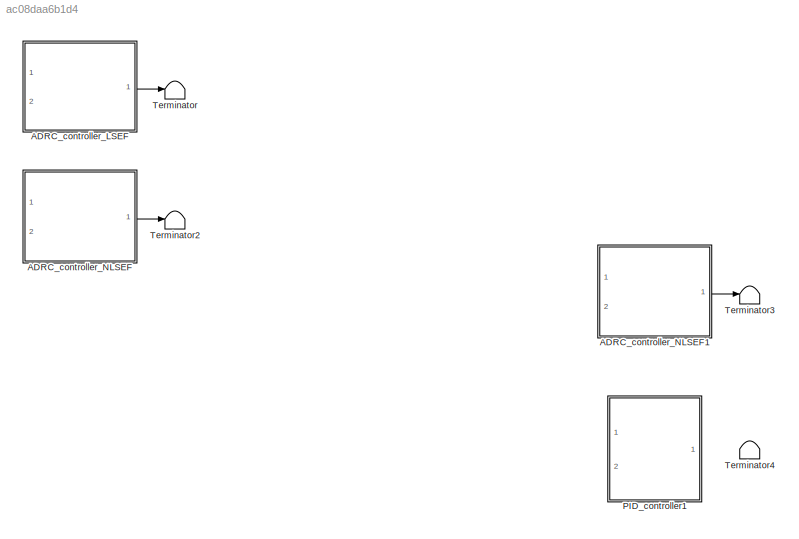
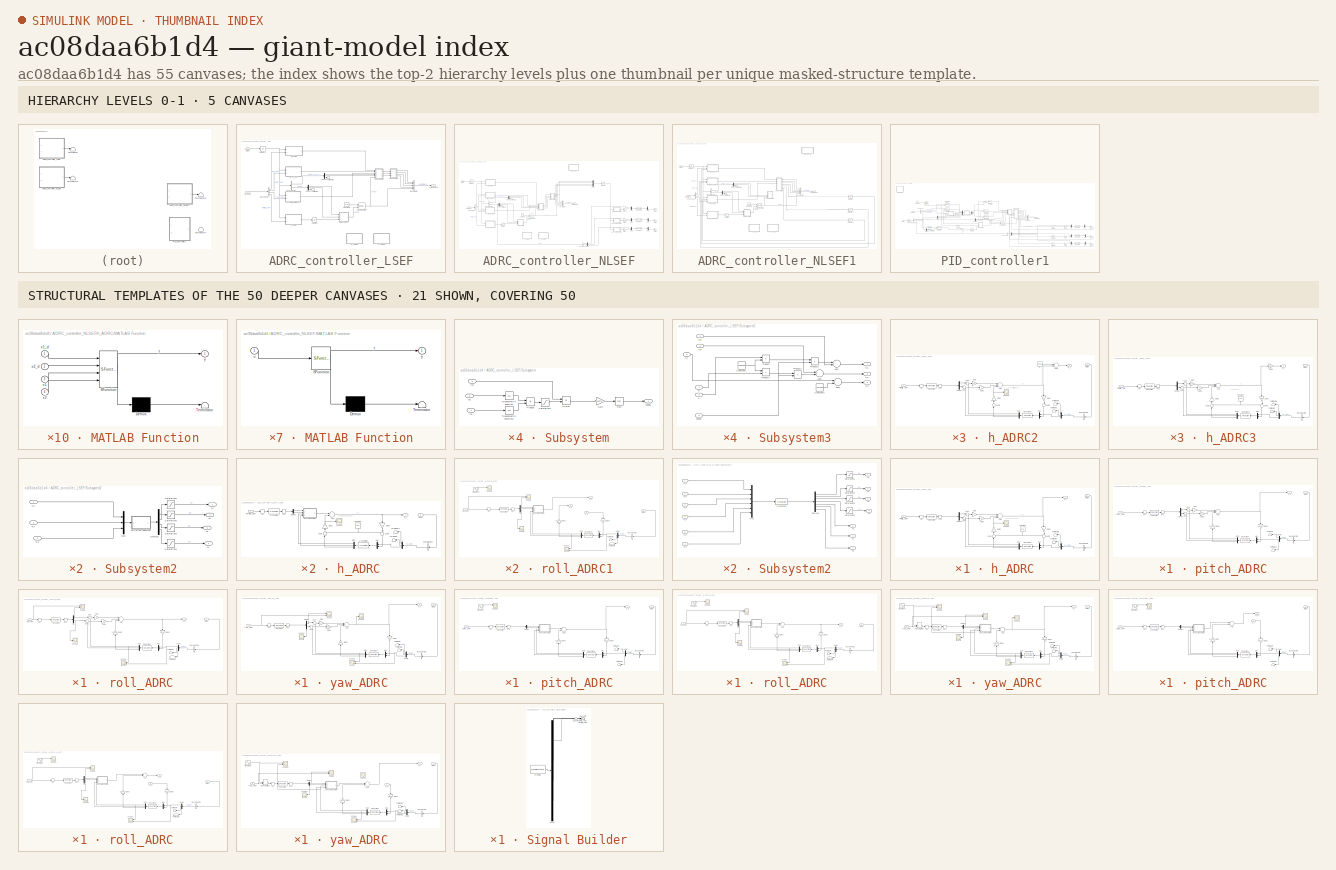
[diagram: thumbnail index - top-2 hierarchy levels (5 canvases) + 21 structural-template representatives of the remaining 50 canvases]
MODEL slx_ac08daa6b1d4
KIND model
CONFIG AbsTol = auto
CONFIG EnableMultiTasking = off
CONFIG FixedStep = auto
CONFIG MaxStep = auto
CONFIG MinStep = auto
CONFIG RelTol = 1e-3
CONFIG SampleTimeConstraint = Unconstrained
CONFIG Solver = VariableStepAuto
CONFIG SolverName = VariableStepAuto
CONFIG StartTime = 0.0
CONFIG StopTime = 10.0
BLOCK [SubSystem] ADRC_controller_LSEF
  Ports = [2, 1]
  RequestExecContextInheritance = off
BLOCK [Outport] ADRC_controller_LSEF/ActuatorsBus
  IconDisplay = Port number
  OutDataTypeStr = Bus: ActuatorsBus
BLOCK [BusCreator] ADRC_controller_LSEF/Bus Creator
  DisplayOption = bar
  InheritFromInputs = on
  Inputs = 5
  OutDataTypeStr = Bus: ActuatorsBus
  Ports = [5, 1]
BLOCK [BusSelector] ADRC_controller_LSEF/Bus Selector
  OutputAsBus = off
  OutputSignals = roll_cmd,pitch_cmd,yaw_cmd,throttle_cmd
  Ports = [1, 4]
BLOCK [BusSelector] ADRC_controller_LSEF/Bus Selector1
  OutputAsBus = off
  OutputSignals = Omega_body,Euler
  Ports = [1, 2]
BLOCK [Inport] ADRC_controller_LSEF/Command
  IconDisplay = Port number
BLOCK [Constant] ADRC_controller_LSEF/Constant1
  Value = 1225
BLOCK [Demux] ADRC_controller_LSEF/Demux
  DisplayOption = bar
  Outputs = 3
  Ports = [1, 3]
BLOCK [Demux] ADRC_controller_LSEF/Demux1
  DisplayOption = bar
  Outputs = 3
  Ports = [1, 3]
BLOCK [Reference] ADRC_controller_LSEF/N-Sample Switch  REF=dspswit3/N-Sample
Switch
  Ports = [2, 1]
  SourceBlock = dspswit3/N-Sample\nSwitch
  SourceProductBaseCode = DS
  SourceProductName = DSP System Toolbox
  SourceType = N-Sample Switch
BLOCK [Saturate] ADRC_controller_LSEF/Saturation
  InputPortMap = u0
  LowerLimit = -9.788*2
  Ports = [1, 1]
  UpperLimit = 0
BLOCK [Inport] ADRC_controller_LSEF/States
  IconDisplay = Port number
  OutDataTypeStr = Bus: StatesBus
  Port = 2
BLOCK [SubSystem] ADRC_controller_LSEF/Subsystem
  Ports = [3, 1]
  RequestExecContextInheritance = off
BLOCK [Product] ADRC_controller_LSEF/Subsystem/Divide
  InputSameDT = off
  Inputs = */
  OutDataTypeStr = Inherit: Inherit via internal rule
  Ports = [2, 1]
  RndMeth = Floor
  SaturateOnIntegerOverflow = off
BLOCK [Gain] ADRC_controller_LSEF/Subsystem/Gain
  Gain = -1225^2/9.788
  OutDataTypeStr = Inherit: Inherit via internal rule
  ParamDataTypeStr = Inherit: Inherit via internal rule
  SaturateOnIntegerOverflow = off
BLOCK [Inport] ADRC_controller_LSEF/Subsystem/In1
  IconDisplay = Port number
BLOCK [Inport] ADRC_controller_LSEF/Subsystem/In2
  IconDisplay = Port number
  Port = 2
BLOCK [Inport] ADRC_controller_LSEF/Subsystem/In3
  IconDisplay = Port number
  Port = 3
BLOCK [Product] ADRC_controller_LSEF/Subsystem/Product
  InputSameDT = off
  OutDataTypeStr = Inherit: Inherit via internal rule
  Ports = [2, 1]
  RndMeth = Floor
  SaturateOnIntegerOverflow = off
BLOCK [Saturate] ADRC_controller_LSEF/Subsystem/Saturation1
  InputPortMap = u0
  LowerLimit = 0.5
  Ports = [1, 1]
  UpperLimit = 1
BLOCK [Sqrt] ADRC_controller_LSEF/Subsystem/Sqrt
BLOCK [Trigonometry] ADRC_controller_LSEF/Subsystem/Trigonometric Function
  Operator = cos
  Ports = [1, 1]
BLOCK [Trigonometry] ADRC_controller_LSEF/Subsystem/Trigonometric Function1
  Operator = cos
  Ports = [1, 1]
BLOCK [Outport] ADRC_controller_LSEF/Subsystem/speed
  IconDisplay = Port number
BLOCK [SubSystem] ADRC_controller_LSEF/Subsystem2
  Ports = [3, 4]
  RequestExecContextInheritance = off
BLOCK [Demux] ADRC_controller_LSEF/Subsystem2/Demux3
  DisplayOption = bar
  Ports = [1, 4]
BLOCK [SubSystem] ADRC_controller_LSEF/Subsystem2/MATLAB Function
  ErrorFcn = Stateflow.Translate.translate
  PermitHierarchicalResolution = ExplicitOnly
  Ports = [1, 1]
  RequestExecContextInheritance = off
  SFBlockType = MATLAB Function
  TreatAsAtomicUnit = on
BLOCK [Demux] ADRC_controller_LSEF/Subsystem2/MATLAB Function/ Demux 
  Outputs = 1
  Ports = [1, 1]
BLOCK [S-Function] ADRC_controller_LSEF/Subsystem2/MATLAB Function/ SFunction 
  EnableBusSupport = on
  FunctionName = sf_sfun
  PortCounts = [1 2]
  Ports = [1, 2]
  SFcnIsStateOwnerBlock = off
  SFunctionDeploymentMode = off
  Tag = Stateflow S-Function ADRClibriry 4
BLOCK [Terminator] ADRC_controller_LSEF/Subsystem2/MATLAB Function/ Terminator 
BLOCK [Inport] ADRC_controller_LSEF/Subsystem2/MATLAB Function/u
  IconDisplay = Port number
BLOCK [Outport] ADRC_controller_LSEF/Subsystem2/MATLAB Function/y
  IconDisplay = Port number
BLOCK [Mux] ADRC_controller_LSEF/Subsystem2/Mux
  DisplayOption = bar
  Inputs = 3
  Ports = [3, 1]
BLOCK [Saturate] ADRC_controller_LSEF/Subsystem2/Saturation1
  InputPortMap = u0
  LowerLimit = -0.3491
  Ports = [1, 1]
  UpperLimit = 0.3491
BLOCK [Saturate] ADRC_controller_LSEF/Subsystem2/Saturation2
  InputPortMap = u0
  LowerLimit = -0.3491
  Ports = [1, 1]
  UpperLimit = 0.3491
BLOCK [Saturate] ADRC_controller_LSEF/Subsystem2/Saturation3
  InputPortMap = u0
  LowerLimit = -0.3491
  Ports = [1, 1]
  UpperLimit = 0.3491
BLOCK [Saturate] ADRC_controller_LSEF/Subsystem2/Saturation4
  InputPortMap = u0
  LowerLimit = -0.3491
  Ports = [1, 1]
  UpperLimit = 0.3491
BLOCK [Outport] ADRC_controller_LSEF/Subsystem2/c1
  IconDisplay = Port number
BLOCK [Outport] ADRC_controller_LSEF/Subsystem2/c2
  IconDisplay = Port number
  Port = 2
BLOCK [Outport] ADRC_controller_LSEF/Subsystem2/c3
  IconDisplay = Port number
  Port = 3
BLOCK [Outport] ADRC_controller_LSEF/Subsystem2/c4
  IconDisplay = Port number
  Port = 4
BLOCK [Inport] ADRC_controller_LSEF/Subsystem2/u_1
  IconDisplay = Port number
BLOCK [Inport] ADRC_controller_LSEF/Subsystem2/u_2
  IconDisplay = Port number
  Port = 2
BLOCK [Inport] ADRC_controller_LSEF/Subsystem2/u_3
  IconDisplay = Port number
  Port = 3
BLOCK [SubSystem] ADRC_controller_LSEF/Subsystem3
  Ports = [6, 3]
  RequestExecContextInheritance = off
BLOCK [Sum] ADRC_controller_LSEF/Subsystem3/Add1
  InputSameDT = off
  OutDataTypeStr = Inherit: Inherit via internal rule
  Ports = [2, 1]
  SaturateOnIntegerOverflow = off
BLOCK [Sum] ADRC_controller_LSEF/Subsystem3/Add2
  InputSameDT = off
  Inputs = +-
  OutDataTypeStr = Inherit: Inherit via internal rule
  Ports = [2, 1]
  SaturateOnIntegerOverflow = off
BLOCK [Sum] ADRC_controller_LSEF/Subsystem3/Add3
  InputSameDT = off
  Inputs = +-
  OutDataTypeStr = Inherit: Inherit via internal rule
  Ports = [2, 1]
  SaturateOnIntegerOverflow = off
BLOCK [Constant] ADRC_controller_LSEF/Subsystem3/Constant1
  Value = 0.000029
BLOCK [Constant] ADRC_controller_LSEF/Subsystem3/Constant2
  Value = 0.04238
BLOCK [Product] ADRC_controller_LSEF/Subsystem3/Product
  InputSameDT = off
  OutDataTypeStr = Inherit: Inherit via internal rule
  Ports = [2, 1]
  RndMeth = Floor
  SaturateOnIntegerOverflow = off
BLOCK [Product] ADRC_controller_LSEF/Subsystem3/Product1
  InputSameDT = off
  OutDataTypeStr = Inherit: Inherit via internal rule
  Ports = [2, 1]
  RndMeth = Floor
  SaturateOnIntegerOverflow = off
BLOCK [Product] ADRC_controller_LSEF/Subsystem3/Product2
  InputSameDT = off
  OutDataTypeStr = Inherit: Inherit via internal rule
  Ports = [2, 1]
  RndMeth = Floor
  SaturateOnIntegerOverflow = off
BLOCK [Product] ADRC_controller_LSEF/Subsystem3/Product3
  InputSameDT = off
  OutDataTypeStr = Inherit: Inherit via internal rule
  Ports = [2, 1]
  RndMeth = Floor
  SaturateOnIntegerOverflow = off
BLOCK [Inport] ADRC_controller_LSEF/Subsystem3/p
  IconDisplay = Port number
  Port = 4
BLOCK [Inport] ADRC_controller_LSEF/Subsystem3/q
  IconDisplay = Port number
  Port = 5
BLOCK [Inport] ADRC_controller_LSEF/Subsystem3/speed
  IconDisplay = Port number
  Port = 6
BLOCK [Outport] ADRC_controller_LSEF/Subsystem3/u_1
  IconDisplay = Port number
BLOCK [Outport] ADRC_controller_LSEF/Subsystem3/u_2
  IconDisplay = Port number
  Port = 2
BLOCK [Outport] ADRC_controller_LSEF/Subsystem3/u_3
  IconDisplay = Port number
  Port = 3
BLOCK [Inport] ADRC_controller_LSEF/Subsystem3/u_p
  IconDisplay = Port number
BLOCK [Inport] ADRC_controller_LSEF/Subsystem3/u_q
  IconDisplay = Port number
  Port = 2
BLOCK [Inport] ADRC_controller_LSEF/Subsystem3/u_r
  IconDisplay = Port number
  Port = 3
BLOCK [Terminator] ADRC_controller_LSEF/Terminator
BLOCK [Terminator] ADRC_controller_LSEF/Terminator1
BLOCK [UnitDelay] ADRC_controller_LSEF/Unit Delay2
  InputProcessing = Elements as channels (sample based)
  SampleTime = -1
BLOCK [SubSystem] ADRC_controller_LSEF/h_ADRC
  Ports = [2, 1]
  RequestExecContextInheritance = off
BLOCK [Inport] ADRC_controller_LSEF/h_ADRC/<throttle_cmd>
  IconDisplay = Port number
  Port = 2
BLOCK [Sum] ADRC_controller_LSEF/h_ADRC/Add
  InputSameDT = off
  Inputs = ++-
  OutDataTypeStr = Inherit: Inherit via internal rule
  Ports = [3, 1]
  SaturateOnIntegerOverflow = off
BLOCK [BusSelector] ADRC_controller_LSEF/h_ADRC/Bus Selector1
  OutputAsBus = off
  OutputSignals = X_ned
  Ports = [1, 1]
BLOCK [Constant] ADRC_controller_LSEF/h_ADRC/Constant
  Value = 9.78
BLOCK [Demux] ADRC_controller_LSEF/h_ADRC/Demux
  DisplayOption = bar
  Outputs = 2
  Ports = [1, 2]
BLOCK [Demux] ADRC_controller_LSEF/h_ADRC/ESO
  DisplayOption = bar
  Outputs = 3
  Ports = [1, 3]
BLOCK [Gain] ADRC_controller_LSEF/h_ADRC/Gain
  Gain = 3
  OutDataTypeStr = Inherit: Inherit via internal rule
  ParamDataTypeStr = Inherit: Inherit via internal rule
  SaturateOnIntegerOverflow = off
BLOCK [Gain] ADRC_controller_LSEF/h_ADRC/Gain1
  OutDataTypeStr = Inherit: Inherit via internal rule
  ParamDataTypeStr = Inherit: Inherit via internal rule
  SaturateOnIntegerOverflow = off
BLOCK [Gain] ADRC_controller_LSEF/h_ADRC/Gain2
  OutDataTypeStr = Inherit: Inherit via internal rule
  ParamDataTypeStr = Inherit: Inherit via internal rule
  SaturateOnIntegerOverflow = off
BLOCK [Gain] ADRC_controller_LSEF/h_ADRC/Gain3
  OutDataTypeStr = Inherit: Inherit via internal rule
  ParamDataTypeStr = Inherit: Inherit via internal rule
  SaturateOnIntegerOverflow = off
BLOCK [Mux] ADRC_controller_LSEF/h_ADRC/Mux
  DisplayOption = bar
  Inputs = 2
  Ports = [2, 1]
BLOCK [RateTransition] ADRC_controller_LSEF/h_ADRC/RT
  OutPortSampleTime = 0.05
BLOCK [RateTransition] ADRC_controller_LSEF/h_ADRC/RT1
  OutPortSampleTime = 0.01
BLOCK [S-Function] ADRC_controller_LSEF/h_ADRC/S-Function
  EnableBusSupport = off
  FunctionName = s_TD
  Ports = [1, 1]
  SFcnIsStateOwnerBlock = off
  SFunctionDeploymentMode = off
BLOCK [S-Function] ADRC_controller_LSEF/h_ADRC/S-Function4
  EnableBusSupport = off
  FunctionName = s_ESO
  Ports = [1, 1]
  SFcnIsStateOwnerBlock = off
  SFunctionDeploymentMode = off
BLOCK [Scope] ADRC_controller_LSEF/h_ADRC/Scope3
  Floating = off
  NumInputPorts = 1
  Ports = [1]
  ScopeSpecificationString = Simulink.scopes.TimeScopeBlockCfg('CurrentConfiguration', extmgr.ConfigurationSet(extmgr.Configuration('Core','General UI',true),extmgr.Configuration('Core','Source UI',true),extmgr.Configuration('Sources','WiredSimulink',true,'DataLoggingVariableName','ScopeData3'),extmgr.Configuration('Visuals','Time Domain',true,'SerializedDisplays',{struct('MinYLimReal','8.59919','MaxYLimReal','9.9112','YLabel...<+1383ch>  <repeated x3 — deduplicated; at blocks: Scope3>
BLOCK [Inport] ADRC_controller_LSEF/h_ADRC/States
  IconDisplay = Port number
  OutDataTypeStr = Bus: StatesBus
BLOCK [Sum] ADRC_controller_LSEF/h_ADRC/Sum
  IconShape = round
  InputSameDT = off
  Inputs = |+-
  OutDataTypeStr = Inherit: Inherit via internal rule
  Ports = [2, 1]
  SaturateOnIntegerOverflow = off
BLOCK [Sum] ADRC_controller_LSEF/h_ADRC/Sum1
  IconShape = round
  InputSameDT = off
  Inputs = |+-
  OutDataTypeStr = Inherit: Inherit via internal rule
  Ports = [2, 1]
  SaturateOnIntegerOverflow = off
BLOCK [Sum] ADRC_controller_LSEF/h_ADRC/Sum2
  IconShape = round
  InputSameDT = off
  Inputs = ++|
  OutDataTypeStr = Inherit: Inherit via internal rule
  Ports = [2, 1]
  SaturateOnIntegerOverflow = off
BLOCK [Sum] ADRC_controller_LSEF/h_ADRC/Sum3
  IconShape = round
  InputSameDT = off
  Inputs = |++
  OutDataTypeStr = Inherit: Inherit via internal rule
  Ports = [2, 1]
  SaturateOnIntegerOverflow = off
BLOCK [Terminator] ADRC_controller_LSEF/h_ADRC/Terminator
BLOCK [Terminator] ADRC_controller_LSEF/h_ADRC/Terminator1
BLOCK [Outport] ADRC_controller_LSEF/h_ADRC/a_t
  IconDisplay = Port number
BLOCK [Demux] ADRC_controller_LSEF/h_ADRC/x
  DisplayOption = bar
  Outputs = 3
  Ports = [1, 3]
BLOCK [SubSystem] ADRC_controller_LSEF/h_ADRC2
  Ports = [2, 1]
  RequestExecContextInheritance = off
BLOCK [Inport] ADRC_controller_LSEF/h_ADRC2/<throttle_cmd>
  IconDisplay = Port number
  Port = 2
BLOCK [Sum] ADRC_controller_LSEF/h_ADRC2/Add
  InputSameDT = off
  Inputs = ++-
  OutDataTypeStr = Inherit: Inherit via internal rule
  Ports = [3, 1]
  SaturateOnIntegerOverflow = off
BLOCK [Sum] ADRC_controller_LSEF/h_ADRC2/Add2
  InputSameDT = off
  OutDataTypeStr = Inherit: Inherit via internal rule
  Ports = [2, 1]
  SaturateOnIntegerOverflow = off
BLOCK [BusSelector] ADRC_controller_LSEF/h_ADRC2/Bus Selector1
  OutputAsBus = off
  OutputSignals = X_ned
  Ports = [1, 1]
BLOCK [Demux] ADRC_controller_LSEF/h_ADRC2/Demux
  DisplayOption = bar
  Outputs = 2
  Ports = [1, 2]
BLOCK [Demux] ADRC_controller_LSEF/h_ADRC2/ESO
  DisplayOption = bar
  Outputs = 3
  Ports = [1, 3]
BLOCK [Gain] ADRC_controller_LSEF/h_ADRC2/Gain
  Gain = 12
  OutDataTypeStr = Inherit: Inherit via internal rule
  ParamDataTypeStr = Inherit: Inherit via internal rule
  SaturateOnIntegerOverflow = off
BLOCK [Gain] ADRC_controller_LSEF/h_ADRC2/Gain1
  Gain = 3
  OutDataTypeStr = Inherit: Inherit via internal rule
  ParamDataTypeStr = Inherit: Inherit via internal rule
  SaturateOnIntegerOverflow = off
BLOCK [Gain] ADRC_controller_LSEF/h_ADRC2/Gain2
  OutDataTypeStr = Inherit: Inherit via internal rule
  ParamDataTypeStr = Inherit: Inherit via internal rule
  SaturateOnIntegerOverflow = off
BLOCK [Gain] ADRC_controller_LSEF/h_ADRC2/Gain3
  OutDataTypeStr = Inherit: Inherit via internal rule
  ParamDataTypeStr = Inherit: Inherit via internal rule
  SaturateOnIntegerOverflow = off
BLOCK [Mux] ADRC_controller_LSEF/h_ADRC2/Mux
  DisplayOption = bar
  Inputs = 2
  Ports = [2, 1]
BLOCK [RateTransition] ADRC_controller_LSEF/h_ADRC2/RT
  OutPortSampleTime = 0.05
BLOCK [RateTransition] ADRC_controller_LSEF/h_ADRC2/RT1
  OutPortSampleTime = 0.01
BLOCK [S-Function] ADRC_controller_LSEF/h_ADRC2/S-Function
  EnableBusSupport = off
  FunctionName = s_TD
  Ports = [1, 1]
  SFcnIsStateOwnerBlock = off
  SFunctionDeploymentMode = off
BLOCK [S-Function] ADRC_controller_LSEF/h_ADRC2/S-Function4
  EnableBusSupport = off
  FunctionName = s_HESO
  Ports = [1, 1]
  SFcnIsStateOwnerBlock = off
  SFunctionDeploymentMode = off
BLOCK [Scope] ADRC_controller_LSEF/h_ADRC2/Scope3
  Floating = off
  NumInputPorts = 1
  Ports = [1]
  ScopeSpecificationString = Simulink.scopes.TimeScopeBlockCfg('CurrentConfiguration', extmgr.ConfigurationSet(extmgr.Configuration('Core','General UI',true),extmgr.Configuration('Core','Source UI',true),extmgr.Configuration('Sources','WiredSimulink',true,'DataLoggingVariableName','ScopeData3'),extmgr.Configuration('Visuals','Time Domain',true,'SerializedDisplays',{struct('MinYLimReal','-1.00000','MaxYLimReal','1.00000','YLab...<+1389ch>  <repeated x3 — deduplicated; at blocks: Scope3>
BLOCK [Inport] ADRC_controller_LSEF/h_ADRC2/States
  IconDisplay = Port number
  OutDataTypeStr = Bus: StatesBus
BLOCK [Sum] ADRC_controller_LSEF/h_ADRC2/Sum
  IconShape = round
  InputSameDT = off
  Inputs = |+-
  OutDataTypeStr = Inherit: Inherit via internal rule
  Ports = [2, 1]
  SaturateOnIntegerOverflow = off
BLOCK [Sum] ADRC_controller_LSEF/h_ADRC2/Sum1
  IconShape = round
  InputSameDT = off
  Inputs = |+-
  OutDataTypeStr = Inherit: Inherit via internal rule
  Ports = [2, 1]
  SaturateOnIntegerOverflow = off
BLOCK [Sum] ADRC_controller_LSEF/h_ADRC2/Sum2
  IconShape = round
  InputSameDT = off
  Inputs = ++|
  OutDataTypeStr = Inherit: Inherit via internal rule
  Ports = [2, 1]
  SaturateOnIntegerOverflow = off
BLOCK [Sum] ADRC_controller_LSEF/h_ADRC2/Sum3
  IconShape = round
  InputSameDT = off
  Inputs = |++
  OutDataTypeStr = Inherit: Inherit via internal rule
  Ports = [2, 1]
  SaturateOnIntegerOverflow = off
BLOCK [Terminator] ADRC_controller_LSEF/h_ADRC2/Terminator
BLOCK [Terminator] ADRC_controller_LSEF/h_ADRC2/Terminator1
BLOCK [Outport] ADRC_controller_LSEF/h_ADRC2/a_t
  IconDisplay = Port number
BLOCK [Constant] ADRC_controller_LSEF/h_ADRC2/g
  Value = -9.788
BLOCK [Demux] ADRC_controller_LSEF/h_ADRC2/x
  DisplayOption = bar
  Outputs = 3
  Ports = [1, 3]
BLOCK [SubSystem] ADRC_controller_LSEF/h_ADRC3
  Ports = [2, 1]
  RequestExecContextInheritance = off
BLOCK [Inport] ADRC_controller_LSEF/h_ADRC3/<throttle_cmd>
  IconDisplay = Port number
  Port = 2
BLOCK [Sum] ADRC_controller_LSEF/h_ADRC3/Add
  InputSameDT = off
  Inputs = ++-
  OutDataTypeStr = Inherit: Inherit via internal rule
  Ports = [3, 1]
  SaturateOnIntegerOverflow = off
BLOCK [BusSelector] ADRC_controller_LSEF/h_ADRC3/Bus Selector1
  OutputAsBus = off
  OutputSignals = X_ned
  Ports = [1, 1]
BLOCK [Constant] ADRC_controller_LSEF/h_ADRC3/Constant
  Value = 9.78
BLOCK [Demux] ADRC_controller_LSEF/h_ADRC3/Demux
  DisplayOption = bar
  Outputs = 2
  Ports = [1, 2]
BLOCK [Demux] ADRC_controller_LSEF/h_ADRC3/ESO
  DisplayOption = bar
  Outputs = 3
  Ports = [1, 3]
BLOCK [Gain] ADRC_controller_LSEF/h_ADRC3/Gain
  Gain = 12
  OutDataTypeStr = Inherit: Inherit via internal rule
  ParamDataTypeStr = Inherit: Inherit via internal rule
  SaturateOnIntegerOverflow = off
BLOCK [Gain] ADRC_controller_LSEF/h_ADRC3/Gain1
  Gain = 3
  OutDataTypeStr = Inherit: Inherit via internal rule
  ParamDataTypeStr = Inherit: Inherit via internal rule
  SaturateOnIntegerOverflow = off
BLOCK [Gain] ADRC_controller_LSEF/h_ADRC3/Gain2
  Gain = 1.53
  OutDataTypeStr = Inherit: Inherit via internal rule
  ParamDataTypeStr = Inherit: Inherit via internal rule
  SaturateOnIntegerOverflow = off
BLOCK [Gain] ADRC_controller_LSEF/h_ADRC3/Gain3
  Gain = 1/1.53
  OutDataTypeStr = Inherit: Inherit via internal rule
  ParamDataTypeStr = Inherit: Inherit via internal rule
  SaturateOnIntegerOverflow = off
BLOCK [Gain] ADRC_controller_LSEF/h_ADRC3/Gain4
  Gain = 1/1.53
  OutDataTypeStr = Inherit: Inherit via internal rule
  ParamDataTypeStr = Inherit: Inherit via internal rule
  SaturateOnIntegerOverflow = off
BLOCK [Mux] ADRC_controller_LSEF/h_ADRC3/Mux
  DisplayOption = bar
  Inputs = 2
  Ports = [2, 1]
BLOCK [RateTransition] ADRC_controller_LSEF/h_ADRC3/RT
  OutPortSampleTime = 0.05
BLOCK [RateTransition] ADRC_controller_LSEF/h_ADRC3/RT1
  OutPortSampleTime = 0.01
BLOCK [S-Function] ADRC_controller_LSEF/h_ADRC3/S-Function
  EnableBusSupport = off
  FunctionName = s_TD
  Ports = [1, 1]
  SFcnIsStateOwnerBlock = off
  SFunctionDeploymentMode = off
BLOCK [S-Function] ADRC_controller_LSEF/h_ADRC3/S-Function4
  EnableBusSupport = off
  FunctionName = s_HESO
  Ports = [1, 1]
  SFcnIsStateOwnerBlock = off
  SFunctionDeploymentMode = off
BLOCK [Inport] ADRC_controller_LSEF/h_ADRC3/States
  IconDisplay = Port number
  OutDataTypeStr = Bus: StatesBus
BLOCK [Sum] ADRC_controller_LSEF/h_ADRC3/Sum
  IconShape = round
  InputSameDT = off
  Inputs = |+-
  OutDataTypeStr = Inherit: Inherit via internal rule
  Ports = [2, 1]
  SaturateOnIntegerOverflow = off
BLOCK [Sum] ADRC_controller_LSEF/h_ADRC3/Sum1
  IconShape = round
  InputSameDT = off
  Inputs = |+-
  OutDataTypeStr = Inherit: Inherit via internal rule
  Ports = [2, 1]
  SaturateOnIntegerOverflow = off
BLOCK [Sum] ADRC_controller_LSEF/h_ADRC3/Sum2
  IconShape = round
  InputSameDT = off
  Inputs = ++|
  OutDataTypeStr = Inherit: Inherit via internal rule
  Ports = [2, 1]
  SaturateOnIntegerOverflow = off
BLOCK [Sum] ADRC_controller_LSEF/h_ADRC3/Sum3
  IconShape = round
  InputSameDT = off
  Inputs = |++
  OutDataTypeStr = Inherit: Inherit via internal rule
  Ports = [2, 1]
  SaturateOnIntegerOverflow = off
BLOCK [Terminator] ADRC_controller_LSEF/h_ADRC3/Terminator
BLOCK [Terminator] ADRC_controller_LSEF/h_ADRC3/Terminator1
BLOCK [Outport] ADRC_controller_LSEF/h_ADRC3/a_t
  IconDisplay = Port number
BLOCK [Demux] ADRC_controller_LSEF/h_ADRC3/x
  DisplayOption = bar
  Outputs = 3
  Ports = [1, 3]
BLOCK [SubSystem] ADRC_controller_LSEF/pitch_ADRC
  Ports = [2, 1]
  RequestExecContextInheritance = off
BLOCK [Inport] ADRC_controller_LSEF/pitch_ADRC/<pitch_cmd>
  IconDisplay = Port number
  Port = 2
BLOCK [Sum] ADRC_controller_LSEF/pitch_ADRC/Add1
  InputSameDT = off
  Inputs = ++-
  OutDataTypeStr = Inherit: Inherit via internal rule
  Ports = [3, 1]
  SaturateOnIntegerOverflow = off
BLOCK [BusSelector] ADRC_controller_LSEF/pitch_ADRC/Bus Selector1
  OutputAsBus = off
  OutputSignals = Euler
  Ports = [1, 1]
BLOCK [Demux] ADRC_controller_LSEF/pitch_ADRC/Demux
  DisplayOption = bar
  Outputs = 2
  Ports = [1, 2]
BLOCK [Demux] ADRC_controller_LSEF/pitch_ADRC/ESO
  DisplayOption = bar
  Outputs = 3
  Ports = [1, 3]
BLOCK [Gain] ADRC_controller_LSEF/pitch_ADRC/Gain
  Gain = 3
  OutDataTypeStr = Inherit: Inherit via internal rule
  ParamDataTypeStr = Inherit: Inherit via internal rule
  SaturateOnIntegerOverflow = off
BLOCK [Gain] ADRC_controller_LSEF/pitch_ADRC/Gain1
  OutDataTypeStr = Inherit: Inherit via internal rule
  ParamDataTypeStr = Inherit: Inherit via internal rule
  SaturateOnIntegerOverflow = off
BLOCK [Gain] ADRC_controller_LSEF/pitch_ADRC/Gain4
  Gain = 0.025504
  OutDataTypeStr = Inherit: Inherit via internal rule
  ParamDataTypeStr = Inherit: Inherit via internal rule
  SaturateOnIntegerOverflow = off
BLOCK [Gain] ADRC_controller_LSEF/pitch_ADRC/Gain5
  Gain = 39.2418
  OutDataTypeStr = Inherit: Inherit via internal rule
  ParamDataTypeStr = Inherit: Inherit via internal rule
  SaturateOnIntegerOverflow = off
BLOCK [Mux] ADRC_controller_LSEF/pitch_ADRC/Mux
  DisplayOption = bar
  Inputs = 2
  Ports = [2, 1]
BLOCK [RateTransition] ADRC_controller_LSEF/pitch_ADRC/RT
  OutPortSampleTime = 0.05
BLOCK [RateTransition] ADRC_controller_LSEF/pitch_ADRC/RT1
  OutPortSampleTime = 0.01
BLOCK [S-Function] ADRC_controller_LSEF/pitch_ADRC/S-Function
  EnableBusSupport = off
  FunctionName = s_TD
  Ports = [1, 1]
  SFcnIsStateOwnerBlock = off
  SFunctionDeploymentMode = off
BLOCK [S-Function] ADRC_controller_LSEF/pitch_ADRC/S-Function4
  EnableBusSupport = off
  FunctionName = s_ESO
  Ports = [1, 1]
  SFcnIsStateOwnerBlock = off
  SFunctionDeploymentMode = off
BLOCK [Inport] ADRC_controller_LSEF/pitch_ADRC/States
  IconDisplay = Port number
  OutDataTypeStr = Bus: StatesBus
BLOCK [Sum] ADRC_controller_LSEF/pitch_ADRC/Sum
  IconShape = round
  InputSameDT = off
  Inputs = |+-
  OutDataTypeStr = Inherit: Inherit via internal rule
  Ports = [2, 1]
  SaturateOnIntegerOverflow = off
BLOCK [Sum] ADRC_controller_LSEF/pitch_ADRC/Sum1
  IconShape = round
  InputSameDT = off
  Inputs = |+-
  OutDataTypeStr = Inherit: Inherit via internal rule
  Ports = [2, 1]
  SaturateOnIntegerOverflow = off
BLOCK [Terminator] ADRC_controller_LSEF/pitch_ADRC/Terminator
BLOCK [Terminator] ADRC_controller_LSEF/pitch_ADRC/Terminator1
BLOCK [Demux] ADRC_controller_LSEF/pitch_ADRC/angle
  DisplayOption = bar
  Outputs = 3
  Ports = [1, 3]
BLOCK [Outport] ADRC_controller_LSEF/pitch_ADRC/u_q
  IconDisplay = Port number
BLOCK [SubSystem] ADRC_controller_LSEF/roll_ADRC
  Ports = [2, 1]
  RequestExecContextInheritance = off
BLOCK [Inport] ADRC_controller_LSEF/roll_ADRC/<roll_cmd>
  IconDisplay = Port number
  Port = 2
BLOCK [Sum] ADRC_controller_LSEF/roll_ADRC/Add
  InputSameDT = off
  Inputs = ++-
  OutDataTypeStr = Inherit: Inherit via internal rule
  Ports = [3, 1]
  SaturateOnIntegerOverflow = off
BLOCK [BusSelector] ADRC_controller_LSEF/roll_ADRC/Bus Selector1
  OutputAsBus = off
  OutputSignals = Euler
  Ports = [1, 1]
BLOCK [Demux] ADRC_controller_LSEF/roll_ADRC/ESO
  DisplayOption = bar
  Outputs = 3
  Ports = [1, 3]
BLOCK [Gain] ADRC_controller_LSEF/roll_ADRC/Gain
  Gain = 3
  OutDataTypeStr = Inherit: Inherit via internal rule
  ParamDataTypeStr = Inherit: Inherit via internal rule
  SaturateOnIntegerOverflow = off
BLOCK [Gain] ADRC_controller_LSEF/roll_ADRC/Gain1
  OutDataTypeStr = Inherit: Inherit via internal rule
  ParamDataTypeStr = Inherit: Inherit via internal rule
  SaturateOnIntegerOverflow = off
BLOCK [Gain] ADRC_controller_LSEF/roll_ADRC/Gain2
  Gain = 0.025504
  OutDataTypeStr = Inherit: Inherit via internal rule
  ParamDataTypeStr = Inherit: Inherit via internal rule
  SaturateOnIntegerOverflow = off
BLOCK [Gain] ADRC_controller_LSEF/roll_ADRC/Gain3
  Gain = 39.2418
  OutDataTypeStr = Inherit: Inherit via internal rule
  ParamDataTypeStr = Inherit: Inherit via internal rule
  SaturateOnIntegerOverflow = off
BLOCK [Mux] ADRC_controller_LSEF/roll_ADRC/Mux
  DisplayOption = bar
  Inputs = 2
  Ports = [2, 1]
BLOCK [RateTransition] ADRC_controller_LSEF/roll_ADRC/RT
  OutPortSampleTime = 0.05
BLOCK [RateTransition] ADRC_controller_LSEF/roll_ADRC/RT1
  OutPortSampleTime = 0.01
BLOCK [S-Function] ADRC_controller_LSEF/roll_ADRC/S-Function
  EnableBusSupport = off
  FunctionName = s_TD
  Ports = [1, 1]
  SFcnIsStateOwnerBlock = off
  SFunctionDeploymentMode = off
BLOCK [S-Function] ADRC_controller_LSEF/roll_ADRC/S-Function4
  EnableBusSupport = off
  FunctionName = s_ESO
  Ports = [1, 1]
  SFcnIsStateOwnerBlock = off
  SFunctionDeploymentMode = off
BLOCK [Scope] ADRC_controller_LSEF/roll_ADRC/Scope
  Floating = off
  NumInputPorts = 2
  Ports = [2]
  ScopeSpecificationString = Simulink.scopes.TimeScopeBlockCfg('CurrentConfiguration', extmgr.ConfigurationSet(extmgr.Configuration('Core','General UI',true),extmgr.Configuration('Core','Source UI',true),extmgr.Configuration('Sources','WiredSimulink',true,'DataLoggingVariableName','ScopeData1'),extmgr.Configuration('Visuals','Time Domain',true,'SerializedDisplays',{struct('MinYLimReal','-0.37764','MaxYLimReal','0.37764','YLab...<+1376ch>
BLOCK [Scope] ADRC_controller_LSEF/roll_ADRC/Scope1
  Floating = off
  NumInputPorts = 1
  Ports = [1]
  ScopeSpecificationString = Simulink.scopes.TimeScopeBlockCfg('CurrentConfiguration', extmgr.ConfigurationSet(extmgr.Configuration('Core','General UI',true),extmgr.Configuration('Core','Source UI',true),extmgr.Configuration('Sources','WiredSimulink',true,'DataLoggingVariableName','ScopeData2'),extmgr.Configuration('Visuals','Time Domain',true,'SerializedDisplays',{struct('MinYLimReal','-1.88818','MaxYLimReal','1.88818','YLab...<+1363ch>
BLOCK [Scope] ADRC_controller_LSEF/roll_ADRC/Scope2
  Floating = off
  NumInputPorts = 2
  Ports = [2]
  ScopeSpecificationString = Simulink.scopes.TimeScopeBlockCfg('CurrentConfiguration', extmgr.ConfigurationSet(extmgr.Configuration('Core','General UI',true),extmgr.Configuration('Core','Source UI',true),extmgr.Configuration('Sources','WiredSimulink',true,'DataLoggingVariableName','ScopeData3'),extmgr.Configuration('Visuals','Time Domain',true,'SerializedDisplays',{struct('MinYLimReal','-0.39068','MaxYLimReal','0.38628','YLab...<+1399ch>
BLOCK [Inport] ADRC_controller_LSEF/roll_ADRC/States
  IconDisplay = Port number
  OutDataTypeStr = Bus: StatesBus
BLOCK [Sum] ADRC_controller_LSEF/roll_ADRC/Sum
  IconShape = round
  InputSameDT = off
  Inputs = |+-
  OutDataTypeStr = Inherit: Inherit via internal rule
  Ports = [2, 1]
  SaturateOnIntegerOverflow = off
BLOCK [Sum] ADRC_controller_LSEF/roll_ADRC/Sum1
  IconShape = round
  InputSameDT = off
  Inputs = |+-
  OutDataTypeStr = Inherit: Inherit via internal rule
  Ports = [2, 1]
  SaturateOnIntegerOverflow = off
BLOCK [Demux] ADRC_controller_LSEF/roll_ADRC/TD
  DisplayOption = bar
  Outputs = 2
  Ports = [1, 2]
BLOCK [Terminator] ADRC_controller_LSEF/roll_ADRC/Terminator
BLOCK [Terminator] ADRC_controller_LSEF/roll_ADRC/Terminator1
BLOCK [Demux] ADRC_controller_LSEF/roll_ADRC/angle
  DisplayOption = bar
  Outputs = 3
  Ports = [1, 3]
BLOCK [Outport] ADRC_controller_LSEF/roll_ADRC/u_p 
  IconDisplay = Port number
BLOCK [SubSystem] ADRC_controller_LSEF/yaw_ADRC
  Ports = [2, 1]
  RequestExecContextInheritance = off
BLOCK [Inport] ADRC_controller_LSEF/yaw_ADRC/<yaw_cmd>
  IconDisplay = Port number
  Port = 2
BLOCK [Sum] ADRC_controller_LSEF/yaw_ADRC/Add
  InputSameDT = off
  Inputs = ++-
  OutDataTypeStr = Inherit: Inherit via internal rule
  Ports = [3, 1]
  SaturateOnIntegerOverflow = off
BLOCK [BusSelector] ADRC_controller_LSEF/yaw_ADRC/Bus Selector1
  OutputAsBus = off
  OutputSignals = Euler
  Ports = [1, 1]
BLOCK [Demux] ADRC_controller_LSEF/yaw_ADRC/Demux
  DisplayOption = bar
  Outputs = 2
  Ports = [1, 2]
BLOCK [Demux] ADRC_controller_LSEF/yaw_ADRC/ESO
  DisplayOption = bar
  Outputs = 3
  Ports = [1, 3]
BLOCK [Gain] ADRC_controller_LSEF/yaw_ADRC/Gain
  Gain = 2
  OutDataTypeStr = Inherit: Inherit via internal rule
  ParamDataTypeStr = Inherit: Inherit via internal rule
  SaturateOnIntegerOverflow = off
BLOCK [Gain] ADRC_controller_LSEF/yaw_ADRC/Gain1
  Gain = 0.5
  OutDataTypeStr = Inherit: Inherit via internal rule
  ParamDataTypeStr = Inherit: Inherit via internal rule
  SaturateOnIntegerOverflow = off
BLOCK [Gain] ADRC_controller_LSEF/yaw_ADRC/Gain2
  Gain = 1/80
  OutDataTypeStr = Inherit: Inherit via internal rule
  ParamDataTypeStr = Inherit: Inherit via internal rule
  SaturateOnIntegerOverflow = off
BLOCK [Gain] ADRC_controller_LSEF/yaw_ADRC/Gain3
  Gain = 80
  OutDataTypeStr = Inherit: Inherit via internal rule
  ParamDataTypeStr = Inherit: Inherit via internal rule
  SaturateOnIntegerOverflow = off
BLOCK [Mux] ADRC_controller_LSEF/yaw_ADRC/Mux
  DisplayOption = bar
  Inputs = 2
  Ports = [2, 1]
BLOCK [RateTransition] ADRC_controller_LSEF/yaw_ADRC/RT
BLOCK [RateTransition] ADRC_controller_LSEF/yaw_ADRC/RT1
BLOCK [S-Function] ADRC_controller_LSEF/yaw_ADRC/S-Function
  EnableBusSupport = off
  FunctionName = s_yawTD
  Ports = [1, 1]
  SFcnIsStateOwnerBlock = off
  SFunctionDeploymentMode = off
BLOCK [S-Function] ADRC_controller_LSEF/yaw_ADRC/S-Function4
  EnableBusSupport = off
  FunctionName = s_ESO
  Ports = [1, 1]
  SFcnIsStateOwnerBlock = off
  SFunctionDeploymentMode = off
BLOCK [Scope] ADRC_controller_LSEF/yaw_ADRC/Scope
  Floating = off
  NumInputPorts = 2
  Ports = [2]
  ScopeSpecificationString = Simulink.scopes.TimeScopeBlockCfg('CurrentConfiguration', extmgr.ConfigurationSet(extmgr.Configuration('Core','General UI',true),extmgr.Configuration('Core','Source UI',true),extmgr.Configuration('Sources','WiredSimulink',true,'DataLoggingVariableName','ScopeData4'),extmgr.Configuration('Visuals','Time Domain',true,'SerializedDisplays',{struct('MinYLimReal','-1.97275','MaxYLimReal','1.97275','YLab...<+1456ch>
BLOCK [Scope] ADRC_controller_LSEF/yaw_ADRC/Scope1
  Floating = off
  NumInputPorts = 2
  Ports = [2]
  ScopeSpecificationString = Simulink.scopes.TimeScopeBlockCfg('CurrentConfiguration', extmgr.ConfigurationSet(extmgr.Configuration('Core','General UI',true),extmgr.Configuration('Core','Source UI',true),extmgr.Configuration('Sources','WiredSimulink',true,'DataLoggingVariableName','ScopeData5'),extmgr.Configuration('Visuals','Time Domain',true,'SerializedDisplays',{struct('MinYLimReal','-1.9625','MaxYLimReal','1.9625','YLabel...<+1448ch>
BLOCK [Scope] ADRC_controller_LSEF/yaw_ADRC/Scope2
  Floating = off
  NumInputPorts = 2
  Ports = [2]
  ScopeSpecificationString = Simulink.scopes.TimeScopeBlockCfg('CurrentConfiguration', extmgr.ConfigurationSet(extmgr.Configuration('Core','General UI',true),extmgr.Configuration('Core','Source UI',true),extmgr.Configuration('Sources','WiredSimulink',true,'DataLoggingVariableName','ScopeData6'),extmgr.Configuration('Visuals','Time Domain',true,'SerializedDisplays',{struct('MinYLimReal','-0.11502','MaxYLimReal','0.0891','YLabe...<+1464ch>
BLOCK [Scope] ADRC_controller_LSEF/yaw_ADRC/Scope3
  Floating = off
  NumInputPorts = 1
  Ports = [1]
  ScopeSpecificationString = Simulink.scopes.TimeScopeBlockCfg('CurrentConfiguration', extmgr.ConfigurationSet(extmgr.Configuration('Core','General UI',true),extmgr.Configuration('Core','Source UI',true),extmgr.Configuration('Sources','WiredSimulink',true,'DataLoggingVariableName','ScopeData7'),extmgr.Configuration('Visuals','Time Domain',true,'SerializedDisplays',{struct('MinYLimReal','-0.7526','MaxYLimReal','1.53016','YLabe...<+1385ch>
BLOCK [Inport] ADRC_controller_LSEF/yaw_ADRC/States
  IconDisplay = Port number
  OutDataTypeStr = Bus: StatesBus
BLOCK [Sum] ADRC_controller_LSEF/yaw_ADRC/Sum
  IconShape = round
  InputSameDT = off
  Inputs = |+-
  OutDataTypeStr = Inherit: Inherit via internal rule
  Ports = [2, 1]
  SaturateOnIntegerOverflow = off
BLOCK [Sum] ADRC_controller_LSEF/yaw_ADRC/Sum1
  IconShape = round
  InputSameDT = off
  Inputs = |+-
  OutDataTypeStr = Inherit: Inherit via internal rule
  Ports = [2, 1]
  SaturateOnIntegerOverflow = off
BLOCK [Terminator] ADRC_controller_LSEF/yaw_ADRC/Terminator
BLOCK [Terminator] ADRC_controller_LSEF/yaw_ADRC/Terminator1
BLOCK [Demux] ADRC_controller_LSEF/yaw_ADRC/angle
  DisplayOption = bar
  Outputs = 3
  Ports = [1, 3]
BLOCK [Outport] ADRC_controller_LSEF/yaw_ADRC/u_r
  IconDisplay = Port number
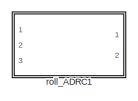
[diagram: ADRC_controller_NLSEF - part 1/4, top center region]
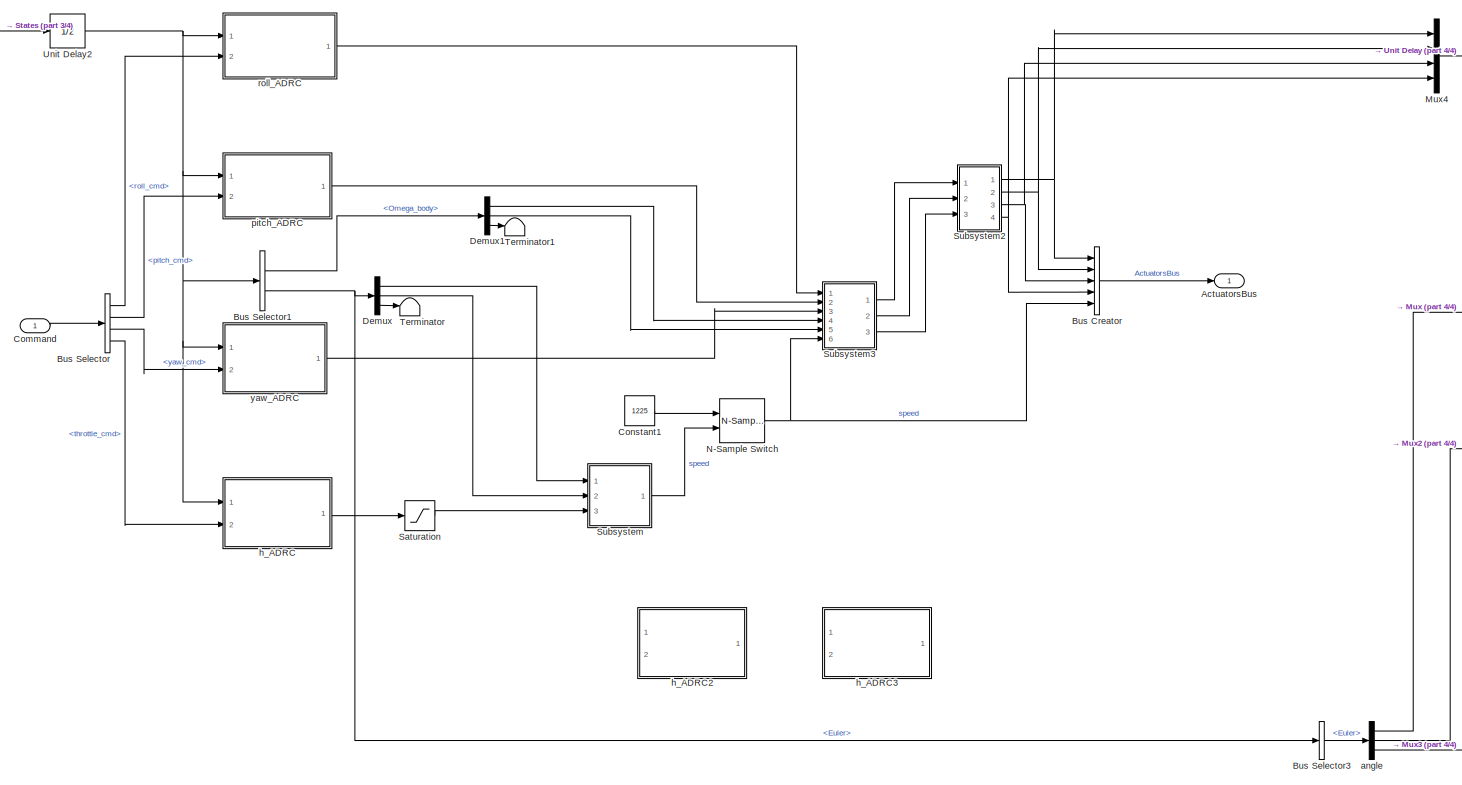
[diagram: ADRC_controller_NLSEF - part 2/4, center side, full height]
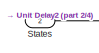
[diagram: ADRC_controller_NLSEF - part 3/4, top left region]
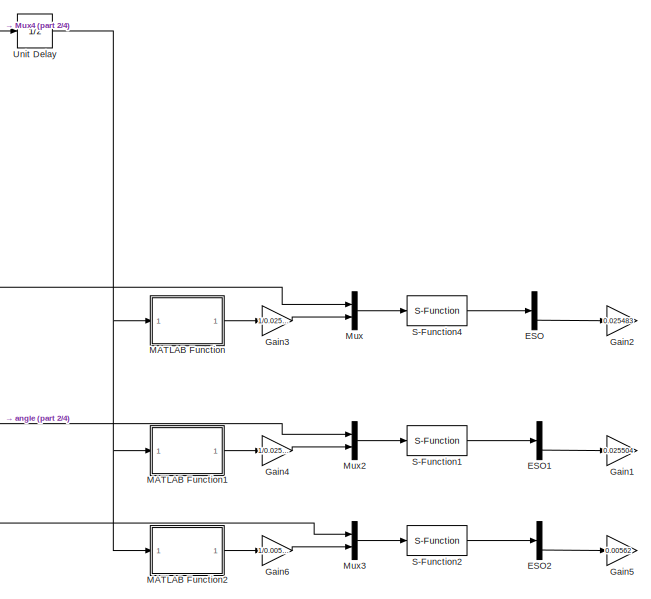
[diagram: ADRC_controller_NLSEF - part 4/4, middle right region]
BLOCK [SubSystem] ADRC_controller_NLSEF
  Ports = [2, 1]
  RequestExecContextInheritance = off
BLOCK [Outport] ADRC_controller_NLSEF/ActuatorsBus
  IconDisplay = Port number
  OutDataTypeStr = Bus: ActuatorsBus
BLOCK [BusCreator] ADRC_controller_NLSEF/Bus Creator
  DisplayOption = bar
  InheritFromInputs = on
  Inputs = 5
  OutDataTypeStr = Bus: ActuatorsBus
  Ports = [5, 1]
BLOCK [BusSelector] ADRC_controller_NLSEF/Bus Selector
  OutputAsBus = off
  OutputSignals = roll_cmd,pitch_cmd,yaw_cmd,throttle_cmd
  Ports = [1, 4]
BLOCK [BusSelector] ADRC_controller_NLSEF/Bus Selector1
  OutputAsBus = off
  OutputSignals = Omega_body,Euler
  Ports = [1, 2]
BLOCK [BusSelector] ADRC_controller_NLSEF/Bus Selector3
  OutputAsBus = off
  OutputSignals = Euler
  Ports = [1, 1]
BLOCK [Inport] ADRC_controller_NLSEF/Command
  IconDisplay = Port number
BLOCK [Constant] ADRC_controller_NLSEF/Constant1
  Value = 1225
BLOCK [Demux] ADRC_controller_NLSEF/Demux
  DisplayOption = bar
  Outputs = 3
  Ports = [1, 3]
BLOCK [Demux] ADRC_controller_NLSEF/Demux1
  DisplayOption = bar
  Outputs = 3
  Ports = [1, 3]
BLOCK [Demux] ADRC_controller_NLSEF/ESO
  DisplayOption = bar
  Outputs = 3
  Ports = [1, 3]
BLOCK [Demux] ADRC_controller_NLSEF/ESO1
  DisplayOption = bar
  Outputs = 3
  Ports = [1, 3]
BLOCK [Demux] ADRC_controller_NLSEF/ESO2
  DisplayOption = bar
  Outputs = 3
  Ports = [1, 3]
BLOCK [Gain] ADRC_controller_NLSEF/Gain1
  Gain = 0.025504
  OutDataTypeStr = Inherit: Inherit via internal rule
  ParamDataTypeStr = Inherit: Inherit via internal rule
  SaturateOnIntegerOverflow = off
BLOCK [Gain] ADRC_controller_NLSEF/Gain2
  Gain = 0.025483
  OutDataTypeStr = Inherit: Inherit via internal rule
  ParamDataTypeStr = Inherit: Inherit via internal rule
  SaturateOnIntegerOverflow = off
BLOCK [Gain] ADRC_controller_NLSEF/Gain3
  Gain = 1/0.025483
  OutDataTypeStr = Inherit: Inherit via internal rule
  ParamDataTypeStr = Inherit: Inherit via internal rule
  SaturateOnIntegerOverflow = off
BLOCK [Gain] ADRC_controller_NLSEF/Gain4
  Gain = 1/0.025504
  OutDataTypeStr = Inherit: Inherit via internal rule
  ParamDataTypeStr = Inherit: Inherit via internal rule
  SaturateOnIntegerOverflow = off
BLOCK [Gain] ADRC_controller_NLSEF/Gain5
  Gain = 0.00562
  OutDataTypeStr = Inherit: Inherit via internal rule
  ParamDataTypeStr = Inherit: Inherit via internal rule
  SaturateOnIntegerOverflow = off
BLOCK [Gain] ADRC_controller_NLSEF/Gain6
  Gain = 1/0.00562
  OutDataTypeStr = Inherit: Inherit via internal rule
  ParamDataTypeStr = Inherit: Inherit via internal rule
  SaturateOnIntegerOverflow = off
BLOCK [SubSystem] ADRC_controller_NLSEF/MATLAB Function
  ErrorFcn = Stateflow.Translate.translate
  PermitHierarchicalResolution = ExplicitOnly
  Ports = [1, 1]
  RequestExecContextInheritance = off
  SFBlockType = MATLAB Function
  TreatAsAtomicUnit = on
BLOCK [Demux] ADRC_controller_NLSEF/MATLAB Function/ Demux 
  Outputs = 1
  Ports = [1, 1]
BLOCK [S-Function] ADRC_controller_NLSEF/MATLAB Function/ SFunction 
  EnableBusSupport = on
  FunctionName = sf_sfun
  PortCounts = [1 2]
  Ports = [1, 2]
  SFcnIsStateOwnerBlock = off
  SFunctionDeploymentMode = off
  Tag = Stateflow S-Function ADRClibriry 3
BLOCK [Terminator] ADRC_controller_NLSEF/MATLAB Function/ Terminator 
BLOCK [Inport] ADRC_controller_NLSEF/MATLAB Function/u
  IconDisplay = Port number
BLOCK [Outport] ADRC_controller_NLSEF/MATLAB Function/y
  IconDisplay = Port number
BLOCK [SubSystem] ADRC_controller_NLSEF/MATLAB Function1
  ErrorFcn = Stateflow.Translate.translate
  PermitHierarchicalResolution = ExplicitOnly
  Ports = [1, 1]
  RequestExecContextInheritance = off
  SFBlockType = MATLAB Function
  TreatAsAtomicUnit = on
BLOCK [Demux] ADRC_controller_NLSEF/MATLAB Function1/ Demux 
  Outputs = 1
  Ports = [1, 1]
BLOCK [S-Function] ADRC_controller_NLSEF/MATLAB Function1/ SFunction 
  EnableBusSupport = on
  FunctionName = sf_sfun
  PortCounts = [1 2]
  Ports = [1, 2]
  SFcnIsStateOwnerBlock = off
  SFunctionDeploymentMode = off
  Tag = Stateflow S-Function ADRClibriry 5
BLOCK [Terminator] ADRC_controller_NLSEF/MATLAB Function1/ Terminator 
BLOCK [Inport] ADRC_controller_NLSEF/MATLAB Function1/u
  IconDisplay = Port number
BLOCK [Outport] ADRC_controller_NLSEF/MATLAB Function1/y
  IconDisplay = Port number
BLOCK [SubSystem] ADRC_controller_NLSEF/MATLAB Function2
  ErrorFcn = Stateflow.Translate.translate
  PermitHierarchicalResolution = ExplicitOnly
  Ports = [1, 1]
  RequestExecContextInheritance = off
  SFBlockType = MATLAB Function
  TreatAsAtomicUnit = on
BLOCK [Demux] ADRC_controller_NLSEF/MATLAB Function2/ Demux 
  Outputs = 1
  Ports = [1, 1]
BLOCK [S-Function] ADRC_controller_NLSEF/MATLAB Function2/ SFunction 
  EnableBusSupport = on
  FunctionName = sf_sfun
  PortCounts = [1 2]
  Ports = [1, 2]
  SFcnIsStateOwnerBlock = off
  SFunctionDeploymentMode = off
  Tag = Stateflow S-Function ADRClibriry 6
BLOCK [Terminator] ADRC_controller_NLSEF/MATLAB Function2/ Terminator 
BLOCK [Inport] ADRC_controller_NLSEF/MATLAB Function2/u
  IconDisplay = Port number
BLOCK [Outport] ADRC_controller_NLSEF/MATLAB Function2/y
  IconDisplay = Port number
BLOCK [Mux] ADRC_controller_NLSEF/Mux
  DisplayOption = bar
  Inputs = 2
  Ports = [2, 1]
BLOCK [Mux] ADRC_controller_NLSEF/Mux2
  DisplayOption = bar
  Inputs = 2
  Ports = [2, 1]
BLOCK [Mux] ADRC_controller_NLSEF/Mux3
  DisplayOption = bar
  Inputs = 2
  Ports = [2, 1]
BLOCK [Mux] ADRC_controller_NLSEF/Mux4
  DisplayOption = bar
  Ports = [4, 1]
BLOCK [Reference] ADRC_controller_NLSEF/N-Sample Switch  REF=dspswit3/N-Sample
Switch
  Ports = [2, 1]
  SourceBlock = dspswit3/N-Sample\nSwitch
  SourceProductBaseCode = DS
  SourceProductName = DSP System Toolbox
  SourceType = N-Sample Switch
BLOCK [S-Function] ADRC_controller_NLSEF/S-Function1
  EnableBusSupport = off
  FunctionName = s_ESO
  Ports = [1, 1]
  SFcnIsStateOwnerBlock = off
  SFunctionDeploymentMode = off
BLOCK [S-Function] ADRC_controller_NLSEF/S-Function2
  EnableBusSupport = off
  FunctionName = s_ESO
  Ports = [1, 1]
  SFcnIsStateOwnerBlock = off
  SFunctionDeploymentMode = off
BLOCK [S-Function] ADRC_controller_NLSEF/S-Function4
  EnableBusSupport = off
  FunctionName = s_ESO
  Ports = [1, 1]
  SFcnIsStateOwnerBlock = off
  SFunctionDeploymentMode = off
BLOCK [Saturate] ADRC_controller_NLSEF/Saturation
  InputPortMap = u0
  LowerLimit = -9.788*2
  Ports = [1, 1]
  UpperLimit = 0
BLOCK [Inport] ADRC_controller_NLSEF/States
  IconDisplay = Port number
  OutDataTypeStr = Bus: StatesBus
  Port = 2
BLOCK [SubSystem] ADRC_controller_NLSEF/Subsystem
  Ports = [3, 1]
  RequestExecContextInheritance = off
BLOCK [Product] ADRC_controller_NLSEF/Subsystem/Divide
  InputSameDT = off
  Inputs = */
  OutDataTypeStr = Inherit: Inherit via internal rule
  Ports = [2, 1]
  RndMeth = Floor
  SaturateOnIntegerOverflow = off
BLOCK [Gain] ADRC_controller_NLSEF/Subsystem/Gain
  Gain = -1225^2/9.788
  OutDataTypeStr = Inherit: Inherit via internal rule
  ParamDataTypeStr = Inherit: Inherit via internal rule
  SaturateOnIntegerOverflow = off
BLOCK [Inport] ADRC_controller_NLSEF/Subsystem/In1
  IconDisplay = Port number
BLOCK [Inport] ADRC_controller_NLSEF/Subsystem/In2
  IconDisplay = Port number
  Port = 2
BLOCK [Inport] ADRC_controller_NLSEF/Subsystem/In3
  IconDisplay = Port number
  Port = 3
BLOCK [Product] ADRC_controller_NLSEF/Subsystem/Product
  InputSameDT = off
  OutDataTypeStr = Inherit: Inherit via internal rule
  Ports = [2, 1]
  RndMeth = Floor
  SaturateOnIntegerOverflow = off
BLOCK [Saturate] ADRC_controller_NLSEF/Subsystem/Saturation1
  InputPortMap = u0
  LowerLimit = 0.5
  Ports = [1, 1]
  UpperLimit = 1
BLOCK [Sqrt] ADRC_controller_NLSEF/Subsystem/Sqrt
BLOCK [Trigonometry] ADRC_controller_NLSEF/Subsystem/Trigonometric Function
  Operator = cos
  Ports = [1, 1]
BLOCK [Trigonometry] ADRC_controller_NLSEF/Subsystem/Trigonometric Function1
  Operator = cos
  Ports = [1, 1]
BLOCK [Outport] ADRC_controller_NLSEF/Subsystem/speed
  IconDisplay = Port number
BLOCK [SubSystem] ADRC_controller_NLSEF/Subsystem2
  Ports = [3, 4]
  RequestExecContextInheritance = off
BLOCK [Demux] ADRC_controller_NLSEF/Subsystem2/Demux3
  DisplayOption = bar
  Ports = [1, 4]
BLOCK [SubSystem] ADRC_controller_NLSEF/Subsystem2/MATLAB Function
  ErrorFcn = Stateflow.Translate.translate
  PermitHierarchicalResolution = ExplicitOnly
  Ports = [1, 1]
  RequestExecContextInheritance = off
  SFBlockType = MATLAB Function
  TreatAsAtomicUnit = on
BLOCK [Demux] ADRC_controller_NLSEF/Subsystem2/MATLAB Function/ Demux 
  Outputs = 1
  Ports = [1, 1]
BLOCK [S-Function] ADRC_controller_NLSEF/Subsystem2/MATLAB Function/ SFunction 
  EnableBusSupport = on
  FunctionName = sf_sfun
  PortCounts = [1 2]
  Ports = [1, 2]
  SFcnIsStateOwnerBlock = off
  SFunctionDeploymentMode = off
  Tag = Stateflow S-Function ADRClibriry 7
BLOCK [Terminator] ADRC_controller_NLSEF/Subsystem2/MATLAB Function/ Terminator 
BLOCK [Inport] ADRC_controller_NLSEF/Subsystem2/MATLAB Function/u
  IconDisplay = Port number
BLOCK [Outport] ADRC_controller_NLSEF/Subsystem2/MATLAB Function/y
  IconDisplay = Port number
BLOCK [Mux] ADRC_controller_NLSEF/Subsystem2/Mux
  DisplayOption = bar
  Inputs = 3
  Ports = [3, 1]
BLOCK [Saturate] ADRC_controller_NLSEF/Subsystem2/Saturation1
  InputPortMap = u0
  LowerLimit = -0.3491
  Ports = [1, 1]
  UpperLimit = 0.3491
BLOCK [Saturate] ADRC_controller_NLSEF/Subsystem2/Saturation2
  InputPortMap = u0
  LowerLimit = -0.3491
  Ports = [1, 1]
  UpperLimit = 0.3491
BLOCK [Saturate] ADRC_controller_NLSEF/Subsystem2/Saturation3
  InputPortMap = u0
  LowerLimit = -0.3491
  Ports = [1, 1]
  UpperLimit = 0.3491
BLOCK [Saturate] ADRC_controller_NLSEF/Subsystem2/Saturation4
  InputPortMap = u0
  LowerLimit = -0.3491
  Ports = [1, 1]
  UpperLimit = 0.3491
BLOCK [Outport] ADRC_controller_NLSEF/Subsystem2/c1
  IconDisplay = Port number
BLOCK [Outport] ADRC_controller_NLSEF/Subsystem2/c2
  IconDisplay = Port number
  Port = 2
BLOCK [Outport] ADRC_controller_NLSEF/Subsystem2/c3
  IconDisplay = Port number
  Port = 3
BLOCK [Outport] ADRC_controller_NLSEF/Subsystem2/c4
  IconDisplay = Port number
  Port = 4
BLOCK [Inport] ADRC_controller_NLSEF/Subsystem2/u_1
  IconDisplay = Port number
BLOCK [Inport] ADRC_controller_NLSEF/Subsystem2/u_2
  IconDisplay = Port number
  Port = 2
BLOCK [Inport] ADRC_controller_NLSEF/Subsystem2/u_3
  IconDisplay = Port number
  Port = 3
BLOCK [SubSystem] ADRC_controller_NLSEF/Subsystem3
  Ports = [6, 3]
  RequestExecContextInheritance = off
BLOCK [Sum] ADRC_controller_NLSEF/Subsystem3/Add1
  InputSameDT = off
  OutDataTypeStr = Inherit: Inherit via internal rule
  Ports = [2, 1]
  SaturateOnIntegerOverflow = off
BLOCK [Sum] ADRC_controller_NLSEF/Subsystem3/Add2
  InputSameDT = off
  Inputs = +-
  OutDataTypeStr = Inherit: Inherit via internal rule
  Ports = [2, 1]
  SaturateOnIntegerOverflow = off
BLOCK [Sum] ADRC_controller_NLSEF/Subsystem3/Add3
  InputSameDT = off
  Inputs = +-
  OutDataTypeStr = Inherit: Inherit via internal rule
  Ports = [2, 1]
  SaturateOnIntegerOverflow = off
BLOCK [Constant] ADRC_controller_NLSEF/Subsystem3/Constant1
  Value = 0.000029
BLOCK [Constant] ADRC_controller_NLSEF/Subsystem3/Constant2
  Value = 0.04238
BLOCK [Product] ADRC_controller_NLSEF/Subsystem3/Product
  InputSameDT = off
  OutDataTypeStr = Inherit: Inherit via internal rule
  Ports = [2, 1]
  RndMeth = Floor
  SaturateOnIntegerOverflow = off
BLOCK [Product] ADRC_controller_NLSEF/Subsystem3/Product1
  InputSameDT = off
  OutDataTypeStr = Inherit: Inherit via internal rule
  Ports = [2, 1]
  RndMeth = Floor
  SaturateOnIntegerOverflow = off
BLOCK [Product] ADRC_controller_NLSEF/Subsystem3/Product2
  InputSameDT = off
  OutDataTypeStr = Inherit: Inherit via internal rule
  Ports = [2, 1]
  RndMeth = Floor
  SaturateOnIntegerOverflow = off
BLOCK [Product] ADRC_controller_NLSEF/Subsystem3/Product3
  InputSameDT = off
  OutDataTypeStr = Inherit: Inherit via internal rule
  Ports = [2, 1]
  RndMeth = Floor
  SaturateOnIntegerOverflow = off
BLOCK [Inport] ADRC_controller_NLSEF/Subsystem3/p
  IconDisplay = Port number
  Port = 4
BLOCK [Inport] ADRC_controller_NLSEF/Subsystem3/q
  IconDisplay = Port number
  Port = 5
BLOCK [Inport] ADRC_controller_NLSEF/Subsystem3/speed
  IconDisplay = Port number
  Port = 6
BLOCK [Outport] ADRC_controller_NLSEF/Subsystem3/u_1
  IconDisplay = Port number
BLOCK [Outport] ADRC_controller_NLSEF/Subsystem3/u_2
  IconDisplay = Port number
  Port = 2
BLOCK [Outport] ADRC_controller_NLSEF/Subsystem3/u_3
  IconDisplay = Port number
  Port = 3
BLOCK [Inport] ADRC_controller_NLSEF/Subsystem3/u_p
  IconDisplay = Port number
BLOCK [Inport] ADRC_controller_NLSEF/Subsystem3/u_q
  IconDisplay = Port number
  Port = 2
BLOCK [Inport] ADRC_controller_NLSEF/Subsystem3/u_r
  IconDisplay = Port number
  Port = 3
BLOCK [Terminator] ADRC_controller_NLSEF/Terminator
BLOCK [Terminator] ADRC_controller_NLSEF/Terminator1
BLOCK [UnitDelay] ADRC_controller_NLSEF/Unit Delay
  InputProcessing = Elements as channels (sample based)
  SampleTime = -1
BLOCK [UnitDelay] ADRC_controller_NLSEF/Unit Delay2
  InputProcessing = Elements as channels (sample based)
  SampleTime = -1
BLOCK [Demux] ADRC_controller_NLSEF/angle
  DisplayOption = bar
  Outputs = 3
  Ports = [1, 3]
BLOCK [SubSystem] ADRC_controller_NLSEF/h_ADRC
  Ports = [2, 1]
  RequestExecContextInheritance = off
BLOCK [Inport] ADRC_controller_NLSEF/h_ADRC/<throttle_cmd>
  IconDisplay = Port number
  Port = 2
BLOCK [Sum] ADRC_controller_NLSEF/h_ADRC/Add
  InputSameDT = off
  Inputs = +-
  OutDataTypeStr = Inherit: Inherit via internal rule
  Ports = [2, 1]
  SaturateOnIntegerOverflow = off
BLOCK [BusSelector] ADRC_controller_NLSEF/h_ADRC/Bus Selector1
  OutputAsBus = off
  OutputSignals = X_ned
  Ports = [1, 1]
BLOCK [Constant] ADRC_controller_NLSEF/h_ADRC/Constant
  Value = 9.78
BLOCK [Demux] ADRC_controller_NLSEF/h_ADRC/Demux
  DisplayOption = bar
  Outputs = 2
  Ports = [1, 2]
BLOCK [Demux] ADRC_controller_NLSEF/h_ADRC/ESO
  DisplayOption = bar
  Outputs = 3
  Ports = [1, 3]
BLOCK [Gain] ADRC_controller_NLSEF/h_ADRC/Gain2
  OutDataTypeStr = Inherit: Inherit via internal rule
  ParamDataTypeStr = Inherit: Inherit via internal rule
  SaturateOnIntegerOverflow = off
BLOCK [Gain] ADRC_controller_NLSEF/h_ADRC/Gain3
  OutDataTypeStr = Inherit: Inherit via internal rule
  ParamDataTypeStr = Inherit: Inherit via internal rule
  SaturateOnIntegerOverflow = off
BLOCK [SubSystem] ADRC_controller_NLSEF/h_ADRC/MATLAB Function
  ErrorFcn = Stateflow.Translate.translate
  PermitHierarchicalResolution = ExplicitOnly
  Ports = [4, 1]
  RequestExecContextInheritance = off
  SFBlockType = MATLAB Function
  TreatAsAtomicUnit = on
BLOCK [Demux] ADRC_controller_NLSEF/h_ADRC/MATLAB Function/ Demux 
  Outputs = 1
  Ports = [1, 1]
BLOCK [S-Function] ADRC_controller_NLSEF/h_ADRC/MATLAB Function/ SFunction 
  EnableBusSupport = on
  FunctionName = sf_sfun
  PortCounts = [4 2]
  Ports = [4, 2]
  SFcnIsStateOwnerBlock = off
  SFunctionDeploymentMode = off
  Tag = Stateflow S-Function ADRClibriry 11
BLOCK [Terminator] ADRC_controller_NLSEF/h_ADRC/MATLAB Function/ Terminator 
BLOCK [Inport] ADRC_controller_NLSEF/h_ADRC/MATLAB Function/x1
  IconDisplay = Port number
  Port = 3
BLOCK [Inport] ADRC_controller_NLSEF/h_ADRC/MATLAB Function/x1_d
  IconDisplay = Port number
BLOCK [Inport] ADRC_controller_NLSEF/h_ADRC/MATLAB Function/x2
  IconDisplay = Port number
  Port = 4
BLOCK [Inport] ADRC_controller_NLSEF/h_ADRC/MATLAB Function/x2_d
  IconDisplay = Port number
  Port = 2
BLOCK [Outport] ADRC_controller_NLSEF/h_ADRC/MATLAB Function/y
  IconDisplay = Port number
BLOCK [Mux] ADRC_controller_NLSEF/h_ADRC/Mux
  DisplayOption = bar
  Inputs = 2
  Ports = [2, 1]
BLOCK [RateTransition] ADRC_controller_NLSEF/h_ADRC/RT
  OutPortSampleTime = 0.05
BLOCK [RateTransition] ADRC_controller_NLSEF/h_ADRC/RT1
  OutPortSampleTime = 0.01
BLOCK [S-Function] ADRC_controller_NLSEF/h_ADRC/S-Function
  EnableBusSupport = off
  FunctionName = s_TD
  Ports = [1, 1]
  SFcnIsStateOwnerBlock = off
  SFunctionDeploymentMode = off
BLOCK [S-Function] ADRC_controller_NLSEF/h_ADRC/S-Function4
  EnableBusSupport = off
  FunctionName = s_ESO
  Ports = [1, 1]
  SFcnIsStateOwnerBlock = off
  SFunctionDeploymentMode = off
BLOCK [Scope] ADRC_controller_NLSEF/h_ADRC/Scope3
  Floating = off
  NumInputPorts = 1
  Ports = [1]
BLOCK [Inport] ADRC_controller_NLSEF/h_ADRC/States
  IconDisplay = Port number
  OutDataTypeStr = Bus: StatesBus
BLOCK [Sum] ADRC_controller_NLSEF/h_ADRC/Sum2
  IconShape = round
  InputSameDT = off
  Inputs = ++|
  OutDataTypeStr = Inherit: Inherit via internal rule
  Ports = [2, 1]
  SaturateOnIntegerOverflow = off
BLOCK [Sum] ADRC_controller_NLSEF/h_ADRC/Sum3
  IconShape = round
  InputSameDT = off
  Inputs = |++
  OutDataTypeStr = Inherit: Inherit via internal rule
  Ports = [2, 1]
  SaturateOnIntegerOverflow = off
BLOCK [Terminator] ADRC_controller_NLSEF/h_ADRC/Terminator
BLOCK [Terminator] ADRC_controller_NLSEF/h_ADRC/Terminator1
BLOCK [Outport] ADRC_controller_NLSEF/h_ADRC/a_t
  IconDisplay = Port number
BLOCK [Demux] ADRC_controller_NLSEF/h_ADRC/x
  DisplayOption = bar
  Outputs = 3
  Ports = [1, 3]
BLOCK [SubSystem] ADRC_controller_NLSEF/h_ADRC2
  Ports = [2, 1]
  RequestExecContextInheritance = off
BLOCK [Inport] ADRC_controller_NLSEF/h_ADRC2/<throttle_cmd>
  IconDisplay = Port number
  Port = 2
BLOCK [Sum] ADRC_controller_NLSEF/h_ADRC2/Add
  InputSameDT = off
  Inputs = ++-
  OutDataTypeStr = Inherit: Inherit via internal rule
  Ports = [3, 1]
  SaturateOnIntegerOverflow = off
BLOCK [Sum] ADRC_controller_NLSEF/h_ADRC2/Add2
  InputSameDT = off
  OutDataTypeStr = Inherit: Inherit via internal rule
  Ports = [2, 1]
  SaturateOnIntegerOverflow = off
BLOCK [BusSelector] ADRC_controller_NLSEF/h_ADRC2/Bus Selector1
  OutputAsBus = off
  OutputSignals = X_ned
  Ports = [1, 1]
BLOCK [Demux] ADRC_controller_NLSEF/h_ADRC2/Demux
  DisplayOption = bar
  Outputs = 2
  Ports = [1, 2]
BLOCK [Demux] ADRC_controller_NLSEF/h_ADRC2/ESO
  DisplayOption = bar
  Outputs = 3
  Ports = [1, 3]
BLOCK [Gain] ADRC_controller_NLSEF/h_ADRC2/Gain
  Gain = 12
  OutDataTypeStr = Inherit: Inherit via internal rule
  ParamDataTypeStr = Inherit: Inherit via internal rule
  SaturateOnIntegerOverflow = off
BLOCK [Gain] ADRC_controller_NLSEF/h_ADRC2/Gain1
  Gain = 3
  OutDataTypeStr = Inherit: Inherit via internal rule
  ParamDataTypeStr = Inherit: Inherit via internal rule
  SaturateOnIntegerOverflow = off
BLOCK [Gain] ADRC_controller_NLSEF/h_ADRC2/Gain2
  OutDataTypeStr = Inherit: Inherit via internal rule
  ParamDataTypeStr = Inherit: Inherit via internal rule
  SaturateOnIntegerOverflow = off
BLOCK [Gain] ADRC_controller_NLSEF/h_ADRC2/Gain3
  OutDataTypeStr = Inherit: Inherit via internal rule
  ParamDataTypeStr = Inherit: Inherit via internal rule
  SaturateOnIntegerOverflow = off
BLOCK [Mux] ADRC_controller_NLSEF/h_ADRC2/Mux
  DisplayOption = bar
  Inputs = 2
  Ports = [2, 1]
BLOCK [RateTransition] ADRC_controller_NLSEF/h_ADRC2/RT
  OutPortSampleTime = 0.05
BLOCK [RateTransition] ADRC_controller_NLSEF/h_ADRC2/RT1
  OutPortSampleTime = 0.01
BLOCK [S-Function] ADRC_controller_NLSEF/h_ADRC2/S-Function
  EnableBusSupport = off
  FunctionName = s_TD
  Ports = [1, 1]
  SFcnIsStateOwnerBlock = off
  SFunctionDeploymentMode = off
BLOCK [S-Function] ADRC_controller_NLSEF/h_ADRC2/S-Function4
  EnableBusSupport = off
  FunctionName = s_HESO
  Ports = [1, 1]
  SFcnIsStateOwnerBlock = off
  SFunctionDeploymentMode = off
BLOCK [Scope] ADRC_controller_NLSEF/h_ADRC2/Scope3
  Floating = off
  NumInputPorts = 1
  Ports = [1]
BLOCK [Inport] ADRC_controller_NLSEF/h_ADRC2/States
  IconDisplay = Port number
  OutDataTypeStr = Bus: StatesBus
BLOCK [Sum] ADRC_controller_NLSEF/h_ADRC2/Sum
  IconShape = round
  InputSameDT = off
  Inputs = |+-
  OutDataTypeStr = Inherit: Inherit via internal rule
  Ports = [2, 1]
  SaturateOnIntegerOverflow = off
BLOCK [Sum] ADRC_controller_NLSEF/h_ADRC2/Sum1
  IconShape = round
  InputSameDT = off
  Inputs = |+-
  OutDataTypeStr = Inherit: Inherit via internal rule
  Ports = [2, 1]
  SaturateOnIntegerOverflow = off
BLOCK [Sum] ADRC_controller_NLSEF/h_ADRC2/Sum2
  IconShape = round
  InputSameDT = off
  Inputs = ++|
  OutDataTypeStr = Inherit: Inherit via internal rule
  Ports = [2, 1]
  SaturateOnIntegerOverflow = off
BLOCK [Sum] ADRC_controller_NLSEF/h_ADRC2/Sum3
  IconShape = round
  InputSameDT = off
  Inputs = |++
  OutDataTypeStr = Inherit: Inherit via internal rule
  Ports = [2, 1]
  SaturateOnIntegerOverflow = off
BLOCK [Terminator] ADRC_controller_NLSEF/h_ADRC2/Terminator
BLOCK [Terminator] ADRC_controller_NLSEF/h_ADRC2/Terminator1
BLOCK [Outport] ADRC_controller_NLSEF/h_ADRC2/a_t
  IconDisplay = Port number
BLOCK [Constant] ADRC_controller_NLSEF/h_ADRC2/g
  Value = -9.788
BLOCK [Demux] ADRC_controller_NLSEF/h_ADRC2/x
  DisplayOption = bar
  Outputs = 3
  Ports = [1, 3]
BLOCK [SubSystem] ADRC_controller_NLSEF/h_ADRC3
  Ports = [2, 1]
  RequestExecContextInheritance = off
BLOCK [Inport] ADRC_controller_NLSEF/h_ADRC3/<throttle_cmd>
  IconDisplay = Port number
  Port = 2
BLOCK [Sum] ADRC_controller_NLSEF/h_ADRC3/Add
  InputSameDT = off
  Inputs = ++-
  OutDataTypeStr = Inherit: Inherit via internal rule
  Ports = [3, 1]
  SaturateOnIntegerOverflow = off
BLOCK [BusSelector] ADRC_controller_NLSEF/h_ADRC3/Bus Selector1
  OutputAsBus = off
  OutputSignals = X_ned
  Ports = [1, 1]
BLOCK [Constant] ADRC_controller_NLSEF/h_ADRC3/Constant
  Value = 9.78
BLOCK [Demux] ADRC_controller_NLSEF/h_ADRC3/Demux
  DisplayOption = bar
  Outputs = 2
  Ports = [1, 2]
BLOCK [Demux] ADRC_controller_NLSEF/h_ADRC3/ESO
  DisplayOption = bar
  Outputs = 3
  Ports = [1, 3]
BLOCK [Gain] ADRC_controller_NLSEF/h_ADRC3/Gain
  Gain = 12
  OutDataTypeStr = Inherit: Inherit via internal rule
  ParamDataTypeStr = Inherit: Inherit via internal rule
  SaturateOnIntegerOverflow = off
BLOCK [Gain] ADRC_controller_NLSEF/h_ADRC3/Gain1
  Gain = 3
  OutDataTypeStr = Inherit: Inherit via internal rule
  ParamDataTypeStr = Inherit: Inherit via internal rule
  SaturateOnIntegerOverflow = off
BLOCK [Gain] ADRC_controller_NLSEF/h_ADRC3/Gain2
  Gain = 1.53
  OutDataTypeStr = Inherit: Inherit via internal rule
  ParamDataTypeStr = Inherit: Inherit via internal rule
  SaturateOnIntegerOverflow = off
BLOCK [Gain] ADRC_controller_NLSEF/h_ADRC3/Gain3
  Gain = 1/1.53
  OutDataTypeStr = Inherit: Inherit via internal rule
  ParamDataTypeStr = Inherit: Inherit via internal rule
  SaturateOnIntegerOverflow = off
BLOCK [Gain] ADRC_controller_NLSEF/h_ADRC3/Gain4
  Gain = 1/1.53
  OutDataTypeStr = Inherit: Inherit via internal rule
  ParamDataTypeStr = Inherit: Inherit via internal rule
  SaturateOnIntegerOverflow = off
BLOCK [Mux] ADRC_controller_NLSEF/h_ADRC3/Mux
  DisplayOption = bar
  Inputs = 2
  Ports = [2, 1]
BLOCK [RateTransition] ADRC_controller_NLSEF/h_ADRC3/RT
  OutPortSampleTime = 0.05
BLOCK [RateTransition] ADRC_controller_NLSEF/h_ADRC3/RT1
  OutPortSampleTime = 0.01
BLOCK [S-Function] ADRC_controller_NLSEF/h_ADRC3/S-Function
  EnableBusSupport = off
  FunctionName = s_TD
  Ports = [1, 1]
  SFcnIsStateOwnerBlock = off
  SFunctionDeploymentMode = off
BLOCK [S-Function] ADRC_controller_NLSEF/h_ADRC3/S-Function4
  EnableBusSupport = off
  FunctionName = s_HESO
  Ports = [1, 1]
  SFcnIsStateOwnerBlock = off
  SFunctionDeploymentMode = off
BLOCK [Inport] ADRC_controller_NLSEF/h_ADRC3/States
  IconDisplay = Port number
  OutDataTypeStr = Bus: StatesBus
BLOCK [Sum] ADRC_controller_NLSEF/h_ADRC3/Sum
  IconShape = round
  InputSameDT = off
  Inputs = |+-
  OutDataTypeStr = Inherit: Inherit via internal rule
  Ports = [2, 1]
  SaturateOnIntegerOverflow = off
BLOCK [Sum] ADRC_controller_NLSEF/h_ADRC3/Sum1
  IconShape = round
  InputSameDT = off
  Inputs = |+-
  OutDataTypeStr = Inherit: Inherit via internal rule
  Ports = [2, 1]
  SaturateOnIntegerOverflow = off
BLOCK [Sum] ADRC_controller_NLSEF/h_ADRC3/Sum2
  IconShape = round
  InputSameDT = off
  Inputs = ++|
  OutDataTypeStr = Inherit: Inherit via internal rule
  Ports = [2, 1]
  SaturateOnIntegerOverflow = off
BLOCK [Sum] ADRC_controller_NLSEF/h_ADRC3/Sum3
  IconShape = round
  InputSameDT = off
  Inputs = |++
  OutDataTypeStr = Inherit: Inherit via internal rule
  Ports = [2, 1]
  SaturateOnIntegerOverflow = off
BLOCK [Terminator] ADRC_controller_NLSEF/h_ADRC3/Terminator
BLOCK [Terminator] ADRC_controller_NLSEF/h_ADRC3/Terminator1
BLOCK [Outport] ADRC_controller_NLSEF/h_ADRC3/a_t
  IconDisplay = Port number
BLOCK [Demux] ADRC_controller_NLSEF/h_ADRC3/x
  DisplayOption = bar
  Outputs = 3
  Ports = [1, 3]
BLOCK [SubSystem] ADRC_controller_NLSEF/pitch_ADRC
  Ports = [2, 1]
  RequestExecContextInheritance = off
BLOCK [Inport] ADRC_controller_NLSEF/pitch_ADRC/<pitch_cmd>
  IconDisplay = Port number
  Port = 2
BLOCK [Sum] ADRC_controller_NLSEF/pitch_ADRC/Add1
  InputSameDT = off
  Inputs = +-
  OutDataTypeStr = Inherit: Inherit via internal rule
  Ports = [2, 1]
  SaturateOnIntegerOverflow = off
BLOCK [BusSelector] ADRC_controller_NLSEF/pitch_ADRC/Bus Selector1
  OutputAsBus = off
  OutputSignals = Euler
  Ports = [1, 1]
BLOCK [Demux] ADRC_controller_NLSEF/pitch_ADRC/Demux
  DisplayOption = bar
  Outputs = 2
  Ports = [1, 2]
BLOCK [Demux] ADRC_controller_NLSEF/pitch_ADRC/ESO
  DisplayOption = bar
  Outputs = 3
  Ports = [1, 3]
BLOCK [Gain] ADRC_controller_NLSEF/pitch_ADRC/Gain4
  Gain = 0.025504
  OutDataTypeStr = Inherit: Inherit via internal rule
  ParamDataTypeStr = Inherit: Inherit via internal rule
  SaturateOnIntegerOverflow = off
BLOCK [Gain] ADRC_controller_NLSEF/pitch_ADRC/Gain5
  Gain = 39.2418
  OutDataTypeStr = Inherit: Inherit via internal rule
  ParamDataTypeStr = Inherit: Inherit via internal rule
  SaturateOnIntegerOverflow = off
BLOCK [SubSystem] ADRC_controller_NLSEF/pitch_ADRC/MATLAB Function
  ErrorFcn = Stateflow.Translate.translate
  PermitHierarchicalResolution = ExplicitOnly
  Ports = [4, 1]
  RequestExecContextInheritance = off
  SFBlockType = MATLAB Function
  TreatAsAtomicUnit = on
BLOCK [Demux] ADRC_controller_NLSEF/pitch_ADRC/MATLAB Function/ Demux 
  Outputs = 1
  Ports = [1, 1]
BLOCK [S-Function] ADRC_controller_NLSEF/pitch_ADRC/MATLAB Function/ SFunction 
  EnableBusSupport = on
  FunctionName = sf_sfun
  PortCounts = [4 2]
  Ports = [4, 2]
  SFcnIsStateOwnerBlock = off
  SFunctionDeploymentMode = off
  Tag = Stateflow S-Function ADRClibriry 8
BLOCK [Terminator] ADRC_controller_NLSEF/pitch_ADRC/MATLAB Function/ Terminator 
BLOCK [Inport] ADRC_controller_NLSEF/pitch_ADRC/MATLAB Function/x1
  IconDisplay = Port number
  Port = 3
BLOCK [Inport] ADRC_controller_NLSEF/pitch_ADRC/MATLAB Function/x1_d
  IconDisplay = Port number
BLOCK [Inport] ADRC_controller_NLSEF/pitch_ADRC/MATLAB Function/x2
  IconDisplay = Port number
  Port = 4
BLOCK [Inport] ADRC_controller_NLSEF/pitch_ADRC/MATLAB Function/x2_d
  IconDisplay = Port number
  Port = 2
BLOCK [Outport] ADRC_controller_NLSEF/pitch_ADRC/MATLAB Function/y
  IconDisplay = Port number
BLOCK [Mux] ADRC_controller_NLSEF/pitch_ADRC/Mux
  DisplayOption = bar
  Inputs = 2
  Ports = [2, 1]
BLOCK [RateTransition] ADRC_controller_NLSEF/pitch_ADRC/RT
  OutPortSampleTime = 0.05
BLOCK [RateTransition] ADRC_controller_NLSEF/pitch_ADRC/RT1
  OutPortSampleTime = 0.01
BLOCK [S-Function] ADRC_controller_NLSEF/pitch_ADRC/S-Function
  EnableBusSupport = off
  FunctionName = s_TD
  Ports = [1, 1]
  SFcnIsStateOwnerBlock = off
  SFunctionDeploymentMode = off
BLOCK [S-Function] ADRC_controller_NLSEF/pitch_ADRC/S-Function4
  EnableBusSupport = off
  FunctionName = s_ESO
  Ports = [1, 1]
  SFcnIsStateOwnerBlock = off
  SFunctionDeploymentMode = off
BLOCK [Scope] ADRC_controller_NLSEF/pitch_ADRC/Scope4
  Floating = off
  NumInputPorts = 2
  Ports = [2]
  ScopeSpecificationString = Simulink.scopes.TimeScopeBlockCfg('CurrentConfiguration', extmgr.ConfigurationSet(extmgr.Configuration('Core','General UI',true),extmgr.Configuration('Core','Source UI',true),extmgr.Configuration('Sources','WiredSimulink',true,'DataLoggingVariableName','ScopeData4','DataLoggingLimitDataPoints',true,'DataLoggingMaxPoints','500000'),extmgr.Configuration('Visuals','Time Domain',true,'SerializedDispla...<+1511ch>
BLOCK [Sin] ADRC_controller_NLSEF/pitch_ADRC/Sine Wave
  Amplitude = 0.2
  Frequency = 2*pi*1
  Ports = [0, 1]
  SampleTime = 0.01
BLOCK [Inport] ADRC_controller_NLSEF/pitch_ADRC/States
  IconDisplay = Port number
  OutDataTypeStr = Bus: StatesBus
BLOCK [Terminator] ADRC_controller_NLSEF/pitch_ADRC/Terminator
BLOCK [Terminator] ADRC_controller_NLSEF/pitch_ADRC/Terminator1
BLOCK [Demux] ADRC_controller_NLSEF/pitch_ADRC/angle
  DisplayOption = bar
  Outputs = 3
  Ports = [1, 3]
BLOCK [Outport] ADRC_controller_NLSEF/pitch_ADRC/u_q
  IconDisplay = Port number
BLOCK [SubSystem] ADRC_controller_NLSEF/roll_ADRC
  Ports = [2, 1]
  RequestExecContextInheritance = off
BLOCK [Inport] ADRC_controller_NLSEF/roll_ADRC/<roll_cmd>
  IconDisplay = Port number
  Port = 2
BLOCK [Sum] ADRC_controller_NLSEF/roll_ADRC/Add
  InputSameDT = off
  Inputs = +-
  OutDataTypeStr = Inherit: Inherit via internal rule
  Ports = [2, 1]
  SaturateOnIntegerOverflow = off
BLOCK [BusSelector] ADRC_controller_NLSEF/roll_ADRC/Bus Selector1
  OutputAsBus = off
  OutputSignals = Euler
  Ports = [1, 1]
BLOCK [Demux] ADRC_controller_NLSEF/roll_ADRC/ESO
  DisplayOption = bar
  Outputs = 3
  Ports = [1, 3]
BLOCK [Gain] ADRC_controller_NLSEF/roll_ADRC/Gain2
  Gain = 0.025504
  OutDataTypeStr = Inherit: Inherit via internal rule
  ParamDataTypeStr = Inherit: Inherit via internal rule
  SaturateOnIntegerOverflow = off
BLOCK [Gain] ADRC_controller_NLSEF/roll_ADRC/Gain3
  Gain = 39.2418
  OutDataTypeStr = Inherit: Inherit via internal rule
  ParamDataTypeStr = Inherit: Inherit via internal rule
  SaturateOnIntegerOverflow = off
BLOCK [SubSystem] ADRC_controller_NLSEF/roll_ADRC/MATLAB Function
  ErrorFcn = Stateflow.Translate.translate
  PermitHierarchicalResolution = ExplicitOnly
  Ports = [4, 1]
  RequestExecContextInheritance = off
  SFBlockType = MATLAB Function
  TreatAsAtomicUnit = on
BLOCK [Demux] ADRC_controller_NLSEF/roll_ADRC/MATLAB Function/ Demux 
  Outputs = 1
  Ports = [1, 1]
BLOCK [S-Function] ADRC_controller_NLSEF/roll_ADRC/MATLAB Function/ SFunction 
  EnableBusSupport = on
  FunctionName = sf_sfun
  PortCounts = [4 2]
  Ports = [4, 2]
  SFcnIsStateOwnerBlock = off
  SFunctionDeploymentMode = off
  Tag = Stateflow S-Function ADRClibriry 9
BLOCK [Terminator] ADRC_controller_NLSEF/roll_ADRC/MATLAB Function/ Terminator 
BLOCK [Inport] ADRC_controller_NLSEF/roll_ADRC/MATLAB Function/x1
  IconDisplay = Port number
  Port = 3
BLOCK [Inport] ADRC_controller_NLSEF/roll_ADRC/MATLAB Function/x1_d
  IconDisplay = Port number
BLOCK [Inport] ADRC_controller_NLSEF/roll_ADRC/MATLAB Function/x2
  IconDisplay = Port number
  Port = 4
BLOCK [Inport] ADRC_controller_NLSEF/roll_ADRC/MATLAB Function/x2_d
  IconDisplay = Port number
  Port = 2
BLOCK [Outport] ADRC_controller_NLSEF/roll_ADRC/MATLAB Function/y
  IconDisplay = Port number
BLOCK [Mux] ADRC_controller_NLSEF/roll_ADRC/Mux
  DisplayOption = bar
  Inputs = 2
  Ports = [2, 1]
BLOCK [RateTransition] ADRC_controller_NLSEF/roll_ADRC/RT
  OutPortSampleTime = 0.05
BLOCK [RateTransition] ADRC_controller_NLSEF/roll_ADRC/RT1
  OutPortSampleTime = 0.01
BLOCK [S-Function] ADRC_controller_NLSEF/roll_ADRC/S-Function
  EnableBusSupport = off
  FunctionName = s_TD
  Ports = [1, 1]
  SFcnIsStateOwnerBlock = off
  SFunctionDeploymentMode = off
BLOCK [S-Function] ADRC_controller_NLSEF/roll_ADRC/S-Function4
  EnableBusSupport = off
  FunctionName = s_ESO
  Ports = [1, 1]
  SFcnIsStateOwnerBlock = off
  SFunctionDeploymentMode = off
BLOCK [Scope] ADRC_controller_NLSEF/roll_ADRC/Scope
  Floating = off
  NumInputPorts = 2
  Ports = [2]
  ScopeSpecificationString = Simulink.scopes.TimeScopeBlockCfg('CurrentConfiguration', extmgr.ConfigurationSet(extmgr.Configuration('Core','General UI',true),extmgr.Configuration('Core','Source UI',true),extmgr.Configuration('Sources','WiredSimulink',true,'DataLoggingVariableName','ScopeData1'),extmgr.Configuration('Visuals','Time Domain',true,'SerializedDisplays',{struct('MinYLimReal','-0.37764','MaxYLimReal','0.37764','YLab...<+1405ch>
BLOCK [Scope] ADRC_controller_NLSEF/roll_ADRC/Scope1
  Floating = off
  NumInputPorts = 1
  Ports = [1]
  ScopeSpecificationString = Simulink.scopes.TimeScopeBlockCfg('CurrentConfiguration', extmgr.ConfigurationSet(extmgr.Configuration('Core','General UI',true),extmgr.Configuration('Core','Source UI',true),extmgr.Configuration('Sources','WiredSimulink',true,'DataLoggingVariableName','ScopeData2'),extmgr.Configuration('Visuals','Time Domain',true,'SerializedDisplays',{struct('MinYLimReal','-1.09763','MaxYLimReal','1.37231','YLab...<+1363ch>
BLOCK [Scope] ADRC_controller_NLSEF/roll_ADRC/Scope2
  Floating = off
  NumInputPorts = 2
  Ports = [2]
  ScopeSpecificationString = Simulink.scopes.TimeScopeBlockCfg('CurrentConfiguration', extmgr.ConfigurationSet(extmgr.Configuration('Core','General UI',true),extmgr.Configuration('Core','Source UI',true),extmgr.Configuration('Sources','WiredSimulink',true,'DataLoggingVariableName','ScopeData3'),extmgr.Configuration('Visuals','Time Domain',true,'SerializedDisplays',{struct('MinYLimReal','-20384488118460287122064093583522379434...<+2081ch>
BLOCK [Scope] ADRC_controller_NLSEF/roll_ADRC/Scope4
  Floating = off
  NumInputPorts = 2
  Ports = [2]
  ScopeSpecificationString = Simulink.scopes.TimeScopeBlockCfg('CurrentConfiguration', extmgr.ConfigurationSet(extmgr.Configuration('Core','General UI',true),extmgr.Configuration('Core','Source UI',true),extmgr.Configuration('Sources','WiredSimulink',true,'DataLoggingVariableName','ScopeData3','DataLoggingLimitDataPoints',true,'DataLoggingMaxPoints','500000'),extmgr.Configuration('Visuals','Time Domain',true,'SerializedDispla...<+1515ch>  <repeated x3 — deduplicated; at blocks: Scope4>
BLOCK [Sin] ADRC_controller_NLSEF/roll_ADRC/Sine Wave
  Amplitude = 0.2
  Frequency = 2*pi*1
  Phase = 2*pi*1.5
  Ports = [0, 1]
  SampleTime = 0.01
BLOCK [Inport] ADRC_controller_NLSEF/roll_ADRC/States
  IconDisplay = Port number
  OutDataTypeStr = Bus: StatesBus
BLOCK [Demux] ADRC_controller_NLSEF/roll_ADRC/TD
  DisplayOption = bar
  Outputs = 2
  Ports = [1, 2]
BLOCK [Terminator] ADRC_controller_NLSEF/roll_ADRC/Terminator
BLOCK [Terminator] ADRC_controller_NLSEF/roll_ADRC/Terminator1
BLOCK [Demux] ADRC_controller_NLSEF/roll_ADRC/angle
  DisplayOption = bar
  Outputs = 3
  Ports = [1, 3]
BLOCK [Outport] ADRC_controller_NLSEF/roll_ADRC/u_p 
  IconDisplay = Port number
BLOCK [SubSystem] ADRC_controller_NLSEF/roll_ADRC1
  Ports = [3, 2]
  RequestExecContextInheritance = off
BLOCK [Inport] ADRC_controller_NLSEF/roll_ADRC1/<roll_cmd>
  IconDisplay = Port number
  Port = 2
BLOCK [BusSelector] ADRC_controller_NLSEF/roll_ADRC1/Bus Selector1
  OutputAsBus = off
  OutputSignals = Euler
  Ports = [1, 1]
BLOCK [Demux] ADRC_controller_NLSEF/roll_ADRC1/ESO
  DisplayOption = bar
  Outputs = 3
  Ports = [1, 3]
BLOCK [Gain] ADRC_controller_NLSEF/roll_ADRC1/Gain2
  Gain = 0.025504
  OutDataTypeStr = Inherit: Inherit via internal rule
  ParamDataTypeStr = Inherit: Inherit via internal rule
  SaturateOnIntegerOverflow = off
BLOCK [Gain] ADRC_controller_NLSEF/roll_ADRC1/Gain3
  Gain = 39.2418
  OutDataTypeStr = Inherit: Inherit via internal rule
  ParamDataTypeStr = Inherit: Inherit via internal rule
  SaturateOnIntegerOverflow = off
BLOCK [SubSystem] ADRC_controller_NLSEF/roll_ADRC1/MATLAB Function
  ErrorFcn = Stateflow.Translate.translate
  PermitHierarchicalResolution = ExplicitOnly
  Ports = [4, 1]
  RequestExecContextInheritance = off
  SFBlockType = MATLAB Function
  TreatAsAtomicUnit = on
BLOCK [Demux] ADRC_controller_NLSEF/roll_ADRC1/MATLAB Function/ Demux 
  Outputs = 1
  Ports = [1, 1]
BLOCK [S-Function] ADRC_controller_NLSEF/roll_ADRC1/MATLAB Function/ SFunction 
  EnableBusSupport = on
  FunctionName = sf_sfun
  PortCounts = [4 2]
  Ports = [4, 2]
  SFcnIsStateOwnerBlock = off
  SFunctionDeploymentMode = off
  Tag = Stateflow S-Function ADRClibriry 15
BLOCK [Terminator] ADRC_controller_NLSEF/roll_ADRC1/MATLAB Function/ Terminator 
BLOCK [Inport] ADRC_controller_NLSEF/roll_ADRC1/MATLAB Function/x1
  IconDisplay = Port number
  Port = 3
BLOCK [Inport] ADRC_controller_NLSEF/roll_ADRC1/MATLAB Function/x1_d
  IconDisplay = Port number
BLOCK [Inport] ADRC_controller_NLSEF/roll_ADRC1/MATLAB Function/x2
  IconDisplay = Port number
  Port = 4
BLOCK [Inport] ADRC_controller_NLSEF/roll_ADRC1/MATLAB Function/x2_d
  IconDisplay = Port number
  Port = 2
BLOCK [Outport] ADRC_controller_NLSEF/roll_ADRC1/MATLAB Function/y
  IconDisplay = Port number
BLOCK [Mux] ADRC_controller_NLSEF/roll_ADRC1/Mux
  DisplayOption = bar
  Inputs = 2
  Ports = [2, 1]
BLOCK [RateTransition] ADRC_controller_NLSEF/roll_ADRC1/RT
  OutPortSampleTime = 0.05
BLOCK [RateTransition] ADRC_controller_NLSEF/roll_ADRC1/RT1
  OutPortSampleTime = 0.01
BLOCK [S-Function] ADRC_controller_NLSEF/roll_ADRC1/S-Function
  EnableBusSupport = off
  FunctionName = s_TD
  Ports = [1, 1]
  SFcnIsStateOwnerBlock = off
  SFunctionDeploymentMode = off
BLOCK [S-Function] ADRC_controller_NLSEF/roll_ADRC1/S-Function4
  EnableBusSupport = off
  FunctionName = s_ESO
  Ports = [1, 1]
  SFcnIsStateOwnerBlock = off
  SFunctionDeploymentMode = off
BLOCK [Scope] ADRC_controller_NLSEF/roll_ADRC1/Scope
  Floating = off
  NumInputPorts = 2
  Ports = [2]
  ScopeSpecificationString = Simulink.scopes.TimeScopeBlockCfg('CurrentConfiguration', extmgr.ConfigurationSet(extmgr.Configuration('Core','General UI',true),extmgr.Configuration('Core','Source UI',true),extmgr.Configuration('Sources','WiredSimulink',true,'DataLoggingVariableName','ScopeData1'),extmgr.Configuration('Visuals','Time Domain',true,'SerializedDisplays',{struct('MinYLimReal','-1.00000','MaxYLimReal','1.00000','YLab...<+1376ch>
BLOCK [Scope] ADRC_controller_NLSEF/roll_ADRC1/Scope1
  Floating = off
  NumInputPorts = 1
  Ports = [1]
  ScopeSpecificationString = Simulink.scopes.TimeScopeBlockCfg('CurrentConfiguration', extmgr.ConfigurationSet(extmgr.Configuration('Core','General UI',true),extmgr.Configuration('Core','Source UI',true),extmgr.Configuration('Sources','WiredSimulink',true,'DataLoggingVariableName','ScopeData2'),extmgr.Configuration('Visuals','Time Domain',true,'SerializedDisplays',{struct('MinYLimReal','-1.00000','MaxYLimReal','1.00000','YLab...<+1363ch>
BLOCK [Scope] ADRC_controller_NLSEF/roll_ADRC1/Scope2
  Floating = off
  NumInputPorts = 2
  Ports = [2]
  ScopeSpecificationString = Simulink.scopes.TimeScopeBlockCfg('CurrentConfiguration', extmgr.ConfigurationSet(extmgr.Configuration('Core','General UI',true),extmgr.Configuration('Core','Source UI',true),extmgr.Configuration('Sources','WiredSimulink',true,'DataLoggingVariableName','ScopeData3'),extmgr.Configuration('Visuals','Time Domain',true,'SerializedDisplays',{struct('MinYLimReal','-1.00000','MaxYLimReal','1.00000','YLab...<+1439ch>
BLOCK [Scope] ADRC_controller_NLSEF/roll_ADRC1/Scope4
  Floating = off
  NumInputPorts = 2
  Ports = [2]
BLOCK [Sin] ADRC_controller_NLSEF/roll_ADRC1/Sine Wave
  Amplitude = 0.2
  Frequency = 2*pi*1
  Phase = 2*pi*1.5
  Ports = [0, 1]
  SampleTime = 0.01
BLOCK [Inport] ADRC_controller_NLSEF/roll_ADRC1/States
  IconDisplay = Port number
  OutDataTypeStr = Bus: StatesBus
BLOCK [Demux] ADRC_controller_NLSEF/roll_ADRC1/TD
  DisplayOption = bar
  Outputs = 2
  Ports = [1, 2]
BLOCK [Terminator] ADRC_controller_NLSEF/roll_ADRC1/Terminator
BLOCK [Terminator] ADRC_controller_NLSEF/roll_ADRC1/Terminator1
BLOCK [Demux] ADRC_controller_NLSEF/roll_ADRC1/angle
  DisplayOption = bar
  Outputs = 3
  Ports = [1, 3]
BLOCK [Outport] ADRC_controller_NLSEF/roll_ADRC1/d_1
  IconDisplay = Port number
  Port = 2
BLOCK [Outport] ADRC_controller_NLSEF/roll_ADRC1/u_p 
  IconDisplay = Port number
BLOCK [Inport] ADRC_controller_NLSEF/roll_ADRC1/u_x
  IconDisplay = Port number
  Port = 3
BLOCK [SubSystem] ADRC_controller_NLSEF/yaw_ADRC
  Ports = [2, 1]
  RequestExecContextInheritance = off
BLOCK [Inport] ADRC_controller_NLSEF/yaw_ADRC/<yaw_cmd>
  IconDisplay = Port number
  Port = 2
BLOCK [Sum] ADRC_controller_NLSEF/yaw_ADRC/Add
  InputSameDT = off
  Inputs = +-
  OutDataTypeStr = Inherit: Inherit via internal rule
  Ports = [2, 1]
  SaturateOnIntegerOverflow = off
BLOCK [BusSelector] ADRC_controller_NLSEF/yaw_ADRC/Bus Selector1
  OutputAsBus = off
  OutputSignals = Euler
  Ports = [1, 1]
BLOCK [Demux] ADRC_controller_NLSEF/yaw_ADRC/Demux
  DisplayOption = bar
  Outputs = 2
  Ports = [1, 2]
BLOCK [Demux] ADRC_controller_NLSEF/yaw_ADRC/ESO
  DisplayOption = bar
  Outputs = 3
  Ports = [1, 3]
BLOCK [Gain] ADRC_controller_NLSEF/yaw_ADRC/Gain2
  Gain = 0.00562
  OutDataTypeStr = Inherit: Inherit via internal rule
  ParamDataTypeStr = Inherit: Inherit via internal rule
  SaturateOnIntegerOverflow = off
BLOCK [Gain] ADRC_controller_NLSEF/yaw_ADRC/Gain3
  Gain = 1/0.00562
  OutDataTypeStr = Inherit: Inherit via internal rule
  ParamDataTypeStr = Inherit: Inherit via internal rule
  SaturateOnIntegerOverflow = off
BLOCK [SubSystem] ADRC_controller_NLSEF/yaw_ADRC/MATLAB Function
  ErrorFcn = Stateflow.Translate.translate
  PermitHierarchicalResolution = ExplicitOnly
  Ports = [4, 1]
  RequestExecContextInheritance = off
  SFBlockType = MATLAB Function
  TreatAsAtomicUnit = on
BLOCK [Demux] ADRC_controller_NLSEF/yaw_ADRC/MATLAB Function/ Demux 
  Outputs = 1
  Ports = [1, 1]
BLOCK [S-Function] ADRC_controller_NLSEF/yaw_ADRC/MATLAB Function/ SFunction 
  EnableBusSupport = on
  FunctionName = sf_sfun
  PortCounts = [4 2]
  Ports = [4, 2]
  SFcnIsStateOwnerBlock = off
  SFunctionDeploymentMode = off
  Tag = Stateflow S-Function ADRClibriry 10
BLOCK [Terminator] ADRC_controller_NLSEF/yaw_ADRC/MATLAB Function/ Terminator 
BLOCK [Inport] ADRC_controller_NLSEF/yaw_ADRC/MATLAB Function/x1
  IconDisplay = Port number
  Port = 3
BLOCK [Inport] ADRC_controller_NLSEF/yaw_ADRC/MATLAB Function/x1_d
  IconDisplay = Port number
BLOCK [Inport] ADRC_controller_NLSEF/yaw_ADRC/MATLAB Function/x2
  IconDisplay = Port number
  Port = 4
BLOCK [Inport] ADRC_controller_NLSEF/yaw_ADRC/MATLAB Function/x2_d
  IconDisplay = Port number
  Port = 2
BLOCK [Outport] ADRC_controller_NLSEF/yaw_ADRC/MATLAB Function/y
  IconDisplay = Port number
BLOCK [ManualSwitch] ADRC_controller_NLSEF/yaw_ADRC/Manual Switch
  CurrentSetting = 0
BLOCK [Mux] ADRC_controller_NLSEF/yaw_ADRC/Mux
  DisplayOption = bar
  Inputs = 2
  Ports = [2, 1]
BLOCK [RateTransition] ADRC_controller_NLSEF/yaw_ADRC/RT
BLOCK [RateTransition] ADRC_controller_NLSEF/yaw_ADRC/RT1
BLOCK [S-Function] ADRC_controller_NLSEF/yaw_ADRC/S-Function
  EnableBusSupport = off
  FunctionName = s_yawTD
  Ports = [1, 1]
  SFcnIsStateOwnerBlock = off
  SFunctionDeploymentMode = off
BLOCK [S-Function] ADRC_controller_NLSEF/yaw_ADRC/S-Function4
  EnableBusSupport = off
  FunctionName = s_ESO
  Ports = [1, 1]
  SFcnIsStateOwnerBlock = off
  SFunctionDeploymentMode = off
BLOCK [Scope] ADRC_controller_NLSEF/yaw_ADRC/Scope
  Floating = off
  NumInputPorts = 2
  Ports = [2]
  ScopeSpecificationString = Simulink.scopes.TimeScopeBlockCfg('CurrentConfiguration', extmgr.ConfigurationSet(extmgr.Configuration('Core','General UI',true),extmgr.Configuration('Core','Source UI',true),extmgr.Configuration('Sources','WiredSimulink',true,'DataLoggingVariableName','ScopeData4'),extmgr.Configuration('Visuals','Time Domain',true,'SerializedDisplays',{struct('MinYLimReal','-0.01198','MaxYLimReal','0.1078','YLabe...<+1485ch>
BLOCK [Scope] ADRC_controller_NLSEF/yaw_ADRC/Scope1
  Floating = off
  NumInputPorts = 2
  Ports = [2]
  ScopeSpecificationString = Simulink.scopes.TimeScopeBlockCfg('CurrentConfiguration', extmgr.ConfigurationSet(extmgr.Configuration('Core','General UI',true),extmgr.Configuration('Core','Source UI',true),extmgr.Configuration('Sources','WiredSimulink',true,'DataLoggingVariableName','ScopeData5'),extmgr.Configuration('Visuals','Time Domain',true,'SerializedDisplays',{struct('MinYLimReal','-0.16282','MaxYLimReal','0.15705','YLab...<+1443ch>
BLOCK [Scope] ADRC_controller_NLSEF/yaw_ADRC/Scope2
  Floating = off
  NumInputPorts = 2
  Ports = [2]
  ScopeSpecificationString = Simulink.scopes.TimeScopeBlockCfg('CurrentConfiguration', extmgr.ConfigurationSet(extmgr.Configuration('Core','General UI',true),extmgr.Configuration('Core','Source UI',true),extmgr.Configuration('Sources','WiredSimulink',true,'DataLoggingVariableName','ScopeData6'),extmgr.Configuration('Visuals','Time Domain',true,'SerializedDisplays',{struct('MinYLimReal','-1.94017','MaxYLimReal','1.94017','YLab...<+1466ch>
BLOCK [Scope] ADRC_controller_NLSEF/yaw_ADRC/Scope3
  Floating = off
  NumInputPorts = 1
  Ports = [1]
  ScopeSpecificationString = Simulink.scopes.TimeScopeBlockCfg('CurrentConfiguration', extmgr.ConfigurationSet(extmgr.Configuration('Core','General UI',true),extmgr.Configuration('Core','Source UI',true),extmgr.Configuration('Sources','WiredSimulink',true,'DataLoggingVariableName','ScopeData7'),extmgr.Configuration('Visuals','Time Domain',true,'SerializedDisplays',{struct('MinYLimReal','-4.57759','MaxYLimReal','12.22096','YLa...<+1391ch>
BLOCK [Scope] ADRC_controller_NLSEF/yaw_ADRC/Scope4
  Floating = off
  NumInputPorts = 2
  Ports = [2]
  ScopeSpecificationString = Simulink.scopes.TimeScopeBlockCfg('CurrentConfiguration', extmgr.ConfigurationSet(extmgr.Configuration('Core','General UI',true),extmgr.Configuration('Core','Source UI',true),extmgr.Configuration('Sources','WiredSimulink',true,'DataLoggingVariableName','ScopeData2','DataLoggingLimitDataPoints',true,'DataLoggingMaxPoints','500000'),extmgr.Configuration('Visuals','Time Domain',true,'SerializedDispla...<+1557ch>
BLOCK [Sin] ADRC_controller_NLSEF/yaw_ADRC/Sine Wave
  Amplitude = 0.05
  Frequency = 2*pi*1
  Ports = [0, 1]
  SampleTime = 0.01
BLOCK [Inport] ADRC_controller_NLSEF/yaw_ADRC/States
  IconDisplay = Port number
  OutDataTypeStr = Bus: StatesBus
BLOCK [Terminator] ADRC_controller_NLSEF/yaw_ADRC/Terminator
BLOCK [Terminator] ADRC_controller_NLSEF/yaw_ADRC/Terminator1
BLOCK [Demux] ADRC_controller_NLSEF/yaw_ADRC/angle
  DisplayOption = bar
  Outputs = 3
  Ports = [1, 3]
BLOCK [Outport] ADRC_controller_NLSEF/yaw_ADRC/u_r
  IconDisplay = Port number
BLOCK [SubSystem] ADRC_controller_NLSEF1
  Ports = [2, 1]
  RequestExecContextInheritance = off
BLOCK [Outport] ADRC_controller_NLSEF1/ActuatorsBus
  IconDisplay = Port number
  OutDataTypeStr = Bus: ActuatorsBus
BLOCK [BusCreator] ADRC_controller_NLSEF1/Bus Creator
  DisplayOption = bar
  InheritFromInputs = on
  Inputs = 5
  OutDataTypeStr = Bus: ActuatorsBus
  Ports = [5, 1]
BLOCK [BusSelector] ADRC_controller_NLSEF1/Bus Selector
  OutputAsBus = off
  OutputSignals = roll_cmd,pitch_cmd,yaw_cmd,throttle_cmd
  Ports = [1, 4]
BLOCK [BusSelector] ADRC_controller_NLSEF1/Bus Selector1
  OutputAsBus = off
  OutputSignals = Omega_body,Euler
  Ports = [1, 2]
BLOCK [Inport] ADRC_controller_NLSEF1/Command
  IconDisplay = Port number
BLOCK [Constant] ADRC_controller_NLSEF1/Constant1
  Value = 1225
BLOCK [Demux] ADRC_controller_NLSEF1/Demux
  DisplayOption = bar
  Outputs = 3
  Ports = [1, 3]
BLOCK [Demux] ADRC_controller_NLSEF1/Demux1
  DisplayOption = bar
  Outputs = 3
  Ports = [1, 3]
BLOCK [Reference] ADRC_controller_NLSEF1/N-Sample Switch  REF=dspswit3/N-Sample
Switch
  Ports = [2, 1]
  SourceBlock = dspswit3/N-Sample\nSwitch
  SourceProductBaseCode = DS
  SourceProductName = DSP System Toolbox
  SourceType = N-Sample Switch
BLOCK [Saturate] ADRC_controller_NLSEF1/Saturation
  InputPortMap = u0
  LowerLimit = -9.788*2
  Ports = [1, 1]
  UpperLimit = 0
BLOCK [Inport] ADRC_controller_NLSEF1/States
  IconDisplay = Port number
  OutDataTypeStr = Bus: StatesBus
  Port = 2
BLOCK [SubSystem] ADRC_controller_NLSEF1/Subsystem
  Ports = [3, 1]
  RequestExecContextInheritance = off
BLOCK [Product] ADRC_controller_NLSEF1/Subsystem/Divide
  InputSameDT = off
  Inputs = */
  OutDataTypeStr = Inherit: Inherit via internal rule
  Ports = [2, 1]
  RndMeth = Floor
  SaturateOnIntegerOverflow = off
BLOCK [Gain] ADRC_controller_NLSEF1/Subsystem/Gain
  Gain = -1225^2/9.788
  OutDataTypeStr = Inherit: Inherit via internal rule
  ParamDataTypeStr = Inherit: Inherit via internal rule
  SaturateOnIntegerOverflow = off
BLOCK [Inport] ADRC_controller_NLSEF1/Subsystem/In1
  IconDisplay = Port number
BLOCK [Inport] ADRC_controller_NLSEF1/Subsystem/In2
  IconDisplay = Port number
  Port = 2
BLOCK [Inport] ADRC_controller_NLSEF1/Subsystem/In3
  IconDisplay = Port number
  Port = 3
BLOCK [Product] ADRC_controller_NLSEF1/Subsystem/Product
  InputSameDT = off
  OutDataTypeStr = Inherit: Inherit via internal rule
  Ports = [2, 1]
  RndMeth = Floor
  SaturateOnIntegerOverflow = off
BLOCK [Saturate] ADRC_controller_NLSEF1/Subsystem/Saturation1
  InputPortMap = u0
  LowerLimit = 0.5
  Ports = [1, 1]
  UpperLimit = 1
BLOCK [Sqrt] ADRC_controller_NLSEF1/Subsystem/Sqrt
BLOCK [Trigonometry] ADRC_controller_NLSEF1/Subsystem/Trigonometric Function
  Operator = cos
  Ports = [1, 1]
BLOCK [Trigonometry] ADRC_controller_NLSEF1/Subsystem/Trigonometric Function1
  Operator = cos
  Ports = [1, 1]
BLOCK [Outport] ADRC_controller_NLSEF1/Subsystem/speed
  IconDisplay = Port number
BLOCK [SubSystem] ADRC_controller_NLSEF1/Subsystem2
  Ports = [6, 7]
  RequestExecContextInheritance = off
BLOCK [Demux] ADRC_controller_NLSEF1/Subsystem2/Demux3
  DisplayOption = bar
  Outputs = 7
  Ports = [1, 7]
BLOCK [Mux] ADRC_controller_NLSEF1/Subsystem2/Mux
  DisplayOption = bar
  Inputs = 6
  Ports = [6, 1]
BLOCK [S-Function] ADRC_controller_NLSEF1/Subsystem2/S-Function1
  EnableBusSupport = off
  FunctionName = s_Optim1
  Ports = [1, 1]
  SFcnIsStateOwnerBlock = off
  SFunctionDeploymentMode = off
BLOCK [Saturate] ADRC_controller_NLSEF1/Subsystem2/Saturation1
  InputPortMap = u0
  LowerLimit = -0.3491
  Ports = [1, 1]
  UpperLimit = 0.3491
BLOCK [Saturate] ADRC_controller_NLSEF1/Subsystem2/Saturation2
  InputPortMap = u0
  LowerLimit = -0.3491
  Ports = [1, 1]
  UpperLimit = 0.3491
BLOCK [Saturate] ADRC_controller_NLSEF1/Subsystem2/Saturation3
  InputPortMap = u0
  LowerLimit = -0.3491
  Ports = [1, 1]
  UpperLimit = 0.3491
BLOCK [Saturate] ADRC_controller_NLSEF1/Subsystem2/Saturation4
  InputPortMap = u0
  LowerLimit = -0.3491
  Ports = [1, 1]
  UpperLimit = 0.3491
BLOCK [Outport] ADRC_controller_NLSEF1/Subsystem2/c1
  IconDisplay = Port number
BLOCK [Outport] ADRC_controller_NLSEF1/Subsystem2/c2
  IconDisplay = Port number
  Port = 2
BLOCK [Outport] ADRC_controller_NLSEF1/Subsystem2/c3
  IconDisplay = Port number
  Port = 3
BLOCK [Outport] ADRC_controller_NLSEF1/Subsystem2/c4
  IconDisplay = Port number
  Port = 4
BLOCK [Inport] ADRC_controller_NLSEF1/Subsystem2/d_3
  IconDisplay = Port number
  Port = 6
BLOCK [Inport] ADRC_controller_NLSEF1/Subsystem2/u_1
  IconDisplay = Port number
BLOCK [Inport] ADRC_controller_NLSEF1/Subsystem2/u_2
  IconDisplay = Port number
  Port = 2
BLOCK [Inport] ADRC_controller_NLSEF1/Subsystem2/u_3
  IconDisplay = Port number
  Port = 3
BLOCK [Inport] ADRC_controller_NLSEF1/Subsystem2/u_4
  IconDisplay = Port number
  Port = 4
BLOCK [Inport] ADRC_controller_NLSEF1/Subsystem2/u_5
  IconDisplay = Port number
  Port = 5
BLOCK [Outport] ADRC_controller_NLSEF1/Subsystem2/ux
  IconDisplay = Port number
  Port = 5
BLOCK [Outport] ADRC_controller_NLSEF1/Subsystem2/uy
  IconDisplay = Port number
  Port = 6
BLOCK [Outport] ADRC_controller_NLSEF1/Subsystem2/uz
  IconDisplay = Port number
  Port = 7
BLOCK [SubSystem] ADRC_controller_NLSEF1/Subsystem3
  Ports = [6, 3]
  RequestExecContextInheritance = off
BLOCK [Sum] ADRC_controller_NLSEF1/Subsystem3/Add1
  InputSameDT = off
  OutDataTypeStr = Inherit: Inherit via internal rule
  Ports = [2, 1]
  SaturateOnIntegerOverflow = off
BLOCK [Sum] ADRC_controller_NLSEF1/Subsystem3/Add2
  InputSameDT = off
  Inputs = +-
  OutDataTypeStr = Inherit: Inherit via internal rule
  Ports = [2, 1]
  SaturateOnIntegerOverflow = off
BLOCK [Sum] ADRC_controller_NLSEF1/Subsystem3/Add3
  InputSameDT = off
  Inputs = +-
  OutDataTypeStr = Inherit: Inherit via internal rule
  Ports = [2, 1]
  SaturateOnIntegerOverflow = off
BLOCK [Constant] ADRC_controller_NLSEF1/Subsystem3/Constant1
  Value = 0.000029
BLOCK [Constant] ADRC_controller_NLSEF1/Subsystem3/Constant2
  Value = 0.04238
BLOCK [Product] ADRC_controller_NLSEF1/Subsystem3/Product
  InputSameDT = off
  OutDataTypeStr = Inherit: Inherit via internal rule
  Ports = [2, 1]
  RndMeth = Floor
  SaturateOnIntegerOverflow = off
BLOCK [Product] ADRC_controller_NLSEF1/Subsystem3/Product1
  InputSameDT = off
  OutDataTypeStr = Inherit: Inherit via internal rule
  Ports = [2, 1]
  RndMeth = Floor
  SaturateOnIntegerOverflow = off
BLOCK [Product] ADRC_controller_NLSEF1/Subsystem3/Product2
  InputSameDT = off
  OutDataTypeStr = Inherit: Inherit via internal rule
  Ports = [2, 1]
  RndMeth = Floor
  SaturateOnIntegerOverflow = off
BLOCK [Product] ADRC_controller_NLSEF1/Subsystem3/Product3
  InputSameDT = off
  OutDataTypeStr = Inherit: Inherit via internal rule
  Ports = [2, 1]
  RndMeth = Floor
  SaturateOnIntegerOverflow = off
BLOCK [Inport] ADRC_controller_NLSEF1/Subsystem3/p
  IconDisplay = Port number
  Port = 4
BLOCK [Inport] ADRC_controller_NLSEF1/Subsystem3/q
  IconDisplay = Port number
  Port = 5
BLOCK [Inport] ADRC_controller_NLSEF1/Subsystem3/speed
  IconDisplay = Port number
  Port = 6
BLOCK [Outport] ADRC_controller_NLSEF1/Subsystem3/u_1
  IconDisplay = Port number
BLOCK [Outport] ADRC_controller_NLSEF1/Subsystem3/u_2
  IconDisplay = Port number
  Port = 2
BLOCK [Outport] ADRC_controller_NLSEF1/Subsystem3/u_3
  IconDisplay = Port number
  Port = 3
BLOCK [Inport] ADRC_controller_NLSEF1/Subsystem3/u_p
  IconDisplay = Port number
BLOCK [Inport] ADRC_controller_NLSEF1/Subsystem3/u_q
  IconDisplay = Port number
  Port = 2
BLOCK [Inport] ADRC_controller_NLSEF1/Subsystem3/u_r
  IconDisplay = Port number
  Port = 3
BLOCK [Terminator] ADRC_controller_NLSEF1/Terminator
BLOCK [Terminator] ADRC_controller_NLSEF1/Terminator1
BLOCK [UnitDelay] ADRC_controller_NLSEF1/Unit Delay
  InputProcessing = Elements as channels (sample based)
  SampleTime = -1
BLOCK [UnitDelay] ADRC_controller_NLSEF1/Unit Delay1
  InputProcessing = Elements as channels (sample based)
  SampleTime = -1
BLOCK [UnitDelay] ADRC_controller_NLSEF1/Unit Delay2
  InputProcessing = Elements as channels (sample based)
  SampleTime = -1
BLOCK [UnitDelay] ADRC_controller_NLSEF1/Unit Delay3
  InputProcessing = Elements as channels (sample based)
  SampleTime = -1
BLOCK [SubSystem] ADRC_controller_NLSEF1/h_ADRC
  Ports = [2, 1]
  RequestExecContextInheritance = off
BLOCK [Inport] ADRC_controller_NLSEF1/h_ADRC/<throttle_cmd>
  IconDisplay = Port number
  Port = 2
BLOCK [Sum] ADRC_controller_NLSEF1/h_ADRC/Add
  InputSameDT = off
  Inputs = +-
  OutDataTypeStr = Inherit: Inherit via internal rule
  Ports = [2, 1]
  SaturateOnIntegerOverflow = off
BLOCK [BusSelector] ADRC_controller_NLSEF1/h_ADRC/Bus Selector1
  OutputAsBus = off
  OutputSignals = X_ned
  Ports = [1, 1]
BLOCK [Constant] ADRC_controller_NLSEF1/h_ADRC/Constant
  Value = 9.78
BLOCK [Demux] ADRC_controller_NLSEF1/h_ADRC/Demux
  DisplayOption = bar
  Outputs = 2
  Ports = [1, 2]
BLOCK [Demux] ADRC_controller_NLSEF1/h_ADRC/ESO
  DisplayOption = bar
  Outputs = 3
  Ports = [1, 3]
BLOCK [Gain] ADRC_controller_NLSEF1/h_ADRC/Gain2
  OutDataTypeStr = Inherit: Inherit via internal rule
  ParamDataTypeStr = Inherit: Inherit via internal rule
  SaturateOnIntegerOverflow = off
BLOCK [Gain] ADRC_controller_NLSEF1/h_ADRC/Gain3
  OutDataTypeStr = Inherit: Inherit via internal rule
  ParamDataTypeStr = Inherit: Inherit via internal rule
  SaturateOnIntegerOverflow = off
BLOCK [SubSystem] ADRC_controller_NLSEF1/h_ADRC/MATLAB Function
  ErrorFcn = Stateflow.Translate.translate
  PermitHierarchicalResolution = ExplicitOnly
  Ports = [4, 1]
  RequestExecContextInheritance = off
  SFBlockType = MATLAB Function
  TreatAsAtomicUnit = on
BLOCK [Demux] ADRC_controller_NLSEF1/h_ADRC/MATLAB Function/ Demux 
  Outputs = 1
  Ports = [1, 1]
BLOCK [S-Function] ADRC_controller_NLSEF1/h_ADRC/MATLAB Function/ SFunction 
  EnableBusSupport = on
  FunctionName = sf_sfun
  PortCounts = [4 2]
  Ports = [4, 2]
  SFcnIsStateOwnerBlock = off
  SFunctionDeploymentMode = off
  Tag = Stateflow S-Function ADRClibriry 20
BLOCK [Terminator] ADRC_controller_NLSEF1/h_ADRC/MATLAB Function/ Terminator 
BLOCK [Inport] ADRC_controller_NLSEF1/h_ADRC/MATLAB Function/x1
  IconDisplay = Port number
  Port = 3
BLOCK [Inport] ADRC_controller_NLSEF1/h_ADRC/MATLAB Function/x1_d
  IconDisplay = Port number
BLOCK [Inport] ADRC_controller_NLSEF1/h_ADRC/MATLAB Function/x2
  IconDisplay = Port number
  Port = 4
BLOCK [Inport] ADRC_controller_NLSEF1/h_ADRC/MATLAB Function/x2_d
  IconDisplay = Port number
  Port = 2
BLOCK [Outport] ADRC_controller_NLSEF1/h_ADRC/MATLAB Function/y
  IconDisplay = Port number
BLOCK [Mux] ADRC_controller_NLSEF1/h_ADRC/Mux
  DisplayOption = bar
  Inputs = 2
  Ports = [2, 1]
BLOCK [RateTransition] ADRC_controller_NLSEF1/h_ADRC/RT
  OutPortSampleTime = 0.05
BLOCK [RateTransition] ADRC_controller_NLSEF1/h_ADRC/RT1
  OutPortSampleTime = 0.01
BLOCK [S-Function] ADRC_controller_NLSEF1/h_ADRC/S-Function
  EnableBusSupport = off
  FunctionName = s_TD
  Ports = [1, 1]
  SFcnIsStateOwnerBlock = off
  SFunctionDeploymentMode = off
BLOCK [S-Function] ADRC_controller_NLSEF1/h_ADRC/S-Function4
  EnableBusSupport = off
  FunctionName = s_ESO
  Ports = [1, 1]
  SFcnIsStateOwnerBlock = off
  SFunctionDeploymentMode = off
BLOCK [Scope] ADRC_controller_NLSEF1/h_ADRC/Scope3
  Floating = off
  NumInputPorts = 1
  Ports = [1]
BLOCK [Inport] ADRC_controller_NLSEF1/h_ADRC/States
  IconDisplay = Port number
  OutDataTypeStr = Bus: StatesBus
BLOCK [Sum] ADRC_controller_NLSEF1/h_ADRC/Sum2
  IconShape = round
  InputSameDT = off
  Inputs = ++|
  OutDataTypeStr = Inherit: Inherit via internal rule
  Ports = [2, 1]
  SaturateOnIntegerOverflow = off
BLOCK [Sum] ADRC_controller_NLSEF1/h_ADRC/Sum3
  IconShape = round
  InputSameDT = off
  Inputs = |++
  OutDataTypeStr = Inherit: Inherit via internal rule
  Ports = [2, 1]
  SaturateOnIntegerOverflow = off
BLOCK [Terminator] ADRC_controller_NLSEF1/h_ADRC/Terminator
BLOCK [Terminator] ADRC_controller_NLSEF1/h_ADRC/Terminator1
BLOCK [Outport] ADRC_controller_NLSEF1/h_ADRC/a_t
  IconDisplay = Port number
BLOCK [Demux] ADRC_controller_NLSEF1/h_ADRC/x
  DisplayOption = bar
  Outputs = 3
  Ports = [1, 3]
BLOCK [SubSystem] ADRC_controller_NLSEF1/h_ADRC2
  Ports = [2, 1]
  RequestExecContextInheritance = off
BLOCK [Inport] ADRC_controller_NLSEF1/h_ADRC2/<throttle_cmd>
  IconDisplay = Port number
  Port = 2
BLOCK [Sum] ADRC_controller_NLSEF1/h_ADRC2/Add
  InputSameDT = off
  Inputs = ++-
  OutDataTypeStr = Inherit: Inherit via internal rule
  Ports = [3, 1]
  SaturateOnIntegerOverflow = off
BLOCK [Sum] ADRC_controller_NLSEF1/h_ADRC2/Add2
  InputSameDT = off
  OutDataTypeStr = Inherit: Inherit via internal rule
  Ports = [2, 1]
  SaturateOnIntegerOverflow = off
BLOCK [BusSelector] ADRC_controller_NLSEF1/h_ADRC2/Bus Selector1
  OutputAsBus = off
  OutputSignals = X_ned
  Ports = [1, 1]
BLOCK [Demux] ADRC_controller_NLSEF1/h_ADRC2/Demux
  DisplayOption = bar
  Outputs = 2
  Ports = [1, 2]
BLOCK [Demux] ADRC_controller_NLSEF1/h_ADRC2/ESO
  DisplayOption = bar
  Outputs = 3
  Ports = [1, 3]
BLOCK [Gain] ADRC_controller_NLSEF1/h_ADRC2/Gain
  Gain = 12
  OutDataTypeStr = Inherit: Inherit via internal rule
  ParamDataTypeStr = Inherit: Inherit via internal rule
  SaturateOnIntegerOverflow = off
BLOCK [Gain] ADRC_controller_NLSEF1/h_ADRC2/Gain1
  Gain = 3
  OutDataTypeStr = Inherit: Inherit via internal rule
  ParamDataTypeStr = Inherit: Inherit via internal rule
  SaturateOnIntegerOverflow = off
BLOCK [Gain] ADRC_controller_NLSEF1/h_ADRC2/Gain2
  OutDataTypeStr = Inherit: Inherit via internal rule
  ParamDataTypeStr = Inherit: Inherit via internal rule
  SaturateOnIntegerOverflow = off
BLOCK [Gain] ADRC_controller_NLSEF1/h_ADRC2/Gain3
  OutDataTypeStr = Inherit: Inherit via internal rule
  ParamDataTypeStr = Inherit: Inherit via internal rule
  SaturateOnIntegerOverflow = off
BLOCK [Mux] ADRC_controller_NLSEF1/h_ADRC2/Mux
  DisplayOption = bar
  Inputs = 2
  Ports = [2, 1]
BLOCK [RateTransition] ADRC_controller_NLSEF1/h_ADRC2/RT
  OutPortSampleTime = 0.05
BLOCK [RateTransition] ADRC_controller_NLSEF1/h_ADRC2/RT1
  OutPortSampleTime = 0.01
BLOCK [S-Function] ADRC_controller_NLSEF1/h_ADRC2/S-Function
  EnableBusSupport = off
  FunctionName = s_TD
  Ports = [1, 1]
  SFcnIsStateOwnerBlock = off
  SFunctionDeploymentMode = off
BLOCK [S-Function] ADRC_controller_NLSEF1/h_ADRC2/S-Function4
  EnableBusSupport = off
  FunctionName = s_HESO
  Ports = [1, 1]
  SFcnIsStateOwnerBlock = off
  SFunctionDeploymentMode = off
BLOCK [Scope] ADRC_controller_NLSEF1/h_ADRC2/Scope3
  Floating = off
  NumInputPorts = 1
  Ports = [1]
BLOCK [Inport] ADRC_controller_NLSEF1/h_ADRC2/States
  IconDisplay = Port number
  OutDataTypeStr = Bus: StatesBus
BLOCK [Sum] ADRC_controller_NLSEF1/h_ADRC2/Sum
  IconShape = round
  InputSameDT = off
  Inputs = |+-
  OutDataTypeStr = Inherit: Inherit via internal rule
  Ports = [2, 1]
  SaturateOnIntegerOverflow = off
BLOCK [Sum] ADRC_controller_NLSEF1/h_ADRC2/Sum1
  IconShape = round
  InputSameDT = off
  Inputs = |+-
  OutDataTypeStr = Inherit: Inherit via internal rule
  Ports = [2, 1]
  SaturateOnIntegerOverflow = off
BLOCK [Sum] ADRC_controller_NLSEF1/h_ADRC2/Sum2
  IconShape = round
  InputSameDT = off
  Inputs = ++|
  OutDataTypeStr = Inherit: Inherit via internal rule
  Ports = [2, 1]
  SaturateOnIntegerOverflow = off
BLOCK [Sum] ADRC_controller_NLSEF1/h_ADRC2/Sum3
  IconShape = round
  InputSameDT = off
  Inputs = |++
  OutDataTypeStr = Inherit: Inherit via internal rule
  Ports = [2, 1]
  SaturateOnIntegerOverflow = off
BLOCK [Terminator] ADRC_controller_NLSEF1/h_ADRC2/Terminator
BLOCK [Terminator] ADRC_controller_NLSEF1/h_ADRC2/Terminator1
BLOCK [Outport] ADRC_controller_NLSEF1/h_ADRC2/a_t
  IconDisplay = Port number
BLOCK [Constant] ADRC_controller_NLSEF1/h_ADRC2/g
  Value = -9.788
BLOCK [Demux] ADRC_controller_NLSEF1/h_ADRC2/x
  DisplayOption = bar
  Outputs = 3
  Ports = [1, 3]
BLOCK [SubSystem] ADRC_controller_NLSEF1/h_ADRC3
  Ports = [2, 1]
  RequestExecContextInheritance = off
BLOCK [Inport] ADRC_controller_NLSEF1/h_ADRC3/<throttle_cmd>
  IconDisplay = Port number
  Port = 2
BLOCK [Sum] ADRC_controller_NLSEF1/h_ADRC3/Add
  InputSameDT = off
  Inputs = ++-
  OutDataTypeStr = Inherit: Inherit via internal rule
  Ports = [3, 1]
  SaturateOnIntegerOverflow = off
BLOCK [BusSelector] ADRC_controller_NLSEF1/h_ADRC3/Bus Selector1
  OutputAsBus = off
  OutputSignals = X_ned
  Ports = [1, 1]
BLOCK [Constant] ADRC_controller_NLSEF1/h_ADRC3/Constant
  Value = 9.78
BLOCK [Demux] ADRC_controller_NLSEF1/h_ADRC3/Demux
  DisplayOption = bar
  Outputs = 2
  Ports = [1, 2]
BLOCK [Demux] ADRC_controller_NLSEF1/h_ADRC3/ESO
  DisplayOption = bar
  Outputs = 3
  Ports = [1, 3]
BLOCK [Gain] ADRC_controller_NLSEF1/h_ADRC3/Gain
  Gain = 12
  OutDataTypeStr = Inherit: Inherit via internal rule
  ParamDataTypeStr = Inherit: Inherit via internal rule
  SaturateOnIntegerOverflow = off
BLOCK [Gain] ADRC_controller_NLSEF1/h_ADRC3/Gain1
  Gain = 3
  OutDataTypeStr = Inherit: Inherit via internal rule
  ParamDataTypeStr = Inherit: Inherit via internal rule
  SaturateOnIntegerOverflow = off
BLOCK [Gain] ADRC_controller_NLSEF1/h_ADRC3/Gain2
  Gain = 1.53
  OutDataTypeStr = Inherit: Inherit via internal rule
  ParamDataTypeStr = Inherit: Inherit via internal rule
  SaturateOnIntegerOverflow = off
BLOCK [Gain] ADRC_controller_NLSEF1/h_ADRC3/Gain3
  Gain = 1/1.53
  OutDataTypeStr = Inherit: Inherit via internal rule
  ParamDataTypeStr = Inherit: Inherit via internal rule
  SaturateOnIntegerOverflow = off
BLOCK [Gain] ADRC_controller_NLSEF1/h_ADRC3/Gain4
  Gain = 1/1.53
  OutDataTypeStr = Inherit: Inherit via internal rule
  ParamDataTypeStr = Inherit: Inherit via internal rule
  SaturateOnIntegerOverflow = off
BLOCK [Mux] ADRC_controller_NLSEF1/h_ADRC3/Mux
  DisplayOption = bar
  Inputs = 2
  Ports = [2, 1]
BLOCK [RateTransition] ADRC_controller_NLSEF1/h_ADRC3/RT
  OutPortSampleTime = 0.05
BLOCK [RateTransition] ADRC_controller_NLSEF1/h_ADRC3/RT1
  OutPortSampleTime = 0.01
BLOCK [S-Function] ADRC_controller_NLSEF1/h_ADRC3/S-Function
  EnableBusSupport = off
  FunctionName = s_TD
  Ports = [1, 1]
  SFcnIsStateOwnerBlock = off
  SFunctionDeploymentMode = off
BLOCK [S-Function] ADRC_controller_NLSEF1/h_ADRC3/S-Function4
  EnableBusSupport = off
  FunctionName = s_HESO
  Ports = [1, 1]
  SFcnIsStateOwnerBlock = off
  SFunctionDeploymentMode = off
BLOCK [Inport] ADRC_controller_NLSEF1/h_ADRC3/States
  IconDisplay = Port number
  OutDataTypeStr = Bus: StatesBus
BLOCK [Sum] ADRC_controller_NLSEF1/h_ADRC3/Sum
  IconShape = round
  InputSameDT = off
  Inputs = |+-
  OutDataTypeStr = Inherit: Inherit via internal rule
  Ports = [2, 1]
  SaturateOnIntegerOverflow = off
BLOCK [Sum] ADRC_controller_NLSEF1/h_ADRC3/Sum1
  IconShape = round
  InputSameDT = off
  Inputs = |+-
  OutDataTypeStr = Inherit: Inherit via internal rule
  Ports = [2, 1]
  SaturateOnIntegerOverflow = off
BLOCK [Sum] ADRC_controller_NLSEF1/h_ADRC3/Sum2
  IconShape = round
  InputSameDT = off
  Inputs = ++|
  OutDataTypeStr = Inherit: Inherit via internal rule
  Ports = [2, 1]
  SaturateOnIntegerOverflow = off
BLOCK [Sum] ADRC_controller_NLSEF1/h_ADRC3/Sum3
  IconShape = round
  InputSameDT = off
  Inputs = |++
  OutDataTypeStr = Inherit: Inherit via internal rule
  Ports = [2, 1]
  SaturateOnIntegerOverflow = off
BLOCK [Terminator] ADRC_controller_NLSEF1/h_ADRC3/Terminator
BLOCK [Terminator] ADRC_controller_NLSEF1/h_ADRC3/Terminator1
BLOCK [Outport] ADRC_controller_NLSEF1/h_ADRC3/a_t
  IconDisplay = Port number
BLOCK [Demux] ADRC_controller_NLSEF1/h_ADRC3/x
  DisplayOption = bar
  Outputs = 3
  Ports = [1, 3]
BLOCK [SubSystem] ADRC_controller_NLSEF1/pitch_ADRC
  Ports = [3, 1]
  RequestExecContextInheritance = off
BLOCK [Inport] ADRC_controller_NLSEF1/pitch_ADRC/<pitch_cmd>
  IconDisplay = Port number
  Port = 2
BLOCK [Sum] ADRC_controller_NLSEF1/pitch_ADRC/Add
  InputSameDT = off
  Inputs = +-
  OutDataTypeStr = Inherit: Inherit via internal rule
  Ports = [2, 1]
  SaturateOnIntegerOverflow = off
BLOCK [BusSelector] ADRC_controller_NLSEF1/pitch_ADRC/Bus Selector1
  OutputAsBus = off
  OutputSignals = Euler
  Ports = [1, 1]
BLOCK [Demux] ADRC_controller_NLSEF1/pitch_ADRC/Demux
  DisplayOption = bar
  Outputs = 2
  Ports = [1, 2]
BLOCK [Demux] ADRC_controller_NLSEF1/pitch_ADRC/ESO
  DisplayOption = bar
  Outputs = 3
  Ports = [1, 3]
BLOCK [Gain] ADRC_controller_NLSEF1/pitch_ADRC/Gain
  Gain = 0.025504
  OutDataTypeStr = Inherit: Inherit via internal rule
  ParamDataTypeStr = Inherit: Inherit via internal rule
  SaturateOnIntegerOverflow = off
BLOCK [Gain] ADRC_controller_NLSEF1/pitch_ADRC/Gain5
  Gain = 39.2418
  OutDataTypeStr = Inherit: Inherit via internal rule
  ParamDataTypeStr = Inherit: Inherit via internal rule
  SaturateOnIntegerOverflow = off
BLOCK [SubSystem] ADRC_controller_NLSEF1/pitch_ADRC/MATLAB Function
  ErrorFcn = Stateflow.Translate.translate
  PermitHierarchicalResolution = ExplicitOnly
  Ports = [4, 1]
  RequestExecContextInheritance = off
  SFBlockType = MATLAB Function
  TreatAsAtomicUnit = on
BLOCK [Demux] ADRC_controller_NLSEF1/pitch_ADRC/MATLAB Function/ Demux 
  Outputs = 1
  Ports = [1, 1]
BLOCK [S-Function] ADRC_controller_NLSEF1/pitch_ADRC/MATLAB Function/ SFunction 
  EnableBusSupport = on
  FunctionName = sf_sfun
  PortCounts = [4 2]
  Ports = [4, 2]
  SFcnIsStateOwnerBlock = off
  SFunctionDeploymentMode = off
  Tag = Stateflow S-Function ADRClibriry 21
BLOCK [Terminator] ADRC_controller_NLSEF1/pitch_ADRC/MATLAB Function/ Terminator 
BLOCK [Inport] ADRC_controller_NLSEF1/pitch_ADRC/MATLAB Function/x1
  IconDisplay = Port number
  Port = 3
BLOCK [Inport] ADRC_controller_NLSEF1/pitch_ADRC/MATLAB Function/x1_d
  IconDisplay = Port number
BLOCK [Inport] ADRC_controller_NLSEF1/pitch_ADRC/MATLAB Function/x2
  IconDisplay = Port number
  Port = 4
BLOCK [Inport] ADRC_controller_NLSEF1/pitch_ADRC/MATLAB Function/x2_d
  IconDisplay = Port number
  Port = 2
BLOCK [Outport] ADRC_controller_NLSEF1/pitch_ADRC/MATLAB Function/y
  IconDisplay = Port number
BLOCK [Mux] ADRC_controller_NLSEF1/pitch_ADRC/Mux
  DisplayOption = bar
  Inputs = 2
  Ports = [2, 1]
BLOCK [RateTransition] ADRC_controller_NLSEF1/pitch_ADRC/RT
  OutPortSampleTime = 0.05
BLOCK [RateTransition] ADRC_controller_NLSEF1/pitch_ADRC/RT1
  OutPortSampleTime = 0.01
BLOCK [S-Function] ADRC_controller_NLSEF1/pitch_ADRC/S-Function
  EnableBusSupport = off
  FunctionName = s_TD
  Ports = [1, 1]
  SFcnIsStateOwnerBlock = off
  SFunctionDeploymentMode = off
BLOCK [S-Function] ADRC_controller_NLSEF1/pitch_ADRC/S-Function4
  EnableBusSupport = off
  FunctionName = s_ESO
  Ports = [1, 1]
  SFcnIsStateOwnerBlock = off
  SFunctionDeploymentMode = off
BLOCK [Scope] ADRC_controller_NLSEF1/pitch_ADRC/Scope4
  Floating = off
  NumInputPorts = 2
  Ports = [2]
  ScopeSpecificationString = Simulink.scopes.TimeScopeBlockCfg('CurrentConfiguration', extmgr.ConfigurationSet(extmgr.Configuration('Core','General UI',true),extmgr.Configuration('Core','Source UI',true),extmgr.Configuration('Sources','WiredSimulink',true,'DataLoggingVariableName','ScopeData4','DataLoggingLimitDataPoints',true,'DataLoggingMaxPoints','500000'),extmgr.Configuration('Visuals','Time Domain',true,'SerializedDispla...<+1511ch>
BLOCK [Sin] ADRC_controller_NLSEF1/pitch_ADRC/Sine Wave
  Amplitude = 0.2
  Frequency = 2*pi*1
  Ports = [0, 1]
  SampleTime = 0.01
BLOCK [Inport] ADRC_controller_NLSEF1/pitch_ADRC/States
  IconDisplay = Port number
  OutDataTypeStr = Bus: StatesBus
BLOCK [Terminator] ADRC_controller_NLSEF1/pitch_ADRC/Terminator
BLOCK [Terminator] ADRC_controller_NLSEF1/pitch_ADRC/Terminator1
BLOCK [Demux] ADRC_controller_NLSEF1/pitch_ADRC/angle
  DisplayOption = bar
  Outputs = 3
  Ports = [1, 3]
BLOCK [Outport] ADRC_controller_NLSEF1/pitch_ADRC/u_q 
  IconDisplay = Port number
BLOCK [Inport] ADRC_controller_NLSEF1/pitch_ADRC/u_y
  IconDisplay = Port number
  Port = 3
BLOCK [SubSystem] ADRC_controller_NLSEF1/roll_ADRC
  Ports = [3, 1]
  RequestExecContextInheritance = off
BLOCK [Inport] ADRC_controller_NLSEF1/roll_ADRC/<roll_cmd>
  IconDisplay = Port number
  Port = 2
BLOCK [Sum] ADRC_controller_NLSEF1/roll_ADRC/Add
  InputSameDT = off
  Inputs = +-
  OutDataTypeStr = Inherit: Inherit via internal rule
  Ports = [2, 1]
  SaturateOnIntegerOverflow = off
BLOCK [BusSelector] ADRC_controller_NLSEF1/roll_ADRC/Bus Selector1
  OutputAsBus = off
  OutputSignals = Euler
  Ports = [1, 1]
BLOCK [Demux] ADRC_controller_NLSEF1/roll_ADRC/ESO
  DisplayOption = bar
  Outputs = 3
  Ports = [1, 3]
BLOCK [Gain] ADRC_controller_NLSEF1/roll_ADRC/Gain2
  Gain = 0.025504
  OutDataTypeStr = Inherit: Inherit via internal rule
  ParamDataTypeStr = Inherit: Inherit via internal rule
  SaturateOnIntegerOverflow = off
BLOCK [Gain] ADRC_controller_NLSEF1/roll_ADRC/Gain3
  Gain = 39.2418
  OutDataTypeStr = Inherit: Inherit via internal rule
  ParamDataTypeStr = Inherit: Inherit via internal rule
  SaturateOnIntegerOverflow = off
BLOCK [SubSystem] ADRC_controller_NLSEF1/roll_ADRC/MATLAB Function
  ErrorFcn = Stateflow.Translate.translate
  PermitHierarchicalResolution = ExplicitOnly
  Ports = [4, 1]
  RequestExecContextInheritance = off
  SFBlockType = MATLAB Function
  TreatAsAtomicUnit = on
BLOCK [Demux] ADRC_controller_NLSEF1/roll_ADRC/MATLAB Function/ Demux 
  Outputs = 1
  Ports = [1, 1]
BLOCK [S-Function] ADRC_controller_NLSEF1/roll_ADRC/MATLAB Function/ SFunction 
  EnableBusSupport = on
  FunctionName = sf_sfun
  PortCounts = [4 2]
  Ports = [4, 2]
  SFcnIsStateOwnerBlock = off
  SFunctionDeploymentMode = off
  Tag = Stateflow S-Function ADRClibriry 22
BLOCK [Terminator] ADRC_controller_NLSEF1/roll_ADRC/MATLAB Function/ Terminator 
BLOCK [Inport] ADRC_controller_NLSEF1/roll_ADRC/MATLAB Function/x1
  IconDisplay = Port number
  Port = 3
BLOCK [Inport] ADRC_controller_NLSEF1/roll_ADRC/MATLAB Function/x1_d
  IconDisplay = Port number
BLOCK [Inport] ADRC_controller_NLSEF1/roll_ADRC/MATLAB Function/x2
  IconDisplay = Port number
  Port = 4
BLOCK [Inport] ADRC_controller_NLSEF1/roll_ADRC/MATLAB Function/x2_d
  IconDisplay = Port number
  Port = 2
BLOCK [Outport] ADRC_controller_NLSEF1/roll_ADRC/MATLAB Function/y
  IconDisplay = Port number
BLOCK [Mux] ADRC_controller_NLSEF1/roll_ADRC/Mux
  DisplayOption = bar
  Inputs = 2
  Ports = [2, 1]
BLOCK [RateTransition] ADRC_controller_NLSEF1/roll_ADRC/RT
  OutPortSampleTime = 0.05
BLOCK [RateTransition] ADRC_controller_NLSEF1/roll_ADRC/RT1
  OutPortSampleTime = 0.01
BLOCK [S-Function] ADRC_controller_NLSEF1/roll_ADRC/S-Function
  EnableBusSupport = off
  FunctionName = s_TD
  Ports = [1, 1]
  SFcnIsStateOwnerBlock = off
  SFunctionDeploymentMode = off
BLOCK [S-Function] ADRC_controller_NLSEF1/roll_ADRC/S-Function4
  EnableBusSupport = off
  FunctionName = s_ESO
  Ports = [1, 1]
  SFcnIsStateOwnerBlock = off
  SFunctionDeploymentMode = off
BLOCK [Scope] ADRC_controller_NLSEF1/roll_ADRC/Scope
  Floating = off
  NumInputPorts = 2
  Ports = [2]
  ScopeSpecificationString = Simulink.scopes.TimeScopeBlockCfg('CurrentConfiguration', extmgr.ConfigurationSet(extmgr.Configuration('Core','General UI',true),extmgr.Configuration('Core','Source UI',true),extmgr.Configuration('Sources','WiredSimulink',true,'DataLoggingVariableName','ScopeData1'),extmgr.Configuration('Visuals','Time Domain',true,'SerializedDisplays',{struct('MinYLimReal','-0.37764','MaxYLimReal','0.37764','YLab...<+1376ch>
BLOCK [Scope] ADRC_controller_NLSEF1/roll_ADRC/Scope1
  Floating = off
  NumInputPorts = 1
  Ports = [1]
  ScopeSpecificationString = Simulink.scopes.TimeScopeBlockCfg('CurrentConfiguration', extmgr.ConfigurationSet(extmgr.Configuration('Core','General UI',true),extmgr.Configuration('Core','Source UI',true),extmgr.Configuration('Sources','WiredSimulink',true,'DataLoggingVariableName','ScopeData2'),extmgr.Configuration('Visuals','Time Domain',true,'SerializedDisplays',{struct('MinYLimReal','-1.88818','MaxYLimReal','1.88818','YLab...<+1363ch>
BLOCK [Scope] ADRC_controller_NLSEF1/roll_ADRC/Scope2
  Floating = off
  NumInputPorts = 2
  Ports = [2]
  ScopeSpecificationString = Simulink.scopes.TimeScopeBlockCfg('CurrentConfiguration', extmgr.ConfigurationSet(extmgr.Configuration('Core','General UI',true),extmgr.Configuration('Core','Source UI',true),extmgr.Configuration('Sources','WiredSimulink',true,'DataLoggingVariableName','ScopeData3'),extmgr.Configuration('Visuals','Time Domain',true,'SerializedDisplays',{struct('MinYLimReal','-3.8148','MaxYLimReal','4.10765','YLabe...<+1424ch>
BLOCK [Scope] ADRC_controller_NLSEF1/roll_ADRC/Scope4
  Floating = off
  NumInputPorts = 2
  Ports = [2]
  ScopeSpecificationString = Simulink.scopes.TimeScopeBlockCfg('CurrentConfiguration', extmgr.ConfigurationSet(extmgr.Configuration('Core','General UI',true),extmgr.Configuration('Core','Source UI',true),extmgr.Configuration('Sources','WiredSimulink',true,'DataLoggingVariableName','ScopeData4','DataLoggingLimitDataPoints',true,'DataLoggingMaxPoints','500000'),extmgr.Configuration('Visuals','Time Domain',true,'SerializedDispla...<+1515ch>
BLOCK [Sin] ADRC_controller_NLSEF1/roll_ADRC/Sine Wave
  Amplitude = 0.2
  Frequency = 2*pi*1
  Phase = 2*pi*1.5
  Ports = [0, 1]
  SampleTime = 0.01
BLOCK [Inport] ADRC_controller_NLSEF1/roll_ADRC/States
  IconDisplay = Port number
  OutDataTypeStr = Bus: StatesBus
BLOCK [Demux] ADRC_controller_NLSEF1/roll_ADRC/TD
  DisplayOption = bar
  Outputs = 2
  Ports = [1, 2]
BLOCK [Terminator] ADRC_controller_NLSEF1/roll_ADRC/Terminator
BLOCK [Terminator] ADRC_controller_NLSEF1/roll_ADRC/Terminator1
BLOCK [Demux] ADRC_controller_NLSEF1/roll_ADRC/angle
  DisplayOption = bar
  Outputs = 3
  Ports = [1, 3]
BLOCK [Outport] ADRC_controller_NLSEF1/roll_ADRC/u_p 
  IconDisplay = Port number
BLOCK [Inport] ADRC_controller_NLSEF1/roll_ADRC/u_x
  IconDisplay = Port number
  Port = 3
BLOCK [SubSystem] ADRC_controller_NLSEF1/roll_ADRC1
  Ports = [3, 2]
  RequestExecContextInheritance = off
BLOCK [Inport] ADRC_controller_NLSEF1/roll_ADRC1/<roll_cmd>
  IconDisplay = Port number
  Port = 2
BLOCK [BusSelector] ADRC_controller_NLSEF1/roll_ADRC1/Bus Selector1
  OutputAsBus = off
  OutputSignals = Euler
  Ports = [1, 1]
BLOCK [Demux] ADRC_controller_NLSEF1/roll_ADRC1/ESO
  DisplayOption = bar
  Outputs = 3
  Ports = [1, 3]
BLOCK [Gain] ADRC_controller_NLSEF1/roll_ADRC1/Gain2
  Gain = 0.025504
  OutDataTypeStr = Inherit: Inherit via internal rule
  ParamDataTypeStr = Inherit: Inherit via internal rule
  SaturateOnIntegerOverflow = off
BLOCK [Gain] ADRC_controller_NLSEF1/roll_ADRC1/Gain3
  Gain = 39.2418
  OutDataTypeStr = Inherit: Inherit via internal rule
  ParamDataTypeStr = Inherit: Inherit via internal rule
  SaturateOnIntegerOverflow = off
BLOCK [SubSystem] ADRC_controller_NLSEF1/roll_ADRC1/MATLAB Function
  ErrorFcn = Stateflow.Translate.translate
  PermitHierarchicalResolution = ExplicitOnly
  Ports = [4, 1]
  RequestExecContextInheritance = off
  SFBlockType = MATLAB Function
  TreatAsAtomicUnit = on
BLOCK [Demux] ADRC_controller_NLSEF1/roll_ADRC1/MATLAB Function/ Demux 
  Outputs = 1
  Ports = [1, 1]
BLOCK [S-Function] ADRC_controller_NLSEF1/roll_ADRC1/MATLAB Function/ SFunction 
  EnableBusSupport = on
  FunctionName = sf_sfun
  PortCounts = [4 2]
  Ports = [4, 2]
  SFcnIsStateOwnerBlock = off
  SFunctionDeploymentMode = off
  Tag = Stateflow S-Function ADRClibriry 23
BLOCK [Terminator] ADRC_controller_NLSEF1/roll_ADRC1/MATLAB Function/ Terminator 
BLOCK [Inport] ADRC_controller_NLSEF1/roll_ADRC1/MATLAB Function/x1
  IconDisplay = Port number
  Port = 3
BLOCK [Inport] ADRC_controller_NLSEF1/roll_ADRC1/MATLAB Function/x1_d
  IconDisplay = Port number
BLOCK [Inport] ADRC_controller_NLSEF1/roll_ADRC1/MATLAB Function/x2
  IconDisplay = Port number
  Port = 4
BLOCK [Inport] ADRC_controller_NLSEF1/roll_ADRC1/MATLAB Function/x2_d
  IconDisplay = Port number
  Port = 2
BLOCK [Outport] ADRC_controller_NLSEF1/roll_ADRC1/MATLAB Function/y
  IconDisplay = Port number
BLOCK [Mux] ADRC_controller_NLSEF1/roll_ADRC1/Mux
  DisplayOption = bar
  Inputs = 2
  Ports = [2, 1]
BLOCK [RateTransition] ADRC_controller_NLSEF1/roll_ADRC1/RT
  OutPortSampleTime = 0.05
BLOCK [RateTransition] ADRC_controller_NLSEF1/roll_ADRC1/RT1
  OutPortSampleTime = 0.01
BLOCK [S-Function] ADRC_controller_NLSEF1/roll_ADRC1/S-Function
  EnableBusSupport = off
  FunctionName = s_TD
  Ports = [1, 1]
  SFcnIsStateOwnerBlock = off
  SFunctionDeploymentMode = off
BLOCK [S-Function] ADRC_controller_NLSEF1/roll_ADRC1/S-Function4
  EnableBusSupport = off
  FunctionName = s_ESO
  Ports = [1, 1]
  SFcnIsStateOwnerBlock = off
  SFunctionDeploymentMode = off
BLOCK [Scope] ADRC_controller_NLSEF1/roll_ADRC1/Scope
  Floating = off
  NumInputPorts = 2
  Ports = [2]
  ScopeSpecificationString = Simulink.scopes.TimeScopeBlockCfg('CurrentConfiguration', extmgr.ConfigurationSet(extmgr.Configuration('Core','General UI',true),extmgr.Configuration('Core','Source UI',true),extmgr.Configuration('Sources','WiredSimulink',true,'DataLoggingVariableName','ScopeData1'),extmgr.Configuration('Visuals','Time Domain',true,'SerializedDisplays',{struct('MinYLimReal','-1.00000','MaxYLimReal','1.00000','YLab...<+1376ch>
BLOCK [Scope] ADRC_controller_NLSEF1/roll_ADRC1/Scope1
  Floating = off
  NumInputPorts = 1
  Ports = [1]
  ScopeSpecificationString = Simulink.scopes.TimeScopeBlockCfg('CurrentConfiguration', extmgr.ConfigurationSet(extmgr.Configuration('Core','General UI',true),extmgr.Configuration('Core','Source UI',true),extmgr.Configuration('Sources','WiredSimulink',true,'DataLoggingVariableName','ScopeData2'),extmgr.Configuration('Visuals','Time Domain',true,'SerializedDisplays',{struct('MinYLimReal','-1.00000','MaxYLimReal','1.00000','YLab...<+1363ch>
BLOCK [Scope] ADRC_controller_NLSEF1/roll_ADRC1/Scope2
  Floating = off
  NumInputPorts = 2
  Ports = [2]
  ScopeSpecificationString = Simulink.scopes.TimeScopeBlockCfg('CurrentConfiguration', extmgr.ConfigurationSet(extmgr.Configuration('Core','General UI',true),extmgr.Configuration('Core','Source UI',true),extmgr.Configuration('Sources','WiredSimulink',true,'DataLoggingVariableName','ScopeData3'),extmgr.Configuration('Visuals','Time Domain',true,'SerializedDisplays',{struct('MinYLimReal','-1.00000','MaxYLimReal','1.00000','YLab...<+1439ch>
BLOCK [Scope] ADRC_controller_NLSEF1/roll_ADRC1/Scope4
  Floating = off
  NumInputPorts = 2
  Ports = [2]
BLOCK [Sin] ADRC_controller_NLSEF1/roll_ADRC1/Sine Wave
  Amplitude = 0.2
  Frequency = 2*pi*1
  Phase = 2*pi*1.5
  Ports = [0, 1]
  SampleTime = 0.01
BLOCK [Inport] ADRC_controller_NLSEF1/roll_ADRC1/States
  IconDisplay = Port number
  OutDataTypeStr = Bus: StatesBus
BLOCK [Demux] ADRC_controller_NLSEF1/roll_ADRC1/TD
  DisplayOption = bar
  Outputs = 2
  Ports = [1, 2]
BLOCK [Terminator] ADRC_controller_NLSEF1/roll_ADRC1/Terminator
BLOCK [Terminator] ADRC_controller_NLSEF1/roll_ADRC1/Terminator1
BLOCK [Demux] ADRC_controller_NLSEF1/roll_ADRC1/angle
  DisplayOption = bar
  Outputs = 3
  Ports = [1, 3]
BLOCK [Outport] ADRC_controller_NLSEF1/roll_ADRC1/d_1
  IconDisplay = Port number
  Port = 2
BLOCK [Outport] ADRC_controller_NLSEF1/roll_ADRC1/u_p 
  IconDisplay = Port number
BLOCK [Inport] ADRC_controller_NLSEF1/roll_ADRC1/u_x
  IconDisplay = Port number
  Port = 3
BLOCK [SubSystem] ADRC_controller_NLSEF1/yaw_ADRC
  Ports = [3, 1]
  RequestExecContextInheritance = off
BLOCK [Inport] ADRC_controller_NLSEF1/yaw_ADRC/<yaw_cmd>
  IconDisplay = Port number
  Port = 3
BLOCK [Sum] ADRC_controller_NLSEF1/yaw_ADRC/Add1
  InputSameDT = off
  Inputs = +-
  OutDataTypeStr = Inherit: Inherit via internal rule
  Ports = [2, 1]
  SaturateOnIntegerOverflow = off
BLOCK [BusSelector] ADRC_controller_NLSEF1/yaw_ADRC/Bus Selector1
  OutputAsBus = off
  OutputSignals = Euler
  Ports = [1, 1]
BLOCK [Demux] ADRC_controller_NLSEF1/yaw_ADRC/Demux
  DisplayOption = bar
  Outputs = 2
  Ports = [1, 2]
BLOCK [Demux] ADRC_controller_NLSEF1/yaw_ADRC/ESO
  DisplayOption = bar
  Outputs = 3
  Ports = [1, 3]
BLOCK [Gain] ADRC_controller_NLSEF1/yaw_ADRC/Gain2
  Gain = 0.00562
  OutDataTypeStr = Inherit: Inherit via internal rule
  ParamDataTypeStr = Inherit: Inherit via internal rule
  SaturateOnIntegerOverflow = off
BLOCK [Gain] ADRC_controller_NLSEF1/yaw_ADRC/Gain3
  Gain = 1/0.00562
  OutDataTypeStr = Inherit: Inherit via internal rule
  ParamDataTypeStr = Inherit: Inherit via internal rule
  SaturateOnIntegerOverflow = off
BLOCK [SubSystem] ADRC_controller_NLSEF1/yaw_ADRC/MATLAB Function
  ErrorFcn = Stateflow.Translate.translate
  PermitHierarchicalResolution = ExplicitOnly
  Ports = [4, 1]
  RequestExecContextInheritance = off
  SFBlockType = MATLAB Function
  TreatAsAtomicUnit = on
BLOCK [Demux] ADRC_controller_NLSEF1/yaw_ADRC/MATLAB Function/ Demux 
  Outputs = 1
  Ports = [1, 1]
BLOCK [S-Function] ADRC_controller_NLSEF1/yaw_ADRC/MATLAB Function/ SFunction 
  EnableBusSupport = on
  FunctionName = sf_sfun
  PortCounts = [4 2]
  Ports = [4, 2]
  SFcnIsStateOwnerBlock = off
  SFunctionDeploymentMode = off
  Tag = Stateflow S-Function ADRClibriry 24
BLOCK [Terminator] ADRC_controller_NLSEF1/yaw_ADRC/MATLAB Function/ Terminator 
BLOCK [Inport] ADRC_controller_NLSEF1/yaw_ADRC/MATLAB Function/x1
  IconDisplay = Port number
  Port = 3
BLOCK [Inport] ADRC_controller_NLSEF1/yaw_ADRC/MATLAB Function/x1_d
  IconDisplay = Port number
BLOCK [Inport] ADRC_controller_NLSEF1/yaw_ADRC/MATLAB Function/x2
  IconDisplay = Port number
  Port = 4
BLOCK [Inport] ADRC_controller_NLSEF1/yaw_ADRC/MATLAB Function/x2_d
  IconDisplay = Port number
  Port = 2
BLOCK [Outport] ADRC_controller_NLSEF1/yaw_ADRC/MATLAB Function/y
  IconDisplay = Port number
BLOCK [ManualSwitch] ADRC_controller_NLSEF1/yaw_ADRC/Manual Switch
  CurrentSetting = 0
BLOCK [Mux] ADRC_controller_NLSEF1/yaw_ADRC/Mux
  DisplayOption = bar
  Inputs = 2
  Ports = [2, 1]
BLOCK [RateTransition] ADRC_controller_NLSEF1/yaw_ADRC/RT
BLOCK [RateTransition] ADRC_controller_NLSEF1/yaw_ADRC/RT1
BLOCK [S-Function] ADRC_controller_NLSEF1/yaw_ADRC/S-Function
  EnableBusSupport = off
  FunctionName = s_yawTD
  Ports = [1, 1]
  SFcnIsStateOwnerBlock = off
  SFunctionDeploymentMode = off
BLOCK [S-Function] ADRC_controller_NLSEF1/yaw_ADRC/S-Function4
  EnableBusSupport = off
  FunctionName = s_ESO
  Ports = [1, 1]
  SFcnIsStateOwnerBlock = off
  SFunctionDeploymentMode = off
BLOCK [Scope] ADRC_controller_NLSEF1/yaw_ADRC/Scope
  Floating = off
  NumInputPorts = 2
  Ports = [2]
  ScopeSpecificationString = Simulink.scopes.TimeScopeBlockCfg('CurrentConfiguration', extmgr.ConfigurationSet(extmgr.Configuration('Core','General UI',true),extmgr.Configuration('Core','Source UI',true),extmgr.Configuration('Sources','WiredSimulink',true,'DataLoggingVariableName','ScopeData4'),extmgr.Configuration('Visuals','Time Domain',true,'SerializedDisplays',{struct('MinYLimReal','-0.01198','MaxYLimReal','0.1078','YLabe...<+1485ch>
BLOCK [Scope] ADRC_controller_NLSEF1/yaw_ADRC/Scope1
  Floating = off
  NumInputPorts = 2
  Ports = [2]
  ScopeSpecificationString = Simulink.scopes.TimeScopeBlockCfg('CurrentConfiguration', extmgr.ConfigurationSet(extmgr.Configuration('Core','General UI',true),extmgr.Configuration('Core','Source UI',true),extmgr.Configuration('Sources','WiredSimulink',true,'DataLoggingVariableName','ScopeData5'),extmgr.Configuration('Visuals','Time Domain',true,'SerializedDisplays',{struct('MinYLimReal','-0.16282','MaxYLimReal','0.15705','YLab...<+1443ch>
BLOCK [Scope] ADRC_controller_NLSEF1/yaw_ADRC/Scope2
  Floating = off
  NumInputPorts = 2
  Ports = [2]
  ScopeSpecificationString = Simulink.scopes.TimeScopeBlockCfg('CurrentConfiguration', extmgr.ConfigurationSet(extmgr.Configuration('Core','General UI',true),extmgr.Configuration('Core','Source UI',true),extmgr.Configuration('Sources','WiredSimulink',true,'DataLoggingVariableName','ScopeData6'),extmgr.Configuration('Visuals','Time Domain',true,'SerializedDisplays',{struct('MinYLimReal','-1.94017','MaxYLimReal','1.94017','YLab...<+1466ch>
BLOCK [Scope] ADRC_controller_NLSEF1/yaw_ADRC/Scope3
  Floating = off
  NumInputPorts = 1
  Ports = [1]
  ScopeSpecificationString = Simulink.scopes.TimeScopeBlockCfg('CurrentConfiguration', extmgr.ConfigurationSet(extmgr.Configuration('Core','General UI',true),extmgr.Configuration('Core','Source UI',true),extmgr.Configuration('Sources','WiredSimulink',true,'DataLoggingVariableName','ScopeData7'),extmgr.Configuration('Visuals','Time Domain',true,'SerializedDisplays',{struct('MinYLimReal','-4.57759','MaxYLimReal','12.22096','YLa...<+1391ch>
BLOCK [Scope] ADRC_controller_NLSEF1/yaw_ADRC/Scope4
  Floating = off
  NumInputPorts = 2
  Ports = [2]
  ScopeSpecificationString = Simulink.scopes.TimeScopeBlockCfg('CurrentConfiguration', extmgr.ConfigurationSet(extmgr.Configuration('Core','General UI',true),extmgr.Configuration('Core','Source UI',true),extmgr.Configuration('Sources','WiredSimulink',true,'DataLoggingVariableName','ScopeData2','DataLoggingLimitDataPoints',true,'DataLoggingMaxPoints','500000'),extmgr.Configuration('Visuals','Time Domain',true,'SerializedDispla...<+1557ch>
BLOCK [Sin] ADRC_controller_NLSEF1/yaw_ADRC/Sine Wave
  Amplitude = 0.05
  Frequency = 2*pi*1
  Ports = [0, 1]
  SampleTime = 0.01
BLOCK [Inport] ADRC_controller_NLSEF1/yaw_ADRC/States
  IconDisplay = Port number
  OutDataTypeStr = Bus: StatesBus
BLOCK [Terminator] ADRC_controller_NLSEF1/yaw_ADRC/Terminator
BLOCK [Terminator] ADRC_controller_NLSEF1/yaw_ADRC/Terminator1
BLOCK [Demux] ADRC_controller_NLSEF1/yaw_ADRC/angle
  DisplayOption = bar
  Outputs = 3
  Ports = [1, 3]
BLOCK [Outport] ADRC_controller_NLSEF1/yaw_ADRC/u_r
  IconDisplay = Port number
BLOCK [Inport] ADRC_controller_NLSEF1/yaw_ADRC/u_z
  IconDisplay = Port number
  Port = 2
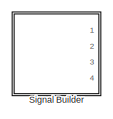
[diagram: PID_controller1 - part 1/3, top left region]
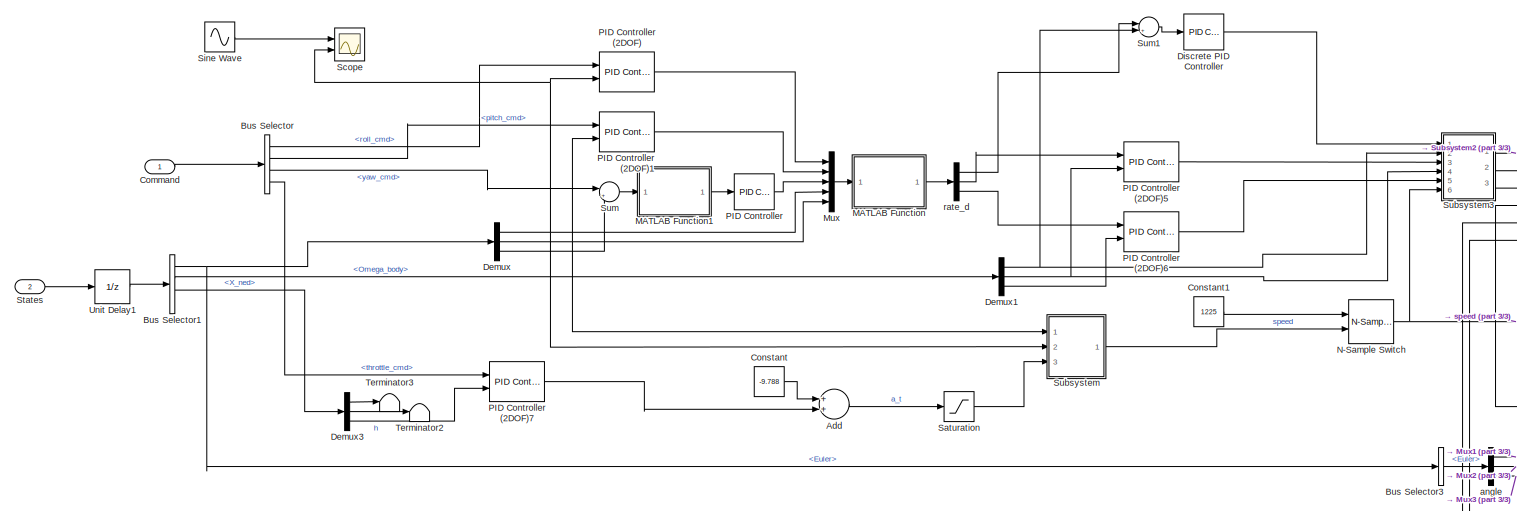
[diagram: PID_controller1 - part 2/3, middle left region]
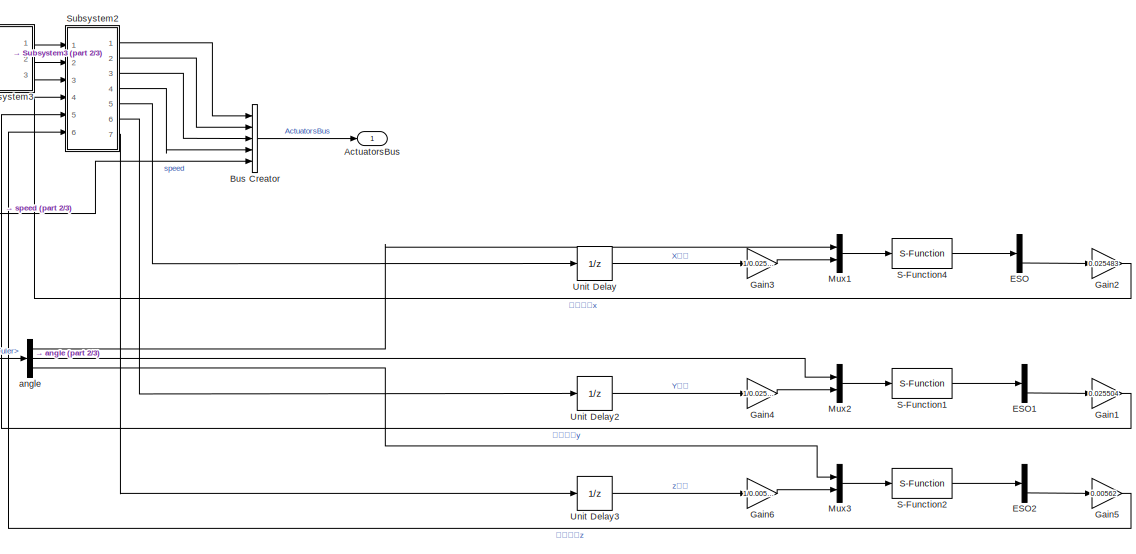
[diagram: PID_controller1 - part 3/3, bottom right region]
BLOCK [SubSystem] PID_controller1
  Ports = [2, 1]
  RequestExecContextInheritance = off
BLOCK [Outport] PID_controller1/ActuatorsBus
  IconDisplay = Port number
  OutDataTypeStr = Bus: ActuatorsBus
BLOCK [Sum] PID_controller1/Add
  InputSameDT = off
  OutDataTypeStr = Inherit: Inherit via internal rule
  Ports = [2, 1]
  SaturateOnIntegerOverflow = off
BLOCK [BusCreator] PID_controller1/Bus Creator
  DisplayOption = bar
  InheritFromInputs = on
  Inputs = 5
  OutDataTypeStr = Bus: ActuatorsBus
  Ports = [5, 1]
BLOCK [BusSelector] PID_controller1/Bus Selector
  OutputAsBus = off
  OutputSignals = roll_cmd,pitch_cmd,yaw_cmd,throttle_cmd
  Ports = [1, 4]
BLOCK [BusSelector] PID_controller1/Bus Selector1
  OutputAsBus = off
  OutputSignals = Euler,Omega_body,X_ned,V_ned
  Ports = [1, 4]
BLOCK [BusSelector] PID_controller1/Bus Selector3
  OutputAsBus = off
  OutputSignals = Euler
  Ports = [1, 1]
BLOCK [Inport] PID_controller1/Command
  IconDisplay = Port number
BLOCK [Constant] PID_controller1/Constant
  Value = -9.788
BLOCK [Constant] PID_controller1/Constant1
  Value = 1225
BLOCK [Demux] PID_controller1/Demux
  DisplayOption = bar
  Outputs = 3
  Ports = [1, 3]
BLOCK [Demux] PID_controller1/Demux1
  DisplayOption = bar
  Outputs = 3
  Ports = [1, 3]
BLOCK [Demux] PID_controller1/Demux3
  DisplayOption = bar
  Outputs = 3
  Ports = [1, 3]
BLOCK [Reference] PID_controller1/Discrete PID Controller  REF=simulink/Continuous/PID Controller
  Ports = [1, 1]
  SourceBlock = simulink/Continuous/PID Controller
  SourceProductBaseCode = SL
  SourceProductName = Simulink
  SourceType = PID 1dof
BLOCK [Demux] PID_controller1/ESO
  DisplayOption = bar
  Outputs = 3
  Ports = [1, 3]
BLOCK [Demux] PID_controller1/ESO1
  DisplayOption = bar
  Outputs = 3
  Ports = [1, 3]
BLOCK [Demux] PID_controller1/ESO2
  DisplayOption = bar
  Outputs = 3
  Ports = [1, 3]
BLOCK [Gain] PID_controller1/Gain1
  Gain = 0.025504
  OutDataTypeStr = Inherit: Inherit via internal rule
  ParamDataTypeStr = Inherit: Inherit via internal rule
  SaturateOnIntegerOverflow = off
BLOCK [Gain] PID_controller1/Gain2
  Gain = 0.025483
  OutDataTypeStr = Inherit: Inherit via internal rule
  ParamDataTypeStr = Inherit: Inherit via internal rule
  SaturateOnIntegerOverflow = off
BLOCK [Gain] PID_controller1/Gain3
  Gain = 1/0.025483
  OutDataTypeStr = Inherit: Inherit via internal rule
  ParamDataTypeStr = Inherit: Inherit via internal rule
  SaturateOnIntegerOverflow = off
BLOCK [Gain] PID_controller1/Gain4
  Gain = 1/0.025504
  OutDataTypeStr = Inherit: Inherit via internal rule
  ParamDataTypeStr = Inherit: Inherit via internal rule
  SaturateOnIntegerOverflow = off
BLOCK [Gain] PID_controller1/Gain5
  Gain = 0.00562
  OutDataTypeStr = Inherit: Inherit via internal rule
  ParamDataTypeStr = Inherit: Inherit via internal rule
  SaturateOnIntegerOverflow = off
BLOCK [Gain] PID_controller1/Gain6
  Gain = 1/0.00562
  OutDataTypeStr = Inherit: Inherit via internal rule
  ParamDataTypeStr = Inherit: Inherit via internal rule
  SaturateOnIntegerOverflow = off
BLOCK [SubSystem] PID_controller1/MATLAB Function
  ErrorFcn = Stateflow.Translate.translate
  PermitHierarchicalResolution = ExplicitOnly
  Ports = [1, 1]
  RequestExecContextInheritance = off
  SFBlockType = MATLAB Function
  TreatAsAtomicUnit = on
BLOCK [Demux] PID_controller1/MATLAB Function/ Demux 
  Outputs = 1
  Ports = [1, 1]
BLOCK [S-Function] PID_controller1/MATLAB Function/ SFunction 
  EnableBusSupport = on
  FunctionName = sf_sfun
  PortCounts = [1 2]
  Ports = [1, 2]
  SFcnIsStateOwnerBlock = off
  SFunctionDeploymentMode = off
  Tag = Stateflow S-Function ADRClibriry 25
BLOCK [Terminator] PID_controller1/MATLAB Function/ Terminator 
BLOCK [Inport] PID_controller1/MATLAB Function/u
  IconDisplay = Port number
BLOCK [Outport] PID_controller1/MATLAB Function/y
  IconDisplay = Port number
BLOCK [SubSystem] PID_controller1/MATLAB Function1
  ErrorFcn = Stateflow.Translate.translate
  PermitHierarchicalResolution = ExplicitOnly
  Ports = [1, 1]
  RequestExecContextInheritance = off
  SFBlockType = MATLAB Function
  TreatAsAtomicUnit = on
BLOCK [Demux] PID_controller1/MATLAB Function1/ Demux 
  Outputs = 1
  Ports = [1, 1]
BLOCK [S-Function] PID_controller1/MATLAB Function1/ SFunction 
  EnableBusSupport = on
  FunctionName = sf_sfun
  PortCounts = [1 2]
  Ports = [1, 2]
  SFcnIsStateOwnerBlock = off
  SFunctionDeploymentMode = off
  Tag = Stateflow S-Function ADRClibriry 26
BLOCK [Terminator] PID_controller1/MATLAB Function1/ Terminator 
BLOCK [Inport] PID_controller1/MATLAB Function1/u
  IconDisplay = Port number
BLOCK [Outport] PID_controller1/MATLAB Function1/y
  IconDisplay = Port number
BLOCK [Mux] PID_controller1/Mux
  DisplayOption = bar
  Inputs = 5
  Ports = [5, 1]
BLOCK [Mux] PID_controller1/Mux1
  DisplayOption = bar
  Inputs = 2
  Ports = [2, 1]
BLOCK [Mux] PID_controller1/Mux2
  DisplayOption = bar
  Inputs = 2
  Ports = [2, 1]
BLOCK [Mux] PID_controller1/Mux3
  DisplayOption = bar
  Inputs = 2
  Ports = [2, 1]
BLOCK [Reference] PID_controller1/N-Sample Switch  REF=dspswit3/N-Sample
Switch
  Ports = [2, 1]
  SourceBlock = dspswit3/N-Sample\nSwitch
  SourceProductBaseCode = DS
  SourceProductName = DSP System Toolbox
  SourceType = N-Sample Switch
BLOCK [Reference] PID_controller1/PID Controller  REF=simulink/Continuous/PID Controller
  Ports = [1, 1]
  SourceBlock = simulink/Continuous/PID Controller
  SourceProductBaseCode = SL
  SourceProductName = Simulink
  SourceType = PID 1dof
BLOCK [Reference] PID_controller1/PID Controller (2DOF)  REF=simulink/Continuous/PID Controller (2DOF)
  Ports = [2, 1]
  SourceBlock = simulink/Continuous/PID Controller (2DOF)
  SourceProductBaseCode = SL
  SourceProductName = Simulink
  SourceType = PID 2dof
BLOCK [Reference] PID_controller1/PID Controller (2DOF)1  REF=simulink/Continuous/PID Controller (2DOF)
  Ports = [2, 1]
  SourceBlock = simulink/Continuous/PID Controller (2DOF)
  SourceProductBaseCode = SL
  SourceProductName = Simulink
  SourceType = PID 2dof
BLOCK [Reference] PID_controller1/PID Controller (2DOF)5  REF=simulink/Continuous/PID Controller (2DOF)
  Ports = [2, 1]
  SourceBlock = simulink/Continuous/PID Controller (2DOF)
  SourceProductBaseCode = SL
  SourceProductName = Simulink
  SourceType = PID 2dof
BLOCK [Reference] PID_controller1/PID Controller (2DOF)6  REF=simulink/Continuous/PID Controller (2DOF)
  Ports = [2, 1]
  SourceBlock = simulink/Continuous/PID Controller (2DOF)
  SourceProductBaseCode = SL
  SourceProductName = Simulink
  SourceType = PID 2dof
BLOCK [Reference] PID_controller1/PID Controller (2DOF)7  REF=simulink/Continuous/PID Controller (2DOF)
  Ports = [2, 1]
  SourceBlock = simulink/Continuous/PID Controller (2DOF)
  SourceProductBaseCode = SL
  SourceProductName = Simulink
  SourceType = PID 2dof
BLOCK [S-Function] PID_controller1/S-Function1
  EnableBusSupport = off
  FunctionName = s_ESO
  Ports = [1, 1]
  SFcnIsStateOwnerBlock = off
  SFunctionDeploymentMode = off
BLOCK [S-Function] PID_controller1/S-Function2
  EnableBusSupport = off
  FunctionName = s_ESO
  Ports = [1, 1]
  SFcnIsStateOwnerBlock = off
  SFunctionDeploymentMode = off
BLOCK [S-Function] PID_controller1/S-Function4
  EnableBusSupport = off
  FunctionName = s_ESO
  Ports = [1, 1]
  SFcnIsStateOwnerBlock = off
  SFunctionDeploymentMode = off
BLOCK [Saturate] PID_controller1/Saturation
  InputPortMap = u0
  LowerLimit = -2*9.788
  Ports = [1, 1]
  UpperLimit = 0
BLOCK [Scope] PID_controller1/Scope
  Floating = off
  NumInputPorts = 2
  Ports = [2]
  ScopeSpecificationString = Simulink.scopes.TimeScopeBlockCfg('CurrentConfiguration', extmgr.ConfigurationSet(extmgr.Configuration('Core','General UI',true),extmgr.Configuration('Core','Source UI',true),extmgr.Configuration('Sources','WiredSimulink',true,'DataLoggingVariableName','ScopeData1','DataLoggingLimitDataPoints',true,'DataLoggingMaxPoints','500000'),extmgr.Configuration('Visuals','Time Domain',true,'SerializedDispla...<+1495ch>
BLOCK [SubSystem] PID_controller1/Signal Builder
  ClipboardFcn = sigbuilder_block('clipboard');
  CloseFcn = sigbuilder_block('close');
  ContinueFcn = sigbuilder_block('continue');
  CopyFcn = sigbuilder_block('copy');
  DeleteFcn = sigbuilder_block('delete');
  LoadFcn = sigbuilder_block('load');
  MaskHideContents = on
  ModelCloseFcn = sigbuilder_block('modelClose');
  NameChangeFcn = sigbuilder_block('namechange');
  OpenFcn = sigbuilder_block('open',[5.5 30 949 419 ]);
  PauseFcn = sigbuilder_block('pause');
  Ports = [0, 4]
  PreSaveFcn = sigbuilder_block('preSave');
  RequestExecContextInheritance = off
  StartFcn = sigbuilder_block('start');
  StopFcn = sigbuilder_block('stop');
  Tag = STV Subsys
BLOCK [Demux] PID_controller1/Signal Builder/Demux
  Ports = [1, 4]
  Tag = STV Demux
BLOCK [FromWorkspace] PID_controller1/Signal Builder/FromWs
  SampleTime = 0
  Tag = STV FromWs
  VariableName = tuvar
  ZeroCross = on
BLOCK [Outport] PID_controller1/Signal Builder/picth_cmd
  IconDisplay = Port number
  Port = 2
  Tag = STV Outport
BLOCK [Outport] PID_controller1/Signal Builder/roll_cmd
  IconDisplay = Port number
  Tag = STV Outport
BLOCK [Outport] PID_controller1/Signal Builder/throttle_cmd
  IconDisplay = Port number
  Port = 4
  Tag = STV Outport
BLOCK [Outport] PID_controller1/Signal Builder/yaw_cmd
  IconDisplay = Port number
  Port = 3
  Tag = STV Outport
BLOCK [Sin] PID_controller1/Sine Wave
  Amplitude = 0.2
  Frequency = 2*pi*1
  Ports = [0, 1]
  SampleTime = 0.01
BLOCK [Inport] PID_controller1/States
  IconDisplay = Port number
  OutDataTypeStr = Bus: StatesBus
  Port = 2
BLOCK [SubSystem] PID_controller1/Subsystem
  Ports = [3, 1]
  RequestExecContextInheritance = off
BLOCK [Product] PID_controller1/Subsystem/Divide
  InputSameDT = off
  Inputs = */
  OutDataTypeStr = Inherit: Inherit via internal rule
  Ports = [2, 1]
  RndMeth = Floor
  SaturateOnIntegerOverflow = off
BLOCK [Gain] PID_controller1/Subsystem/Gain
  Gain = -1225^2/9.788
  OutDataTypeStr = Inherit: Inherit via internal rule
  ParamDataTypeStr = Inherit: Inherit via internal rule
  SaturateOnIntegerOverflow = off
BLOCK [Inport] PID_controller1/Subsystem/In1
  IconDisplay = Port number
BLOCK [Inport] PID_controller1/Subsystem/In2
  IconDisplay = Port number
  Port = 2
BLOCK [Inport] PID_controller1/Subsystem/In3
  IconDisplay = Port number
  Port = 3
BLOCK [Product] PID_controller1/Subsystem/Product
  InputSameDT = off
  OutDataTypeStr = Inherit: Inherit via internal rule
  Ports = [2, 1]
  RndMeth = Floor
  SaturateOnIntegerOverflow = off
BLOCK [Saturate] PID_controller1/Subsystem/Saturation1
  InputPortMap = u0
  LowerLimit = 0.5
  Ports = [1, 1]
  UpperLimit = 1
BLOCK [Sqrt] PID_controller1/Subsystem/Sqrt
BLOCK [Trigonometry] PID_controller1/Subsystem/Trigonometric Function
  Operator = cos
  Ports = [1, 1]
BLOCK [Trigonometry] PID_controller1/Subsystem/Trigonometric Function1
  Operator = cos
  Ports = [1, 1]
BLOCK [Outport] PID_controller1/Subsystem/speed
  IconDisplay = Port number
BLOCK [SubSystem] PID_controller1/Subsystem2
  Ports = [6, 7]
  RequestExecContextInheritance = off
BLOCK [Demux] PID_controller1/Subsystem2/Demux3
  DisplayOption = bar
  Outputs = 7
  Ports = [1, 7]
BLOCK [Mux] PID_controller1/Subsystem2/Mux
  DisplayOption = bar
  Inputs = 6
  Ports = [6, 1]
BLOCK [S-Function] PID_controller1/Subsystem2/S-Function1
  EnableBusSupport = off
  FunctionName = s_Optim2
  Ports = [1, 1]
  SFcnIsStateOwnerBlock = off
  SFunctionDeploymentMode = off
BLOCK [Saturate] PID_controller1/Subsystem2/Saturation1
  InputPortMap = u0
  LowerLimit = -0.3491
  Ports = [1, 1]
  UpperLimit = 0.3491
BLOCK [Saturate] PID_controller1/Subsystem2/Saturation2
  InputPortMap = u0
  LowerLimit = -0.3491
  Ports = [1, 1]
  UpperLimit = 0.3491
BLOCK [Saturate] PID_controller1/Subsystem2/Saturation3
  InputPortMap = u0
  LowerLimit = -0.3491
  Ports = [1, 1]
  UpperLimit = 0.3491
BLOCK [Saturate] PID_controller1/Subsystem2/Saturation4
  InputPortMap = u0
  LowerLimit = -0.3491
  Ports = [1, 1]
  UpperLimit = 0.3491
BLOCK [Outport] PID_controller1/Subsystem2/c1
  IconDisplay = Port number
BLOCK [Outport] PID_controller1/Subsystem2/c2
  IconDisplay = Port number
  Port = 2
BLOCK [Outport] PID_controller1/Subsystem2/c3
  IconDisplay = Port number
  Port = 3
BLOCK [Outport] PID_controller1/Subsystem2/c4
  IconDisplay = Port number
  Port = 4
BLOCK [Inport] PID_controller1/Subsystem2/d_3
  IconDisplay = Port number
  Port = 6
BLOCK [Inport] PID_controller1/Subsystem2/u_1
  IconDisplay = Port number
BLOCK [Inport] PID_controller1/Subsystem2/u_2
  IconDisplay = Port number
  Port = 2
BLOCK [Inport] PID_controller1/Subsystem2/u_3
  IconDisplay = Port number
  Port = 3
BLOCK [Inport] PID_controller1/Subsystem2/u_4
  IconDisplay = Port number
  Port = 4
BLOCK [Inport] PID_controller1/Subsystem2/u_5
  IconDisplay = Port number
  Port = 5
BLOCK [Outport] PID_controller1/Subsystem2/ux
  IconDisplay = Port number
  Port = 5
BLOCK [Outport] PID_controller1/Subsystem2/uy
  IconDisplay = Port number
  Port = 6
BLOCK [Outport] PID_controller1/Subsystem2/uz
  IconDisplay = Port number
  Port = 7
BLOCK [SubSystem] PID_controller1/Subsystem3
  Ports = [6, 3]
  RequestExecContextInheritance = off
BLOCK [Sum] PID_controller1/Subsystem3/Add1
  InputSameDT = off
  OutDataTypeStr = Inherit: Inherit via internal rule
  Ports = [2, 1]
  SaturateOnIntegerOverflow = off
BLOCK [Sum] PID_controller1/Subsystem3/Add2
  InputSameDT = off
  Inputs = +-
  OutDataTypeStr = Inherit: Inherit via internal rule
  Ports = [2, 1]
  SaturateOnIntegerOverflow = off
BLOCK [Sum] PID_controller1/Subsystem3/Add3
  InputSameDT = off
  Inputs = +-
  OutDataTypeStr = Inherit: Inherit via internal rule
  Ports = [2, 1]
  SaturateOnIntegerOverflow = off
BLOCK [Constant] PID_controller1/Subsystem3/Constant1
  Value = 0.000029
BLOCK [Constant] PID_controller1/Subsystem3/Constant2
  Value = 0.04238
BLOCK [Product] PID_controller1/Subsystem3/Product
  InputSameDT = off
  OutDataTypeStr = Inherit: Inherit via internal rule
  Ports = [2, 1]
  RndMeth = Floor
  SaturateOnIntegerOverflow = off
BLOCK [Product] PID_controller1/Subsystem3/Product1
  InputSameDT = off
  OutDataTypeStr = Inherit: Inherit via internal rule
  Ports = [2, 1]
  RndMeth = Floor
  SaturateOnIntegerOverflow = off
BLOCK [Product] PID_controller1/Subsystem3/Product2
  InputSameDT = off
  OutDataTypeStr = Inherit: Inherit via internal rule
  Ports = [2, 1]
  RndMeth = Floor
  SaturateOnIntegerOverflow = off
BLOCK [Product] PID_controller1/Subsystem3/Product3
  InputSameDT = off
  OutDataTypeStr = Inherit: Inherit via internal rule
  Ports = [2, 1]
  RndMeth = Floor
  SaturateOnIntegerOverflow = off
BLOCK [Inport] PID_controller1/Subsystem3/p
  IconDisplay = Port number
  Port = 2
BLOCK [Inport] PID_controller1/Subsystem3/q
  IconDisplay = Port number
  Port = 4
BLOCK [Inport] PID_controller1/Subsystem3/speed
  IconDisplay = Port number
  Port = 6
BLOCK [Outport] PID_controller1/Subsystem3/u_1
  IconDisplay = Port number
BLOCK [Outport] PID_controller1/Subsystem3/u_2
  IconDisplay = Port number
  Port = 2
BLOCK [Outport] PID_controller1/Subsystem3/u_3
  IconDisplay = Port number
  Port = 3
BLOCK [Inport] PID_controller1/Subsystem3/u_p
  IconDisplay = Port number
BLOCK [Inport] PID_controller1/Subsystem3/u_q
  IconDisplay = Port number
  Port = 3
BLOCK [Inport] PID_controller1/Subsystem3/u_r
  IconDisplay = Port number
  Port = 5
BLOCK [Sum] PID_controller1/Sum
  IconShape = round
  InputSameDT = off
  Inputs = |+-
  OutDataTypeStr = Inherit: Inherit via internal rule
  Ports = [2, 1]
  SaturateOnIntegerOverflow = off
BLOCK [Sum] PID_controller1/Sum1
  IconShape = round
  InputSameDT = off
  Inputs = |+-
  OutDataTypeStr = Inherit: Inherit via internal rule
  Ports = [2, 1]
  SaturateOnIntegerOverflow = off
BLOCK [Terminator] PID_controller1/Terminator2
BLOCK [Terminator] PID_controller1/Terminator3
BLOCK [UnitDelay] PID_controller1/Unit Delay
  InputProcessing = Elements as channels (sample based)
  SampleTime = -1
BLOCK [UnitDelay] PID_controller1/Unit Delay1
  InputProcessing = Elements as channels (sample based)
  SampleTime = -1
BLOCK [UnitDelay] PID_controller1/Unit Delay2
  InputProcessing = Elements as channels (sample based)
  SampleTime = -1
BLOCK [UnitDelay] PID_controller1/Unit Delay3
  InputProcessing = Elements as channels (sample based)
  SampleTime = -1
BLOCK [Demux] PID_controller1/angle
  DisplayOption = bar
  Outputs = 3
  Ports = [1, 3]
BLOCK [Demux] PID_controller1/rate_d
  DisplayOption = bar
  Outputs = 3
  Ports = [1, 3]
BLOCK [Terminator] Terminator
BLOCK [Terminator] Terminator2
BLOCK [Terminator] Terminator3
BLOCK [Terminator] Terminator4
ANNOTATION ADRC_controller_LSEF/h_ADRC: 控制器输出为升力提供的加速度
ANNOTATION ADRC_controller_LSEF/h_ADRC2: 控制器输出为NED下加速度
ANNOTATION ADRC_controller_LSEF/h_ADRC3: 控制器输出为升力
ANNOTATION ADRC_controller_NLSEF/h_ADRC: 控制器输出为升力提供的加速度
ANNOTATION ADRC_controller_NLSEF/h_ADRC2: 控制器输出为NED下加速度
ANNOTATION ADRC_controller_NLSEF/h_ADRC3: 控制器输出为升力
ANNOTATION ADRC_controller_NLSEF1/h_ADRC: 控制器输出为升力提供的加速度
ANNOTATION ADRC_controller_NLSEF1/h_ADRC2: 控制器输出为NED下加速度
ANNOTATION ADRC_controller_NLSEF1/h_ADRC3: 控制器输出为升力
LINE ADRC_controller_LSEF/Bus Creator:1 -> ADRC_controller_LSEF/ActuatorsBus:1
LINE ADRC_controller_LSEF/Bus Selector1:1 -> ADRC_controller_LSEF/Demux1:1
LINE ADRC_controller_LSEF/Bus Selector1:2 -> ADRC_controller_LSEF/Demux:1
LINE ADRC_controller_LSEF/Bus Selector:1 -> ADRC_controller_LSEF/roll_ADRC:2
LINE ADRC_controller_LSEF/Bus Selector:2 -> ADRC_controller_LSEF/pitch_ADRC:2
LINE ADRC_controller_LSEF/Bus Selector:3 -> ADRC_controller_LSEF/yaw_ADRC:2
LINE ADRC_controller_LSEF/Bus Selector:4 -> ADRC_controller_LSEF/h_ADRC:2
LINE ADRC_controller_LSEF/Command:1 -> ADRC_controller_LSEF/Bus Selector:1
LINE ADRC_controller_LSEF/Constant1:1 -> ADRC_controller_LSEF/N-Sample Switch:1
LINE ADRC_controller_LSEF/Demux1:1 -> ADRC_controller_LSEF/Subsystem3:4
LINE ADRC_controller_LSEF/Demux1:2 -> ADRC_controller_LSEF/Subsystem3:5
LINE ADRC_controller_LSEF/Demux1:3 -> ADRC_controller_LSEF/Terminator1:1
LINE ADRC_controller_LSEF/Demux:1 -> ADRC_controller_LSEF/Subsystem:1
LINE ADRC_controller_LSEF/Demux:2 -> ADRC_controller_LSEF/Subsystem:2
LINE ADRC_controller_LSEF/Demux:3 -> ADRC_controller_LSEF/Terminator:1
NET ADRC_controller_LSEF/N-Sample Switch:1 -> ADRC_controller_LSEF/Bus Creator:5, ADRC_controller_LSEF/Subsystem3:6
LINE ADRC_controller_LSEF/Saturation:1 -> ADRC_controller_LSEF/Subsystem:3
LINE ADRC_controller_LSEF/States:1 -> ADRC_controller_LSEF/Unit Delay2:1
LINE ADRC_controller_LSEF/Subsystem/Divide:1 -> ADRC_controller_LSEF/Subsystem/Gain:1
LINE ADRC_controller_LSEF/Subsystem/Gain:1 -> ADRC_controller_LSEF/Subsystem/Sqrt:1
LINE ADRC_controller_LSEF/Subsystem/In1:1 -> ADRC_controller_LSEF/Subsystem/Trigonometric Function1:1
LINE ADRC_controller_LSEF/Subsystem/In2:1 -> ADRC_controller_LSEF/Subsystem/Trigonometric Function:1
LINE ADRC_controller_LSEF/Subsystem/In3:1 -> ADRC_controller_LSEF/Subsystem/Divide:1
LINE ADRC_controller_LSEF/Subsystem/Product:1 -> ADRC_controller_LSEF/Subsystem/Saturation1:1
LINE ADRC_controller_LSEF/Subsystem/Saturation1:1 -> ADRC_controller_LSEF/Subsystem/Divide:2
LINE ADRC_controller_LSEF/Subsystem/Sqrt:1 -> ADRC_controller_LSEF/Subsystem/speed:1
LINE ADRC_controller_LSEF/Subsystem/Trigonometric Function1:1 -> ADRC_controller_LSEF/Subsystem/Product:2
LINE ADRC_controller_LSEF/Subsystem/Trigonometric Function:1 -> ADRC_controller_LSEF/Subsystem/Product:1
LINE ADRC_controller_LSEF/Subsystem2/Demux3:1 -> ADRC_controller_LSEF/Subsystem2/Saturation1:1
LINE ADRC_controller_LSEF/Subsystem2/Demux3:2 -> ADRC_controller_LSEF/Subsystem2/Saturation2:1
LINE ADRC_controller_LSEF/Subsystem2/Demux3:3 -> ADRC_controller_LSEF/Subsystem2/Saturation3:1
LINE ADRC_controller_LSEF/Subsystem2/Demux3:4 -> ADRC_controller_LSEF/Subsystem2/Saturation4:1
LINE ADRC_controller_LSEF/Subsystem2/MATLAB Function:1 -> ADRC_controller_LSEF/Subsystem2/Demux3:1
LINE ADRC_controller_LSEF/Subsystem2/Mux:1 -> ADRC_controller_LSEF/Subsystem2/MATLAB Function:1
LINE ADRC_controller_LSEF/Subsystem2/Saturation1:1 -> ADRC_controller_LSEF/Subsystem2/c1:1
LINE ADRC_controller_LSEF/Subsystem2/Saturation2:1 -> ADRC_controller_LSEF/Subsystem2/c2:1
LINE ADRC_controller_LSEF/Subsystem2/Saturation3:1 -> ADRC_controller_LSEF/Subsystem2/c3:1
LINE ADRC_controller_LSEF/Subsystem2/Saturation4:1 -> ADRC_controller_LSEF/Subsystem2/c4:1
LINE ADRC_controller_LSEF/Subsystem2/u_1:1 -> ADRC_controller_LSEF/Subsystem2/Mux:1
LINE ADRC_controller_LSEF/Subsystem2/u_2:1 -> ADRC_controller_LSEF/Subsystem2/Mux:2
LINE ADRC_controller_LSEF/Subsystem2/u_3:1 -> ADRC_controller_LSEF/Subsystem2/Mux:3
LINE ADRC_controller_LSEF/Subsystem2:1 -> ADRC_controller_LSEF/Bus Creator:1
LINE ADRC_controller_LSEF/Subsystem2:2 -> ADRC_controller_LSEF/Bus Creator:2
LINE ADRC_controller_LSEF/Subsystem2:3 -> ADRC_controller_LSEF/Bus Creator:3
LINE ADRC_controller_LSEF/Subsystem2:4 -> ADRC_controller_LSEF/Bus Creator:4
LINE ADRC_controller_LSEF/Subsystem3/Add1:1 -> ADRC_controller_LSEF/Subsystem3/u_1:1
LINE ADRC_controller_LSEF/Subsystem3/Add2:1 -> ADRC_controller_LSEF/Subsystem3/u_2:1
LINE ADRC_controller_LSEF/Subsystem3/Add3:1 -> ADRC_controller_LSEF/Subsystem3/u_3:1
NET ADRC_controller_LSEF/Subsystem3/Constant1:1 -> ADRC_controller_LSEF/Subsystem3/Product1:1, ADRC_controller_LSEF/Subsystem3/Product:2
LINE ADRC_controller_LSEF/Subsystem3/Constant2:1 -> ADRC_controller_LSEF/Subsystem3/Add3:2
LINE ADRC_controller_LSEF/Subsystem3/Product1:1 -> ADRC_controller_LSEF/Subsystem3/Product2:1
LINE ADRC_controller_LSEF/Subsystem3/Product2:1 -> ADRC_controller_LSEF/Subsystem3/Add2:2
LINE ADRC_controller_LSEF/Subsystem3/Product3:1 -> ADRC_controller_LSEF/Subsystem3/Add1:1
LINE ADRC_controller_LSEF/Subsystem3/Product:1 -> ADRC_controller_LSEF/Subsystem3/Product3:1
LINE ADRC_controller_LSEF/Subsystem3/p:1 -> ADRC_controller_LSEF/Subsystem3/Product1:2
LINE ADRC_controller_LSEF/Subsystem3/q:1 -> ADRC_controller_LSEF/Subsystem3/Product:1
NET ADRC_controller_LSEF/Subsystem3/speed:1 -> ADRC_controller_LSEF/Subsystem3/Product2:2, ADRC_controller_LSEF/Subsystem3/Product3:2
LINE ADRC_controller_LSEF/Subsystem3/u_p:1 -> ADRC_controller_LSEF/Subsystem3/Add1:2
LINE ADRC_controller_LSEF/Subsystem3/u_q:1 -> ADRC_controller_LSEF/Subsystem3/Add2:1
LINE ADRC_controller_LSEF/Subsystem3/u_r:1 -> ADRC_controller_LSEF/Subsystem3/Add3:1
LINE ADRC_controller_LSEF/Subsystem3:1 -> ADRC_controller_LSEF/Subsystem2:1
LINE ADRC_controller_LSEF/Subsystem3:2 -> ADRC_controller_LSEF/Subsystem2:2
LINE ADRC_controller_LSEF/Subsystem3:3 -> ADRC_controller_LSEF/Subsystem2:3
LINE ADRC_controller_LSEF/Subsystem:1 -> ADRC_controller_LSEF/N-Sample Switch:2
NET ADRC_controller_LSEF/Unit Delay2:1 -> ADRC_controller_LSEF/Bus Selector1:1, ADRC_controller_LSEF/h_ADRC:1, ADRC_controller_LSEF/pitch_ADRC:1, ADRC_controller_LSEF/roll_ADRC:1, ADRC_controller_LSEF/yaw_ADRC:1
LINE ADRC_controller_LSEF/h_ADRC/<throttle_cmd>:1 -> ADRC_controller_LSEF/h_ADRC/RT:1
NET ADRC_controller_LSEF/h_ADRC/Add:1 -> ADRC_controller_LSEF/h_ADRC/Gain3:1, ADRC_controller_LSEF/h_ADRC/a_t:1
LINE ADRC_controller_LSEF/h_ADRC/Bus Selector1:1 -> ADRC_controller_LSEF/h_ADRC/x:1
NET ADRC_controller_LSEF/h_ADRC/Constant:1 -> ADRC_controller_LSEF/h_ADRC/Sum2:1, ADRC_controller_LSEF/h_ADRC/Sum3:2
LINE ADRC_controller_LSEF/h_ADRC/Demux:1 -> ADRC_controller_LSEF/h_ADRC/Sum:1
LINE ADRC_controller_LSEF/h_ADRC/Demux:2 -> ADRC_controller_LSEF/h_ADRC/Sum1:1
LINE ADRC_controller_LSEF/h_ADRC/ESO:1 -> ADRC_controller_LSEF/h_ADRC/Sum:2
LINE ADRC_controller_LSEF/h_ADRC/ESO:2 -> ADRC_controller_LSEF/h_ADRC/Sum1:2
LINE ADRC_controller_LSEF/h_ADRC/ESO:3 -> ADRC_controller_LSEF/h_ADRC/Sum3:1
LINE ADRC_controller_LSEF/h_ADRC/Gain1:1 -> ADRC_controller_LSEF/h_ADRC/Add:2
NET ADRC_controller_LSEF/h_ADRC/Gain2:1 -> ADRC_controller_LSEF/h_ADRC/Add:3, ADRC_controller_LSEF/h_ADRC/Scope3:1
LINE ADRC_controller_LSEF/h_ADRC/Gain3:1 -> ADRC_controller_LSEF/h_ADRC/Sum2:2
LINE ADRC_controller_LSEF/h_ADRC/Gain:1 -> ADRC_controller_LSEF/h_ADRC/Add:1
LINE ADRC_controller_LSEF/h_ADRC/Mux:1 -> ADRC_controller_LSEF/h_ADRC/S-Function4:1
LINE ADRC_controller_LSEF/h_ADRC/RT1:1 -> ADRC_controller_LSEF/h_ADRC/Demux:1
LINE ADRC_controller_LSEF/h_ADRC/RT:1 -> ADRC_controller_LSEF/h_ADRC/S-Function:1
LINE ADRC_controller_LSEF/h_ADRC/S-Function4:1 -> ADRC_controller_LSEF/h_ADRC/ESO:1
LINE ADRC_controller_LSEF/h_ADRC/S-Function:1 -> ADRC_controller_LSEF/h_ADRC/RT1:1
LINE ADRC_controller_LSEF/h_ADRC/States:1 -> ADRC_controller_LSEF/h_ADRC/Bus Selector1:1
LINE ADRC_controller_LSEF/h_ADRC/Sum1:1 -> ADRC_controller_LSEF/h_ADRC/Gain1:1
LINE ADRC_controller_LSEF/h_ADRC/Sum2:1 -> ADRC_controller_LSEF/h_ADRC/Mux:2
LINE ADRC_controller_LSEF/h_ADRC/Sum3:1 -> ADRC_controller_LSEF/h_ADRC/Gain2:1
LINE ADRC_controller_LSEF/h_ADRC/Sum:1 -> ADRC_controller_LSEF/h_ADRC/Gain:1
LINE ADRC_controller_LSEF/h_ADRC/x:1 -> ADRC_controller_LSEF/h_ADRC/Terminator1:1
LINE ADRC_controller_LSEF/h_ADRC/x:2 -> ADRC_controller_LSEF/h_ADRC/Terminator:1
LINE ADRC_controller_LSEF/h_ADRC/x:3 -> ADRC_controller_LSEF/h_ADRC/Mux:1
LINE ADRC_controller_LSEF/h_ADRC2/<throttle_cmd>:1 -> ADRC_controller_LSEF/h_ADRC2/RT:1
LINE ADRC_controller_LSEF/h_ADRC2/Add2:1 -> ADRC_controller_LSEF/h_ADRC2/a_t:1
NET ADRC_controller_LSEF/h_ADRC2/Add:1 -> ADRC_controller_LSEF/h_ADRC2/Add2:2, ADRC_controller_LSEF/h_ADRC2/Gain3:1
LINE ADRC_controller_LSEF/h_ADRC2/Bus Selector1:1 -> ADRC_controller_LSEF/h_ADRC2/x:1
LINE ADRC_controller_LSEF/h_ADRC2/Demux:1 -> ADRC_controller_LSEF/h_ADRC2/Sum:1
LINE ADRC_controller_LSEF/h_ADRC2/Demux:2 -> ADRC_controller_LSEF/h_ADRC2/Sum1:1
LINE ADRC_controller_LSEF/h_ADRC2/ESO:1 -> ADRC_controller_LSEF/h_ADRC2/Sum:2
LINE ADRC_controller_LSEF/h_ADRC2/ESO:2 -> ADRC_controller_LSEF/h_ADRC2/Sum1:2
LINE ADRC_controller_LSEF/h_ADRC2/ESO:3 -> ADRC_controller_LSEF/h_ADRC2/Sum3:1
LINE ADRC_controller_LSEF/h_ADRC2/Gain1:1 -> ADRC_controller_LSEF/h_ADRC2/Add:2
NET ADRC_controller_LSEF/h_ADRC2/Gain2:1 -> ADRC_controller_LSEF/h_ADRC2/Add:3, ADRC_controller_LSEF/h_ADRC2/Scope3:1
LINE ADRC_controller_LSEF/h_ADRC2/Gain3:1 -> ADRC_controller_LSEF/h_ADRC2/Sum2:2
LINE ADRC_controller_LSEF/h_ADRC2/Gain:1 -> ADRC_controller_LSEF/h_ADRC2/Add:1
LINE ADRC_controller_LSEF/h_ADRC2/Mux:1 -> ADRC_controller_LSEF/h_ADRC2/S-Function4:1
LINE ADRC_controller_LSEF/h_ADRC2/RT1:1 -> ADRC_controller_LSEF/h_ADRC2/Demux:1
LINE ADRC_controller_LSEF/h_ADRC2/RT:1 -> ADRC_controller_LSEF/h_ADRC2/S-Function:1
LINE ADRC_controller_LSEF/h_ADRC2/S-Function4:1 -> ADRC_controller_LSEF/h_ADRC2/ESO:1
LINE ADRC_controller_LSEF/h_ADRC2/S-Function:1 -> ADRC_controller_LSEF/h_ADRC2/RT1:1
LINE ADRC_controller_LSEF/h_ADRC2/States:1 -> ADRC_controller_LSEF/h_ADRC2/Bus Selector1:1
LINE ADRC_controller_LSEF/h_ADRC2/Sum1:1 -> ADRC_controller_LSEF/h_ADRC2/Gain1:1
LINE ADRC_controller_LSEF/h_ADRC2/Sum2:1 -> ADRC_controller_LSEF/h_ADRC2/Mux:2
LINE ADRC_controller_LSEF/h_ADRC2/Sum3:1 -> ADRC_controller_LSEF/h_ADRC2/Gain2:1
LINE ADRC_controller_LSEF/h_ADRC2/Sum:1 -> ADRC_controller_LSEF/h_ADRC2/Gain:1
LINE ADRC_controller_LSEF/h_ADRC2/g:1 -> ADRC_controller_LSEF/h_ADRC2/Add2:1
LINE ADRC_controller_LSEF/h_ADRC2/x:1 -> ADRC_controller_LSEF/h_ADRC2/Terminator1:1
LINE ADRC_controller_LSEF/h_ADRC2/x:2 -> ADRC_controller_LSEF/h_ADRC2/Terminator:1
LINE ADRC_controller_LSEF/h_ADRC2/x:3 -> ADRC_controller_LSEF/h_ADRC2/Mux:1
LINE ADRC_controller_LSEF/h_ADRC3/<throttle_cmd>:1 -> ADRC_controller_LSEF/h_ADRC3/RT:1
NET ADRC_controller_LSEF/h_ADRC3/Add:1 -> ADRC_controller_LSEF/h_ADRC3/Gain3:1, ADRC_controller_LSEF/h_ADRC3/Gain4:1
LINE ADRC_controller_LSEF/h_ADRC3/Bus Selector1:1 -> ADRC_controller_LSEF/h_ADRC3/x:1
NET ADRC_controller_LSEF/h_ADRC3/Constant:1 -> ADRC_controller_LSEF/h_ADRC3/Sum2:1, ADRC_controller_LSEF/h_ADRC3/Sum3:2
LINE ADRC_controller_LSEF/h_ADRC3/Demux:1 -> ADRC_controller_LSEF/h_ADRC3/Sum:1
LINE ADRC_controller_LSEF/h_ADRC3/Demux:2 -> ADRC_controller_LSEF/h_ADRC3/Sum1:1
LINE ADRC_controller_LSEF/h_ADRC3/ESO:1 -> ADRC_controller_LSEF/h_ADRC3/Sum:2
LINE ADRC_controller_LSEF/h_ADRC3/ESO:2 -> ADRC_controller_LSEF/h_ADRC3/Sum1:2
LINE ADRC_controller_LSEF/h_ADRC3/ESO:3 -> ADRC_controller_LSEF/h_ADRC3/Sum3:1
LINE ADRC_controller_LSEF/h_ADRC3/Gain1:1 -> ADRC_controller_LSEF/h_ADRC3/Add:2
LINE ADRC_controller_LSEF/h_ADRC3/Gain2:1 -> ADRC_controller_LSEF/h_ADRC3/Add:3
LINE ADRC_controller_LSEF/h_ADRC3/Gain3:1 -> ADRC_controller_LSEF/h_ADRC3/Sum2:2
LINE ADRC_controller_LSEF/h_ADRC3/Gain4:1 -> ADRC_controller_LSEF/h_ADRC3/a_t:1
LINE ADRC_controller_LSEF/h_ADRC3/Gain:1 -> ADRC_controller_LSEF/h_ADRC3/Add:1
LINE ADRC_controller_LSEF/h_ADRC3/Mux:1 -> ADRC_controller_LSEF/h_ADRC3/S-Function4:1
LINE ADRC_controller_LSEF/h_ADRC3/RT1:1 -> ADRC_controller_LSEF/h_ADRC3/Demux:1
LINE ADRC_controller_LSEF/h_ADRC3/RT:1 -> ADRC_controller_LSEF/h_ADRC3/S-Function:1
LINE ADRC_controller_LSEF/h_ADRC3/S-Function4:1 -> ADRC_controller_LSEF/h_ADRC3/ESO:1
LINE ADRC_controller_LSEF/h_ADRC3/S-Function:1 -> ADRC_controller_LSEF/h_ADRC3/RT1:1
LINE ADRC_controller_LSEF/h_ADRC3/States:1 -> ADRC_controller_LSEF/h_ADRC3/Bus Selector1:1
LINE ADRC_controller_LSEF/h_ADRC3/Sum1:1 -> ADRC_controller_LSEF/h_ADRC3/Gain1:1
LINE ADRC_controller_LSEF/h_ADRC3/Sum2:1 -> ADRC_controller_LSEF/h_ADRC3/Mux:2
LINE ADRC_controller_LSEF/h_ADRC3/Sum3:1 -> ADRC_controller_LSEF/h_ADRC3/Gain2:1
LINE ADRC_controller_LSEF/h_ADRC3/Sum:1 -> ADRC_controller_LSEF/h_ADRC3/Gain:1
LINE ADRC_controller_LSEF/h_ADRC3/x:1 -> ADRC_controller_LSEF/h_ADRC3/Terminator1:1
LINE ADRC_controller_LSEF/h_ADRC3/x:2 -> ADRC_controller_LSEF/h_ADRC3/Terminator:1
LINE ADRC_controller_LSEF/h_ADRC3/x:3 -> ADRC_controller_LSEF/h_ADRC3/Mux:1
LINE ADRC_controller_LSEF/h_ADRC:1 -> ADRC_controller_LSEF/Saturation:1
LINE ADRC_controller_LSEF/pitch_ADRC/<pitch_cmd>:1 -> ADRC_controller_LSEF/pitch_ADRC/RT:1
NET ADRC_controller_LSEF/pitch_ADRC/Add1:1 -> ADRC_controller_LSEF/pitch_ADRC/Gain5:1, ADRC_controller_LSEF/pitch_ADRC/u_q:1
LINE ADRC_controller_LSEF/pitch_ADRC/Bus Selector1:1 -> ADRC_controller_LSEF/pitch_ADRC/angle:1
LINE ADRC_controller_LSEF/pitch_ADRC/Demux:1 -> ADRC_controller_LSEF/pitch_ADRC/Sum:1
LINE ADRC_controller_LSEF/pitch_ADRC/Demux:2 -> ADRC_controller_LSEF/pitch_ADRC/Sum1:1
LINE ADRC_controller_LSEF/pitch_ADRC/ESO:1 -> ADRC_controller_LSEF/pitch_ADRC/Sum:2
LINE ADRC_controller_LSEF/pitch_ADRC/ESO:2 -> ADRC_controller_LSEF/pitch_ADRC/Sum1:2
LINE ADRC_controller_LSEF/pitch_ADRC/ESO:3 -> ADRC_controller_LSEF/pitch_ADRC/Gain4:1
LINE ADRC_controller_LSEF/pitch_ADRC/Gain1:1 -> ADRC_controller_LSEF/pitch_ADRC/Add1:2
LINE ADRC_controller_LSEF/pitch_ADRC/Gain4:1 -> ADRC_controller_LSEF/pitch_ADRC/Add1:3
LINE ADRC_controller_LSEF/pitch_ADRC/Gain5:1 -> ADRC_controller_LSEF/pitch_ADRC/Mux:2
LINE ADRC_controller_LSEF/pitch_ADRC/Gain:1 -> ADRC_controller_LSEF/pitch_ADRC/Add1:1
LINE ADRC_controller_LSEF/pitch_ADRC/Mux:1 -> ADRC_controller_LSEF/pitch_ADRC/S-Function4:1
LINE ADRC_controller_LSEF/pitch_ADRC/RT1:1 -> ADRC_controller_LSEF/pitch_ADRC/Demux:1
LINE ADRC_controller_LSEF/pitch_ADRC/RT:1 -> ADRC_controller_LSEF/pitch_ADRC/S-Function:1
LINE ADRC_controller_LSEF/pitch_ADRC/S-Function4:1 -> ADRC_controller_LSEF/pitch_ADRC/ESO:1
LINE ADRC_controller_LSEF/pitch_ADRC/S-Function:1 -> ADRC_controller_LSEF/pitch_ADRC/RT1:1
LINE ADRC_controller_LSEF/pitch_ADRC/States:1 -> ADRC_controller_LSEF/pitch_ADRC/Bus Selector1:1
LINE ADRC_controller_LSEF/pitch_ADRC/Sum1:1 -> ADRC_controller_LSEF/pitch_ADRC/Gain1:1
LINE ADRC_controller_LSEF/pitch_ADRC/Sum:1 -> ADRC_controller_LSEF/pitch_ADRC/Gain:1
LINE ADRC_controller_LSEF/pitch_ADRC/angle:1 -> ADRC_controller_LSEF/pitch_ADRC/Terminator:1
LINE ADRC_controller_LSEF/pitch_ADRC/angle:2 -> ADRC_controller_LSEF/pitch_ADRC/Mux:1
LINE ADRC_controller_LSEF/pitch_ADRC/angle:3 -> ADRC_controller_LSEF/pitch_ADRC/Terminator1:1
LINE ADRC_controller_LSEF/pitch_ADRC:1 -> ADRC_controller_LSEF/Subsystem3:2
NET ADRC_controller_LSEF/roll_ADRC/<roll_cmd>:1 -> ADRC_controller_LSEF/roll_ADRC/RT:1, ADRC_controller_LSEF/roll_ADRC/Scope:1
NET ADRC_controller_LSEF/roll_ADRC/Add:1 -> ADRC_controller_LSEF/roll_ADRC/Gain3:1, ADRC_controller_LSEF/roll_ADRC/u_p :1
LINE ADRC_controller_LSEF/roll_ADRC/Bus Selector1:1 -> ADRC_controller_LSEF/roll_ADRC/angle:1
NET ADRC_controller_LSEF/roll_ADRC/ESO:1 -> ADRC_controller_LSEF/roll_ADRC/Scope2:1, ADRC_controller_LSEF/roll_ADRC/Sum:2
LINE ADRC_controller_LSEF/roll_ADRC/ESO:2 -> ADRC_controller_LSEF/roll_ADRC/Sum1:2
LINE ADRC_controller_LSEF/roll_ADRC/ESO:3 -> ADRC_controller_LSEF/roll_ADRC/Gain2:1
LINE ADRC_controller_LSEF/roll_ADRC/Gain1:1 -> ADRC_controller_LSEF/roll_ADRC/Add:2
LINE ADRC_controller_LSEF/roll_ADRC/Gain2:1 -> ADRC_controller_LSEF/roll_ADRC/Add:3
LINE ADRC_controller_LSEF/roll_ADRC/Gain3:1 -> ADRC_controller_LSEF/roll_ADRC/Mux:2
LINE ADRC_controller_LSEF/roll_ADRC/Gain:1 -> ADRC_controller_LSEF/roll_ADRC/Add:1
LINE ADRC_controller_LSEF/roll_ADRC/Mux:1 -> ADRC_controller_LSEF/roll_ADRC/S-Function4:1
LINE ADRC_controller_LSEF/roll_ADRC/RT1:1 -> ADRC_controller_LSEF/roll_ADRC/TD:1
LINE ADRC_controller_LSEF/roll_ADRC/RT:1 -> ADRC_controller_LSEF/roll_ADRC/S-Function:1
LINE ADRC_controller_LSEF/roll_ADRC/S-Function4:1 -> ADRC_controller_LSEF/roll_ADRC/ESO:1
LINE ADRC_controller_LSEF/roll_ADRC/S-Function:1 -> ADRC_controller_LSEF/roll_ADRC/RT1:1
LINE ADRC_controller_LSEF/roll_ADRC/States:1 -> ADRC_controller_LSEF/roll_ADRC/Bus Selector1:1
LINE ADRC_controller_LSEF/roll_ADRC/Sum1:1 -> ADRC_controller_LSEF/roll_ADRC/Gain1:1
LINE ADRC_controller_LSEF/roll_ADRC/Sum:1 -> ADRC_controller_LSEF/roll_ADRC/Gain:1
NET ADRC_controller_LSEF/roll_ADRC/TD:1 -> ADRC_controller_LSEF/roll_ADRC/Scope:2, ADRC_controller_LSEF/roll_ADRC/Sum:1
NET ADRC_controller_LSEF/roll_ADRC/TD:2 -> ADRC_controller_LSEF/roll_ADRC/Scope1:1, ADRC_controller_LSEF/roll_ADRC/Sum1:1
NET ADRC_controller_LSEF/roll_ADRC/angle:1 -> ADRC_controller_LSEF/roll_ADRC/Mux:1, ADRC_controller_LSEF/roll_ADRC/Scope2:2
LINE ADRC_controller_LSEF/roll_ADRC/angle:2 -> ADRC_controller_LSEF/roll_ADRC/Terminator:1
LINE ADRC_controller_LSEF/roll_ADRC/angle:3 -> ADRC_controller_LSEF/roll_ADRC/Terminator1:1
LINE ADRC_controller_LSEF/roll_ADRC:1 -> ADRC_controller_LSEF/Subsystem3:1
NET ADRC_controller_LSEF/yaw_ADRC/<yaw_cmd>:1 -> ADRC_controller_LSEF/yaw_ADRC/RT:1, ADRC_controller_LSEF/yaw_ADRC/Scope:2
NET ADRC_controller_LSEF/yaw_ADRC/Add:1 -> ADRC_controller_LSEF/yaw_ADRC/Gain3:1, ADRC_controller_LSEF/yaw_ADRC/Scope3:1, ADRC_controller_LSEF/yaw_ADRC/u_r:1
LINE ADRC_controller_LSEF/yaw_ADRC/Bus Selector1:1 -> ADRC_controller_LSEF/yaw_ADRC/angle:1
NET ADRC_controller_LSEF/yaw_ADRC/Demux:1 -> ADRC_controller_LSEF/yaw_ADRC/Scope:1, ADRC_controller_LSEF/yaw_ADRC/Sum:1
NET ADRC_controller_LSEF/yaw_ADRC/Demux:2 -> ADRC_controller_LSEF/yaw_ADRC/Scope2:1, ADRC_controller_LSEF/yaw_ADRC/Sum1:1
NET ADRC_controller_LSEF/yaw_ADRC/ESO:1 -> ADRC_controller_LSEF/yaw_ADRC/Scope1:1, ADRC_controller_LSEF/yaw_ADRC/Sum:2
LINE ADRC_controller_LSEF/yaw_ADRC/ESO:2 -> ADRC_controller_LSEF/yaw_ADRC/Sum1:2
LINE ADRC_controller_LSEF/yaw_ADRC/ESO:3 -> ADRC_controller_LSEF/yaw_ADRC/Gain2:1
LINE ADRC_controller_LSEF/yaw_ADRC/Gain1:1 -> ADRC_controller_LSEF/yaw_ADRC/Add:2
LINE ADRC_controller_LSEF/yaw_ADRC/Gain2:1 -> ADRC_controller_LSEF/yaw_ADRC/Add:3
LINE ADRC_controller_LSEF/yaw_ADRC/Gain3:1 -> ADRC_controller_LSEF/yaw_ADRC/Mux:2
LINE ADRC_controller_LSEF/yaw_ADRC/Gain:1 -> ADRC_controller_LSEF/yaw_ADRC/Add:1
LINE ADRC_controller_LSEF/yaw_ADRC/Mux:1 -> ADRC_controller_LSEF/yaw_ADRC/S-Function4:1
LINE ADRC_controller_LSEF/yaw_ADRC/RT1:1 -> ADRC_controller_LSEF/yaw_ADRC/Demux:1
LINE ADRC_controller_LSEF/yaw_ADRC/RT:1 -> ADRC_controller_LSEF/yaw_ADRC/S-Function:1
LINE ADRC_controller_LSEF/yaw_ADRC/S-Function4:1 -> ADRC_controller_LSEF/yaw_ADRC/ESO:1
LINE ADRC_controller_LSEF/yaw_ADRC/S-Function:1 -> ADRC_controller_LSEF/yaw_ADRC/RT1:1
LINE ADRC_controller_LSEF/yaw_ADRC/States:1 -> ADRC_controller_LSEF/yaw_ADRC/Bus Selector1:1
LINE ADRC_controller_LSEF/yaw_ADRC/Sum1:1 -> ADRC_controller_LSEF/yaw_ADRC/Gain1:1
LINE ADRC_controller_LSEF/yaw_ADRC/Sum:1 -> ADRC_controller_LSEF/yaw_ADRC/Gain:1
LINE ADRC_controller_LSEF/yaw_ADRC/angle:1 -> ADRC_controller_LSEF/yaw_ADRC/Terminator:1
LINE ADRC_controller_LSEF/yaw_ADRC/angle:2 -> ADRC_controller_LSEF/yaw_ADRC/Terminator1:1
NET ADRC_controller_LSEF/yaw_ADRC/angle:3 -> ADRC_controller_LSEF/yaw_ADRC/Mux:1, ADRC_controller_LSEF/yaw_ADRC/Scope1:2
LINE ADRC_controller_LSEF/yaw_ADRC:1 -> ADRC_controller_LSEF/Subsystem3:3
LINE ADRC_controller_LSEF:1 -> Terminator:1
LINE ADRC_controller_NLSEF/Bus Creator:1 -> ADRC_controller_NLSEF/ActuatorsBus:1
LINE ADRC_controller_NLSEF/Bus Selector1:1 -> ADRC_controller_NLSEF/Demux1:1
NET ADRC_controller_NLSEF/Bus Selector1:2 -> ADRC_controller_NLSEF/Bus Selector3:1, ADRC_controller_NLSEF/Demux:1
LINE ADRC_controller_NLSEF/Bus Selector3:1 -> ADRC_controller_NLSEF/angle:1
LINE ADRC_controller_NLSEF/Bus Selector:1 -> ADRC_controller_NLSEF/roll_ADRC:2
LINE ADRC_controller_NLSEF/Bus Selector:2 -> ADRC_controller_NLSEF/pitch_ADRC:2
LINE ADRC_controller_NLSEF/Bus Selector:3 -> ADRC_controller_NLSEF/yaw_ADRC:2
LINE ADRC_controller_NLSEF/Bus Selector:4 -> ADRC_controller_NLSEF/h_ADRC:2
LINE ADRC_controller_NLSEF/Command:1 -> ADRC_controller_NLSEF/Bus Selector:1
LINE ADRC_controller_NLSEF/Constant1:1 -> ADRC_controller_NLSEF/N-Sample Switch:1
LINE ADRC_controller_NLSEF/Demux1:1 -> ADRC_controller_NLSEF/Subsystem3:4
LINE ADRC_controller_NLSEF/Demux1:2 -> ADRC_controller_NLSEF/Subsystem3:5
LINE ADRC_controller_NLSEF/Demux1:3 -> ADRC_controller_NLSEF/Terminator1:1
LINE ADRC_controller_NLSEF/Demux:1 -> ADRC_controller_NLSEF/Subsystem:1
LINE ADRC_controller_NLSEF/Demux:2 -> ADRC_controller_NLSEF/Subsystem:2
LINE ADRC_controller_NLSEF/Demux:3 -> ADRC_controller_NLSEF/Terminator:1
LINE ADRC_controller_NLSEF/ESO1:3 -> ADRC_controller_NLSEF/Gain1:1
LINE ADRC_controller_NLSEF/ESO2:3 -> ADRC_controller_NLSEF/Gain5:1
LINE ADRC_controller_NLSEF/ESO:3 -> ADRC_controller_NLSEF/Gain2:1
LINE ADRC_controller_NLSEF/Gain3:1 -> ADRC_controller_NLSEF/Mux:2
LINE ADRC_controller_NLSEF/Gain4:1 -> ADRC_controller_NLSEF/Mux2:2
LINE ADRC_controller_NLSEF/Gain6:1 -> ADRC_controller_NLSEF/Mux3:2
LINE ADRC_controller_NLSEF/MATLAB Function1:1 -> ADRC_controller_NLSEF/Gain4:1
LINE ADRC_controller_NLSEF/MATLAB Function2:1 -> ADRC_controller_NLSEF/Gain6:1
LINE ADRC_controller_NLSEF/MATLAB Function:1 -> ADRC_controller_NLSEF/Gain3:1
LINE ADRC_controller_NLSEF/Mux2:1 -> ADRC_controller_NLSEF/S-Function1:1
LINE ADRC_controller_NLSEF/Mux3:1 -> ADRC_controller_NLSEF/S-Function2:1
LINE ADRC_controller_NLSEF/Mux4:1 -> ADRC_controller_NLSEF/Unit Delay:1
LINE ADRC_controller_NLSEF/Mux:1 -> ADRC_controller_NLSEF/S-Function4:1
NET ADRC_controller_NLSEF/N-Sample Switch:1 -> ADRC_controller_NLSEF/Bus Creator:5, ADRC_controller_NLSEF/Subsystem3:6
LINE ADRC_controller_NLSEF/S-Function1:1 -> ADRC_controller_NLSEF/ESO1:1
LINE ADRC_controller_NLSEF/S-Function2:1 -> ADRC_controller_NLSEF/ESO2:1
LINE ADRC_controller_NLSEF/S-Function4:1 -> ADRC_controller_NLSEF/ESO:1
LINE ADRC_controller_NLSEF/Saturation:1 -> ADRC_controller_NLSEF/Subsystem:3
LINE ADRC_controller_NLSEF/States:1 -> ADRC_controller_NLSEF/Unit Delay2:1
LINE ADRC_controller_NLSEF/Subsystem/Divide:1 -> ADRC_controller_NLSEF/Subsystem/Gain:1
LINE ADRC_controller_NLSEF/Subsystem/Gain:1 -> ADRC_controller_NLSEF/Subsystem/Sqrt:1
LINE ADRC_controller_NLSEF/Subsystem/In1:1 -> ADRC_controller_NLSEF/Subsystem/Trigonometric Function1:1
LINE ADRC_controller_NLSEF/Subsystem/In2:1 -> ADRC_controller_NLSEF/Subsystem/Trigonometric Function:1
LINE ADRC_controller_NLSEF/Subsystem/In3:1 -> ADRC_controller_NLSEF/Subsystem/Divide:1
LINE ADRC_controller_NLSEF/Subsystem/Product:1 -> ADRC_controller_NLSEF/Subsystem/Saturation1:1
LINE ADRC_controller_NLSEF/Subsystem/Saturation1:1 -> ADRC_controller_NLSEF/Subsystem/Divide:2
LINE ADRC_controller_NLSEF/Subsystem/Sqrt:1 -> ADRC_controller_NLSEF/Subsystem/speed:1
LINE ADRC_controller_NLSEF/Subsystem/Trigonometric Function1:1 -> ADRC_controller_NLSEF/Subsystem/Product:2
LINE ADRC_controller_NLSEF/Subsystem/Trigonometric Function:1 -> ADRC_controller_NLSEF/Subsystem/Product:1
LINE ADRC_controller_NLSEF/Subsystem2/Demux3:1 -> ADRC_controller_NLSEF/Subsystem2/Saturation1:1
LINE ADRC_controller_NLSEF/Subsystem2/Demux3:2 -> ADRC_controller_NLSEF/Subsystem2/Saturation2:1
LINE ADRC_controller_NLSEF/Subsystem2/Demux3:3 -> ADRC_controller_NLSEF/Subsystem2/Saturation3:1
LINE ADRC_controller_NLSEF/Subsystem2/Demux3:4 -> ADRC_controller_NLSEF/Subsystem2/Saturation4:1
LINE ADRC_controller_NLSEF/Subsystem2/MATLAB Function:1 -> ADRC_controller_NLSEF/Subsystem2/Demux3:1
LINE ADRC_controller_NLSEF/Subsystem2/Mux:1 -> ADRC_controller_NLSEF/Subsystem2/MATLAB Function:1
LINE ADRC_controller_NLSEF/Subsystem2/Saturation1:1 -> ADRC_controller_NLSEF/Subsystem2/c1:1
LINE ADRC_controller_NLSEF/Subsystem2/Saturation2:1 -> ADRC_controller_NLSEF/Subsystem2/c2:1
LINE ADRC_controller_NLSEF/Subsystem2/Saturation3:1 -> ADRC_controller_NLSEF/Subsystem2/c3:1
LINE ADRC_controller_NLSEF/Subsystem2/Saturation4:1 -> ADRC_controller_NLSEF/Subsystem2/c4:1
LINE ADRC_controller_NLSEF/Subsystem2/u_1:1 -> ADRC_controller_NLSEF/Subsystem2/Mux:1
LINE ADRC_controller_NLSEF/Subsystem2/u_2:1 -> ADRC_controller_NLSEF/Subsystem2/Mux:2
LINE ADRC_controller_NLSEF/Subsystem2/u_3:1 -> ADRC_controller_NLSEF/Subsystem2/Mux:3
NET ADRC_controller_NLSEF/Subsystem2:1 -> ADRC_controller_NLSEF/Bus Creator:1, ADRC_controller_NLSEF/Mux4:1
NET ADRC_controller_NLSEF/Subsystem2:2 -> ADRC_controller_NLSEF/Bus Creator:2, ADRC_controller_NLSEF/Mux4:2
NET ADRC_controller_NLSEF/Subsystem2:3 -> ADRC_controller_NLSEF/Bus Creator:3, ADRC_controller_NLSEF/Mux4:3
NET ADRC_controller_NLSEF/Subsystem2:4 -> ADRC_controller_NLSEF/Bus Creator:4, ADRC_controller_NLSEF/Mux4:4
LINE ADRC_controller_NLSEF/Subsystem3/Add1:1 -> ADRC_controller_NLSEF/Subsystem3/u_1:1
LINE ADRC_controller_NLSEF/Subsystem3/Add2:1 -> ADRC_controller_NLSEF/Subsystem3/u_2:1
LINE ADRC_controller_NLSEF/Subsystem3/Add3:1 -> ADRC_controller_NLSEF/Subsystem3/u_3:1
NET ADRC_controller_NLSEF/Subsystem3/Constant1:1 -> ADRC_controller_NLSEF/Subsystem3/Product1:1, ADRC_controller_NLSEF/Subsystem3/Product:2
LINE ADRC_controller_NLSEF/Subsystem3/Constant2:1 -> ADRC_controller_NLSEF/Subsystem3/Add3:2
LINE ADRC_controller_NLSEF/Subsystem3/Product1:1 -> ADRC_controller_NLSEF/Subsystem3/Product2:1
LINE ADRC_controller_NLSEF/Subsystem3/Product2:1 -> ADRC_controller_NLSEF/Subsystem3/Add2:2
LINE ADRC_controller_NLSEF/Subsystem3/Product3:1 -> ADRC_controller_NLSEF/Subsystem3/Add1:1
LINE ADRC_controller_NLSEF/Subsystem3/Product:1 -> ADRC_controller_NLSEF/Subsystem3/Product3:1
LINE ADRC_controller_NLSEF/Subsystem3/p:1 -> ADRC_controller_NLSEF/Subsystem3/Product1:2
LINE ADRC_controller_NLSEF/Subsystem3/q:1 -> ADRC_controller_NLSEF/Subsystem3/Product:1
NET ADRC_controller_NLSEF/Subsystem3/speed:1 -> ADRC_controller_NLSEF/Subsystem3/Product2:2, ADRC_controller_NLSEF/Subsystem3/Product3:2
LINE ADRC_controller_NLSEF/Subsystem3/u_p:1 -> ADRC_controller_NLSEF/Subsystem3/Add1:2
LINE ADRC_controller_NLSEF/Subsystem3/u_q:1 -> ADRC_controller_NLSEF/Subsystem3/Add2:1
LINE ADRC_controller_NLSEF/Subsystem3/u_r:1 -> ADRC_controller_NLSEF/Subsystem3/Add3:1
LINE ADRC_controller_NLSEF/Subsystem3:1 -> ADRC_controller_NLSEF/Subsystem2:1
LINE ADRC_controller_NLSEF/Subsystem3:2 -> ADRC_controller_NLSEF/Subsystem2:2
LINE ADRC_controller_NLSEF/Subsystem3:3 -> ADRC_controller_NLSEF/Subsystem2:3
LINE ADRC_controller_NLSEF/Subsystem:1 -> ADRC_controller_NLSEF/N-Sample Switch:2
NET ADRC_controller_NLSEF/Unit Delay2:1 -> ADRC_controller_NLSEF/Bus Selector1:1, ADRC_controller_NLSEF/h_ADRC:1, ADRC_controller_NLSEF/pitch_ADRC:1, ADRC_controller_NLSEF/roll_ADRC:1, ADRC_controller_NLSEF/yaw_ADRC:1
NET ADRC_controller_NLSEF/Unit Delay:1 -> ADRC_controller_NLSEF/MATLAB Function1:1, ADRC_controller_NLSEF/MATLAB Function2:1, ADRC_controller_NLSEF/MATLAB Function:1
LINE ADRC_controller_NLSEF/angle:1 -> ADRC_controller_NLSEF/Mux:1
LINE ADRC_controller_NLSEF/angle:2 -> ADRC_controller_NLSEF/Mux2:1
LINE ADRC_controller_NLSEF/angle:3 -> ADRC_controller_NLSEF/Mux3:1
LINE ADRC_controller_NLSEF/h_ADRC/<throttle_cmd>:1 -> ADRC_controller_NLSEF/h_ADRC/RT:1
NET ADRC_controller_NLSEF/h_ADRC/Add:1 -> ADRC_controller_NLSEF/h_ADRC/Gain3:1, ADRC_controller_NLSEF/h_ADRC/a_t:1
LINE ADRC_controller_NLSEF/h_ADRC/Bus Selector1:1 -> ADRC_controller_NLSEF/h_ADRC/x:1
NET ADRC_controller_NLSEF/h_ADRC/Constant:1 -> ADRC_controller_NLSEF/h_ADRC/Sum2:1, ADRC_controller_NLSEF/h_ADRC/Sum3:2
LINE ADRC_controller_NLSEF/h_ADRC/Demux:1 -> ADRC_controller_NLSEF/h_ADRC/MATLAB Function:1
LINE ADRC_controller_NLSEF/h_ADRC/Demux:2 -> ADRC_controller_NLSEF/h_ADRC/MATLAB Function:2
LINE ADRC_controller_NLSEF/h_ADRC/ESO:1 -> ADRC_controller_NLSEF/h_ADRC/MATLAB Function:3
LINE ADRC_controller_NLSEF/h_ADRC/ESO:2 -> ADRC_controller_NLSEF/h_ADRC/MATLAB Function:4
LINE ADRC_controller_NLSEF/h_ADRC/ESO:3 -> ADRC_controller_NLSEF/h_ADRC/Sum3:1
NET ADRC_controller_NLSEF/h_ADRC/Gain2:1 -> ADRC_controller_NLSEF/h_ADRC/Add:2, ADRC_controller_NLSEF/h_ADRC/Scope3:1
LINE ADRC_controller_NLSEF/h_ADRC/Gain3:1 -> ADRC_controller_NLSEF/h_ADRC/Sum2:2
LINE ADRC_controller_NLSEF/h_ADRC/MATLAB Function:1 -> ADRC_controller_NLSEF/h_ADRC/Add:1
LINE ADRC_controller_NLSEF/h_ADRC/Mux:1 -> ADRC_controller_NLSEF/h_ADRC/S-Function4:1
LINE ADRC_controller_NLSEF/h_ADRC/RT1:1 -> ADRC_controller_NLSEF/h_ADRC/Demux:1
LINE ADRC_controller_NLSEF/h_ADRC/RT:1 -> ADRC_controller_NLSEF/h_ADRC/S-Function:1
LINE ADRC_controller_NLSEF/h_ADRC/S-Function4:1 -> ADRC_controller_NLSEF/h_ADRC/ESO:1
LINE ADRC_controller_NLSEF/h_ADRC/S-Function:1 -> ADRC_controller_NLSEF/h_ADRC/RT1:1
LINE ADRC_controller_NLSEF/h_ADRC/States:1 -> ADRC_controller_NLSEF/h_ADRC/Bus Selector1:1
LINE ADRC_controller_NLSEF/h_ADRC/Sum2:1 -> ADRC_controller_NLSEF/h_ADRC/Mux:2
LINE ADRC_controller_NLSEF/h_ADRC/Sum3:1 -> ADRC_controller_NLSEF/h_ADRC/Gain2:1
LINE ADRC_controller_NLSEF/h_ADRC/x:1 -> ADRC_controller_NLSEF/h_ADRC/Terminator1:1
LINE ADRC_controller_NLSEF/h_ADRC/x:2 -> ADRC_controller_NLSEF/h_ADRC/Terminator:1
LINE ADRC_controller_NLSEF/h_ADRC/x:3 -> ADRC_controller_NLSEF/h_ADRC/Mux:1
LINE ADRC_controller_NLSEF/h_ADRC2/<throttle_cmd>:1 -> ADRC_controller_NLSEF/h_ADRC2/RT:1
LINE ADRC_controller_NLSEF/h_ADRC2/Add2:1 -> ADRC_controller_NLSEF/h_ADRC2/a_t:1
NET ADRC_controller_NLSEF/h_ADRC2/Add:1 -> ADRC_controller_NLSEF/h_ADRC2/Add2:2, ADRC_controller_NLSEF/h_ADRC2/Gain3:1
LINE ADRC_controller_NLSEF/h_ADRC2/Bus Selector1:1 -> ADRC_controller_NLSEF/h_ADRC2/x:1
LINE ADRC_controller_NLSEF/h_ADRC2/Demux:1 -> ADRC_controller_NLSEF/h_ADRC2/Sum:1
LINE ADRC_controller_NLSEF/h_ADRC2/Demux:2 -> ADRC_controller_NLSEF/h_ADRC2/Sum1:1
LINE ADRC_controller_NLSEF/h_ADRC2/ESO:1 -> ADRC_controller_NLSEF/h_ADRC2/Sum:2
LINE ADRC_controller_NLSEF/h_ADRC2/ESO:2 -> ADRC_controller_NLSEF/h_ADRC2/Sum1:2
LINE ADRC_controller_NLSEF/h_ADRC2/ESO:3 -> ADRC_controller_NLSEF/h_ADRC2/Sum3:1
LINE ADRC_controller_NLSEF/h_ADRC2/Gain1:1 -> ADRC_controller_NLSEF/h_ADRC2/Add:2
NET ADRC_controller_NLSEF/h_ADRC2/Gain2:1 -> ADRC_controller_NLSEF/h_ADRC2/Add:3, ADRC_controller_NLSEF/h_ADRC2/Scope3:1
LINE ADRC_controller_NLSEF/h_ADRC2/Gain3:1 -> ADRC_controller_NLSEF/h_ADRC2/Sum2:2
LINE ADRC_controller_NLSEF/h_ADRC2/Gain:1 -> ADRC_controller_NLSEF/h_ADRC2/Add:1
LINE ADRC_controller_NLSEF/h_ADRC2/Mux:1 -> ADRC_controller_NLSEF/h_ADRC2/S-Function4:1
LINE ADRC_controller_NLSEF/h_ADRC2/RT1:1 -> ADRC_controller_NLSEF/h_ADRC2/Demux:1
LINE ADRC_controller_NLSEF/h_ADRC2/RT:1 -> ADRC_controller_NLSEF/h_ADRC2/S-Function:1
LINE ADRC_controller_NLSEF/h_ADRC2/S-Function4:1 -> ADRC_controller_NLSEF/h_ADRC2/ESO:1
LINE ADRC_controller_NLSEF/h_ADRC2/S-Function:1 -> ADRC_controller_NLSEF/h_ADRC2/RT1:1
LINE ADRC_controller_NLSEF/h_ADRC2/States:1 -> ADRC_controller_NLSEF/h_ADRC2/Bus Selector1:1
LINE ADRC_controller_NLSEF/h_ADRC2/Sum1:1 -> ADRC_controller_NLSEF/h_ADRC2/Gain1:1
LINE ADRC_controller_NLSEF/h_ADRC2/Sum2:1 -> ADRC_controller_NLSEF/h_ADRC2/Mux:2
LINE ADRC_controller_NLSEF/h_ADRC2/Sum3:1 -> ADRC_controller_NLSEF/h_ADRC2/Gain2:1
LINE ADRC_controller_NLSEF/h_ADRC2/Sum:1 -> ADRC_controller_NLSEF/h_ADRC2/Gain:1
LINE ADRC_controller_NLSEF/h_ADRC2/g:1 -> ADRC_controller_NLSEF/h_ADRC2/Add2:1
LINE ADRC_controller_NLSEF/h_ADRC2/x:1 -> ADRC_controller_NLSEF/h_ADRC2/Terminator1:1
LINE ADRC_controller_NLSEF/h_ADRC2/x:2 -> ADRC_controller_NLSEF/h_ADRC2/Terminator:1
LINE ADRC_controller_NLSEF/h_ADRC2/x:3 -> ADRC_controller_NLSEF/h_ADRC2/Mux:1
LINE ADRC_controller_NLSEF/h_ADRC3/<throttle_cmd>:1 -> ADRC_controller_NLSEF/h_ADRC3/RT:1
NET ADRC_controller_NLSEF/h_ADRC3/Add:1 -> ADRC_controller_NLSEF/h_ADRC3/Gain3:1, ADRC_controller_NLSEF/h_ADRC3/Gain4:1
LINE ADRC_controller_NLSEF/h_ADRC3/Bus Selector1:1 -> ADRC_controller_NLSEF/h_ADRC3/x:1
NET ADRC_controller_NLSEF/h_ADRC3/Constant:1 -> ADRC_controller_NLSEF/h_ADRC3/Sum2:1, ADRC_controller_NLSEF/h_ADRC3/Sum3:2
LINE ADRC_controller_NLSEF/h_ADRC3/Demux:1 -> ADRC_controller_NLSEF/h_ADRC3/Sum:1
LINE ADRC_controller_NLSEF/h_ADRC3/Demux:2 -> ADRC_controller_NLSEF/h_ADRC3/Sum1:1
LINE ADRC_controller_NLSEF/h_ADRC3/ESO:1 -> ADRC_controller_NLSEF/h_ADRC3/Sum:2
LINE ADRC_controller_NLSEF/h_ADRC3/ESO:2 -> ADRC_controller_NLSEF/h_ADRC3/Sum1:2
LINE ADRC_controller_NLSEF/h_ADRC3/ESO:3 -> ADRC_controller_NLSEF/h_ADRC3/Sum3:1
LINE ADRC_controller_NLSEF/h_ADRC3/Gain1:1 -> ADRC_controller_NLSEF/h_ADRC3/Add:2
LINE ADRC_controller_NLSEF/h_ADRC3/Gain2:1 -> ADRC_controller_NLSEF/h_ADRC3/Add:3
LINE ADRC_controller_NLSEF/h_ADRC3/Gain3:1 -> ADRC_controller_NLSEF/h_ADRC3/Sum2:2
LINE ADRC_controller_NLSEF/h_ADRC3/Gain4:1 -> ADRC_controller_NLSEF/h_ADRC3/a_t:1
LINE ADRC_controller_NLSEF/h_ADRC3/Gain:1 -> ADRC_controller_NLSEF/h_ADRC3/Add:1
LINE ADRC_controller_NLSEF/h_ADRC3/Mux:1 -> ADRC_controller_NLSEF/h_ADRC3/S-Function4:1
LINE ADRC_controller_NLSEF/h_ADRC3/RT1:1 -> ADRC_controller_NLSEF/h_ADRC3/Demux:1
LINE ADRC_controller_NLSEF/h_ADRC3/RT:1 -> ADRC_controller_NLSEF/h_ADRC3/S-Function:1
LINE ADRC_controller_NLSEF/h_ADRC3/S-Function4:1 -> ADRC_controller_NLSEF/h_ADRC3/ESO:1
LINE ADRC_controller_NLSEF/h_ADRC3/S-Function:1 -> ADRC_controller_NLSEF/h_ADRC3/RT1:1
LINE ADRC_controller_NLSEF/h_ADRC3/States:1 -> ADRC_controller_NLSEF/h_ADRC3/Bus Selector1:1
LINE ADRC_controller_NLSEF/h_ADRC3/Sum1:1 -> ADRC_controller_NLSEF/h_ADRC3/Gain1:1
LINE ADRC_controller_NLSEF/h_ADRC3/Sum2:1 -> ADRC_controller_NLSEF/h_ADRC3/Mux:2
LINE ADRC_controller_NLSEF/h_ADRC3/Sum3:1 -> ADRC_controller_NLSEF/h_ADRC3/Gain2:1
LINE ADRC_controller_NLSEF/h_ADRC3/Sum:1 -> ADRC_controller_NLSEF/h_ADRC3/Gain:1
LINE ADRC_controller_NLSEF/h_ADRC3/x:1 -> ADRC_controller_NLSEF/h_ADRC3/Terminator1:1
LINE ADRC_controller_NLSEF/h_ADRC3/x:2 -> ADRC_controller_NLSEF/h_ADRC3/Terminator:1
LINE ADRC_controller_NLSEF/h_ADRC3/x:3 -> ADRC_controller_NLSEF/h_ADRC3/Mux:1
LINE ADRC_controller_NLSEF/h_ADRC:1 -> ADRC_controller_NLSEF/Saturation:1
LINE ADRC_controller_NLSEF/pitch_ADRC/<pitch_cmd>:1 -> ADRC_controller_NLSEF/pitch_ADRC/RT:1
NET ADRC_controller_NLSEF/pitch_ADRC/Add1:1 -> ADRC_controller_NLSEF/pitch_ADRC/Gain5:1, ADRC_controller_NLSEF/pitch_ADRC/u_q:1
LINE ADRC_controller_NLSEF/pitch_ADRC/Bus Selector1:1 -> ADRC_controller_NLSEF/pitch_ADRC/angle:1
LINE ADRC_controller_NLSEF/pitch_ADRC/Demux:1 -> ADRC_controller_NLSEF/pitch_ADRC/MATLAB Function:1
LINE ADRC_controller_NLSEF/pitch_ADRC/Demux:2 -> ADRC_controller_NLSEF/pitch_ADRC/MATLAB Function:2
LINE ADRC_controller_NLSEF/pitch_ADRC/ESO:1 -> ADRC_controller_NLSEF/pitch_ADRC/MATLAB Function:3
LINE ADRC_controller_NLSEF/pitch_ADRC/ESO:2 -> ADRC_controller_NLSEF/pitch_ADRC/MATLAB Function:4
LINE ADRC_controller_NLSEF/pitch_ADRC/ESO:3 -> ADRC_controller_NLSEF/pitch_ADRC/Gain4:1
LINE ADRC_controller_NLSEF/pitch_ADRC/Gain4:1 -> ADRC_controller_NLSEF/pitch_ADRC/Add1:2
LINE ADRC_controller_NLSEF/pitch_ADRC/Gain5:1 -> ADRC_controller_NLSEF/pitch_ADRC/Mux:2
LINE ADRC_controller_NLSEF/pitch_ADRC/MATLAB Function:1 -> ADRC_controller_NLSEF/pitch_ADRC/Add1:1
LINE ADRC_controller_NLSEF/pitch_ADRC/Mux:1 -> ADRC_controller_NLSEF/pitch_ADRC/S-Function4:1
LINE ADRC_controller_NLSEF/pitch_ADRC/RT1:1 -> ADRC_controller_NLSEF/pitch_ADRC/Demux:1
LINE ADRC_controller_NLSEF/pitch_ADRC/RT:1 -> ADRC_controller_NLSEF/pitch_ADRC/S-Function:1
LINE ADRC_controller_NLSEF/pitch_ADRC/S-Function4:1 -> ADRC_controller_NLSEF/pitch_ADRC/ESO:1
LINE ADRC_controller_NLSEF/pitch_ADRC/S-Function:1 -> ADRC_controller_NLSEF/pitch_ADRC/RT1:1
LINE ADRC_controller_NLSEF/pitch_ADRC/Sine Wave:1 -> ADRC_controller_NLSEF/pitch_ADRC/Scope4:1
LINE ADRC_controller_NLSEF/pitch_ADRC/States:1 -> ADRC_controller_NLSEF/pitch_ADRC/Bus Selector1:1
LINE ADRC_controller_NLSEF/pitch_ADRC/angle:1 -> ADRC_controller_NLSEF/pitch_ADRC/Terminator:1
LINE ADRC_controller_NLSEF/pitch_ADRC/angle:2 -> ADRC_controller_NLSEF/pitch_ADRC/Mux:1
LINE ADRC_controller_NLSEF/pitch_ADRC/angle:3 -> ADRC_controller_NLSEF/pitch_ADRC/Terminator1:1
LINE ADRC_controller_NLSEF/pitch_ADRC:1 -> ADRC_controller_NLSEF/Subsystem3:2
NET ADRC_controller_NLSEF/roll_ADRC/<roll_cmd>:1 -> ADRC_controller_NLSEF/roll_ADRC/RT:1, ADRC_controller_NLSEF/roll_ADRC/Scope:1
NET ADRC_controller_NLSEF/roll_ADRC/Add:1 -> ADRC_controller_NLSEF/roll_ADRC/Gain3:1, ADRC_controller_NLSEF/roll_ADRC/u_p :1
LINE ADRC_controller_NLSEF/roll_ADRC/Bus Selector1:1 -> ADRC_controller_NLSEF/roll_ADRC/angle:1
NET ADRC_controller_NLSEF/roll_ADRC/ESO:1 -> ADRC_controller_NLSEF/roll_ADRC/MATLAB Function:3, ADRC_controller_NLSEF/roll_ADRC/Scope2:1
LINE ADRC_controller_NLSEF/roll_ADRC/ESO:2 -> ADRC_controller_NLSEF/roll_ADRC/MATLAB Function:4
LINE ADRC_controller_NLSEF/roll_ADRC/ESO:3 -> ADRC_controller_NLSEF/roll_ADRC/Gain2:1
LINE ADRC_controller_NLSEF/roll_ADRC/Gain2:1 -> ADRC_controller_NLSEF/roll_ADRC/Add:2
LINE ADRC_controller_NLSEF/roll_ADRC/Gain3:1 -> ADRC_controller_NLSEF/roll_ADRC/Mux:2
LINE ADRC_controller_NLSEF/roll_ADRC/MATLAB Function:1 -> ADRC_controller_NLSEF/roll_ADRC/Add:1
LINE ADRC_controller_NLSEF/roll_ADRC/Mux:1 -> ADRC_controller_NLSEF/roll_ADRC/S-Function4:1
LINE ADRC_controller_NLSEF/roll_ADRC/RT1:1 -> ADRC_controller_NLSEF/roll_ADRC/TD:1
LINE ADRC_controller_NLSEF/roll_ADRC/RT:1 -> ADRC_controller_NLSEF/roll_ADRC/S-Function:1
LINE ADRC_controller_NLSEF/roll_ADRC/S-Function4:1 -> ADRC_controller_NLSEF/roll_ADRC/ESO:1
LINE ADRC_controller_NLSEF/roll_ADRC/S-Function:1 -> ADRC_controller_NLSEF/roll_ADRC/RT1:1
LINE ADRC_controller_NLSEF/roll_ADRC/Sine Wave:1 -> ADRC_controller_NLSEF/roll_ADRC/Scope4:1
LINE ADRC_controller_NLSEF/roll_ADRC/States:1 -> ADRC_controller_NLSEF/roll_ADRC/Bus Selector1:1
NET ADRC_controller_NLSEF/roll_ADRC/TD:1 -> ADRC_controller_NLSEF/roll_ADRC/MATLAB Function:1, ADRC_controller_NLSEF/roll_ADRC/Scope:2
NET ADRC_controller_NLSEF/roll_ADRC/TD:2 -> ADRC_controller_NLSEF/roll_ADRC/MATLAB Function:2, ADRC_controller_NLSEF/roll_ADRC/Scope1:1
NET ADRC_controller_NLSEF/roll_ADRC/angle:1 -> ADRC_controller_NLSEF/roll_ADRC/Mux:1, ADRC_controller_NLSEF/roll_ADRC/Scope2:2
LINE ADRC_controller_NLSEF/roll_ADRC/angle:2 -> ADRC_controller_NLSEF/roll_ADRC/Terminator:1
LINE ADRC_controller_NLSEF/roll_ADRC/angle:3 -> ADRC_controller_NLSEF/roll_ADRC/Terminator1:1
NET ADRC_controller_NLSEF/roll_ADRC1/<roll_cmd>:1 -> ADRC_controller_NLSEF/roll_ADRC1/RT:1, ADRC_controller_NLSEF/roll_ADRC1/Scope:1
LINE ADRC_controller_NLSEF/roll_ADRC1/Bus Selector1:1 -> ADRC_controller_NLSEF/roll_ADRC1/angle:1
NET ADRC_controller_NLSEF/roll_ADRC1/ESO:1 -> ADRC_controller_NLSEF/roll_ADRC1/MATLAB Function:3, ADRC_controller_NLSEF/roll_ADRC1/Scope2:1
LINE ADRC_controller_NLSEF/roll_ADRC1/ESO:2 -> ADRC_controller_NLSEF/roll_ADRC1/MATLAB Function:4
LINE ADRC_controller_NLSEF/roll_ADRC1/ESO:3 -> ADRC_controller_NLSEF/roll_ADRC1/Gain2:1
LINE ADRC_controller_NLSEF/roll_ADRC1/Gain2:1 -> ADRC_controller_NLSEF/roll_ADRC1/d_1:1
LINE ADRC_controller_NLSEF/roll_ADRC1/Gain3:1 -> ADRC_controller_NLSEF/roll_ADRC1/Mux:2
LINE ADRC_controller_NLSEF/roll_ADRC1/MATLAB Function:1 -> ADRC_controller_NLSEF/roll_ADRC1/u_p :1
LINE ADRC_controller_NLSEF/roll_ADRC1/Mux:1 -> ADRC_controller_NLSEF/roll_ADRC1/S-Function4:1
LINE ADRC_controller_NLSEF/roll_ADRC1/RT1:1 -> ADRC_controller_NLSEF/roll_ADRC1/TD:1
LINE ADRC_controller_NLSEF/roll_ADRC1/RT:1 -> ADRC_controller_NLSEF/roll_ADRC1/S-Function:1
LINE ADRC_controller_NLSEF/roll_ADRC1/S-Function4:1 -> ADRC_controller_NLSEF/roll_ADRC1/ESO:1
LINE ADRC_controller_NLSEF/roll_ADRC1/S-Function:1 -> ADRC_controller_NLSEF/roll_ADRC1/RT1:1
LINE ADRC_controller_NLSEF/roll_ADRC1/Sine Wave:1 -> ADRC_controller_NLSEF/roll_ADRC1/Scope4:1
LINE ADRC_controller_NLSEF/roll_ADRC1/States:1 -> ADRC_controller_NLSEF/roll_ADRC1/Bus Selector1:1
NET ADRC_controller_NLSEF/roll_ADRC1/TD:1 -> ADRC_controller_NLSEF/roll_ADRC1/MATLAB Function:1, ADRC_controller_NLSEF/roll_ADRC1/Scope:2
NET ADRC_controller_NLSEF/roll_ADRC1/TD:2 -> ADRC_controller_NLSEF/roll_ADRC1/MATLAB Function:2, ADRC_controller_NLSEF/roll_ADRC1/Scope1:1
NET ADRC_controller_NLSEF/roll_ADRC1/angle:1 -> ADRC_controller_NLSEF/roll_ADRC1/Mux:1, ADRC_controller_NLSEF/roll_ADRC1/Scope2:2
LINE ADRC_controller_NLSEF/roll_ADRC1/angle:2 -> ADRC_controller_NLSEF/roll_ADRC1/Terminator:1
LINE ADRC_controller_NLSEF/roll_ADRC1/angle:3 -> ADRC_controller_NLSEF/roll_ADRC1/Terminator1:1
LINE ADRC_controller_NLSEF/roll_ADRC1/u_x:1 -> ADRC_controller_NLSEF/roll_ADRC1/Gain3:1
LINE ADRC_controller_NLSEF/roll_ADRC:1 -> ADRC_controller_NLSEF/Subsystem3:1
NET ADRC_controller_NLSEF/yaw_ADRC/<yaw_cmd>:1 -> ADRC_controller_NLSEF/yaw_ADRC/Manual Switch:2, ADRC_controller_NLSEF/yaw_ADRC/Scope:2
NET ADRC_controller_NLSEF/yaw_ADRC/Add:1 -> ADRC_controller_NLSEF/yaw_ADRC/Gain3:1, ADRC_controller_NLSEF/yaw_ADRC/Scope3:1, ADRC_controller_NLSEF/yaw_ADRC/u_r:1
LINE ADRC_controller_NLSEF/yaw_ADRC/Bus Selector1:1 -> ADRC_controller_NLSEF/yaw_ADRC/angle:1
NET ADRC_controller_NLSEF/yaw_ADRC/Demux:1 -> ADRC_controller_NLSEF/yaw_ADRC/MATLAB Function:1, ADRC_controller_NLSEF/yaw_ADRC/Scope:1
NET ADRC_controller_NLSEF/yaw_ADRC/Demux:2 -> ADRC_controller_NLSEF/yaw_ADRC/MATLAB Function:2, ADRC_controller_NLSEF/yaw_ADRC/Scope2:1
NET ADRC_controller_NLSEF/yaw_ADRC/ESO:1 -> ADRC_controller_NLSEF/yaw_ADRC/MATLAB Function:3, ADRC_controller_NLSEF/yaw_ADRC/Scope1:1, ADRC_controller_NLSEF/yaw_ADRC/Scope4:2
LINE ADRC_controller_NLSEF/yaw_ADRC/ESO:2 -> ADRC_controller_NLSEF/yaw_ADRC/MATLAB Function:4
LINE ADRC_controller_NLSEF/yaw_ADRC/ESO:3 -> ADRC_controller_NLSEF/yaw_ADRC/Gain2:1
LINE ADRC_controller_NLSEF/yaw_ADRC/Gain2:1 -> ADRC_controller_NLSEF/yaw_ADRC/Add:2
LINE ADRC_controller_NLSEF/yaw_ADRC/Gain3:1 -> ADRC_controller_NLSEF/yaw_ADRC/Mux:2
LINE ADRC_controller_NLSEF/yaw_ADRC/MATLAB Function:1 -> ADRC_controller_NLSEF/yaw_ADRC/Add:1
LINE ADRC_controller_NLSEF/yaw_ADRC/Manual Switch:1 -> ADRC_controller_NLSEF/yaw_ADRC/RT:1
LINE ADRC_controller_NLSEF/yaw_ADRC/Mux:1 -> ADRC_controller_NLSEF/yaw_ADRC/S-Function4:1
LINE ADRC_controller_NLSEF/yaw_ADRC/RT1:1 -> ADRC_controller_NLSEF/yaw_ADRC/Demux:1
LINE ADRC_controller_NLSEF/yaw_ADRC/RT:1 -> ADRC_controller_NLSEF/yaw_ADRC/S-Function:1
LINE ADRC_controller_NLSEF/yaw_ADRC/S-Function4:1 -> ADRC_controller_NLSEF/yaw_ADRC/ESO:1
LINE ADRC_controller_NLSEF/yaw_ADRC/S-Function:1 -> ADRC_controller_NLSEF/yaw_ADRC/RT1:1
NET ADRC_controller_NLSEF/yaw_ADRC/Sine Wave:1 -> ADRC_controller_NLSEF/yaw_ADRC/Manual Switch:1, ADRC_controller_NLSEF/yaw_ADRC/Scope4:1
LINE ADRC_controller_NLSEF/yaw_ADRC/States:1 -> ADRC_controller_NLSEF/yaw_ADRC/Bus Selector1:1
LINE ADRC_controller_NLSEF/yaw_ADRC/angle:1 -> ADRC_controller_NLSEF/yaw_ADRC/Terminator:1
LINE ADRC_controller_NLSEF/yaw_ADRC/angle:2 -> ADRC_controller_NLSEF/yaw_ADRC/Terminator1:1
NET ADRC_controller_NLSEF/yaw_ADRC/angle:3 -> ADRC_controller_NLSEF/yaw_ADRC/Mux:1, ADRC_controller_NLSEF/yaw_ADRC/Scope1:2
LINE ADRC_controller_NLSEF/yaw_ADRC:1 -> ADRC_controller_NLSEF/Subsystem3:3
LINE ADRC_controller_NLSEF1/Bus Creator:1 -> ADRC_controller_NLSEF1/ActuatorsBus:1
LINE ADRC_controller_NLSEF1/Bus Selector1:1 -> ADRC_controller_NLSEF1/Demux1:1
LINE ADRC_controller_NLSEF1/Bus Selector1:2 -> ADRC_controller_NLSEF1/Demux:1
LINE ADRC_controller_NLSEF1/Bus Selector:1 -> ADRC_controller_NLSEF1/roll_ADRC:2
LINE ADRC_controller_NLSEF1/Bus Selector:2 -> ADRC_controller_NLSEF1/pitch_ADRC:2
LINE ADRC_controller_NLSEF1/Bus Selector:3 -> ADRC_controller_NLSEF1/yaw_ADRC:3
LINE ADRC_controller_NLSEF1/Bus Selector:4 -> ADRC_controller_NLSEF1/h_ADRC:2
LINE ADRC_controller_NLSEF1/Command:1 -> ADRC_controller_NLSEF1/Bus Selector:1
LINE ADRC_controller_NLSEF1/Constant1:1 -> ADRC_controller_NLSEF1/N-Sample Switch:1
LINE ADRC_controller_NLSEF1/Demux1:1 -> ADRC_controller_NLSEF1/Subsystem3:4
LINE ADRC_controller_NLSEF1/Demux1:2 -> ADRC_controller_NLSEF1/Subsystem3:5
LINE ADRC_controller_NLSEF1/Demux1:3 -> ADRC_controller_NLSEF1/Terminator1:1
LINE ADRC_controller_NLSEF1/Demux:1 -> ADRC_controller_NLSEF1/Subsystem:1
LINE ADRC_controller_NLSEF1/Demux:2 -> ADRC_controller_NLSEF1/Subsystem:2
LINE ADRC_controller_NLSEF1/Demux:3 -> ADRC_controller_NLSEF1/Terminator:1
NET ADRC_controller_NLSEF1/N-Sample Switch:1 -> ADRC_controller_NLSEF1/Bus Creator:5, ADRC_controller_NLSEF1/Subsystem3:6
LINE ADRC_controller_NLSEF1/Saturation:1 -> ADRC_controller_NLSEF1/Subsystem:3
LINE ADRC_controller_NLSEF1/States:1 -> ADRC_controller_NLSEF1/Unit Delay2:1
LINE ADRC_controller_NLSEF1/Subsystem/Divide:1 -> ADRC_controller_NLSEF1/Subsystem/Gain:1
LINE ADRC_controller_NLSEF1/Subsystem/Gain:1 -> ADRC_controller_NLSEF1/Subsystem/Sqrt:1
LINE ADRC_controller_NLSEF1/Subsystem/In1:1 -> ADRC_controller_NLSEF1/Subsystem/Trigonometric Function1:1
LINE ADRC_controller_NLSEF1/Subsystem/In2:1 -> ADRC_controller_NLSEF1/Subsystem/Trigonometric Function:1
LINE ADRC_controller_NLSEF1/Subsystem/In3:1 -> ADRC_controller_NLSEF1/Subsystem/Divide:1
LINE ADRC_controller_NLSEF1/Subsystem/Product:1 -> ADRC_controller_NLSEF1/Subsystem/Saturation1:1
LINE ADRC_controller_NLSEF1/Subsystem/Saturation1:1 -> ADRC_controller_NLSEF1/Subsystem/Divide:2
LINE ADRC_controller_NLSEF1/Subsystem/Sqrt:1 -> ADRC_controller_NLSEF1/Subsystem/speed:1
LINE ADRC_controller_NLSEF1/Subsystem/Trigonometric Function1:1 -> ADRC_controller_NLSEF1/Subsystem/Product:2
LINE ADRC_controller_NLSEF1/Subsystem/Trigonometric Function:1 -> ADRC_controller_NLSEF1/Subsystem/Product:1
LINE ADRC_controller_NLSEF1/Subsystem2/Demux3:1 -> ADRC_controller_NLSEF1/Subsystem2/Saturation1:1
LINE ADRC_controller_NLSEF1/Subsystem2/Demux3:2 -> ADRC_controller_NLSEF1/Subsystem2/Saturation2:1
LINE ADRC_controller_NLSEF1/Subsystem2/Demux3:3 -> ADRC_controller_NLSEF1/Subsystem2/Saturation3:1
LINE ADRC_controller_NLSEF1/Subsystem2/Demux3:4 -> ADRC_controller_NLSEF1/Subsystem2/Saturation4:1
LINE ADRC_controller_NLSEF1/Subsystem2/Demux3:5 -> ADRC_controller_NLSEF1/Subsystem2/ux:1
LINE ADRC_controller_NLSEF1/Subsystem2/Demux3:6 -> ADRC_controller_NLSEF1/Subsystem2/uy:1
LINE ADRC_controller_NLSEF1/Subsystem2/Demux3:7 -> ADRC_controller_NLSEF1/Subsystem2/uz:1
LINE ADRC_controller_NLSEF1/Subsystem2/Mux:1 -> ADRC_controller_NLSEF1/Subsystem2/S-Function1:1
LINE ADRC_controller_NLSEF1/Subsystem2/S-Function1:1 -> ADRC_controller_NLSEF1/Subsystem2/Demux3:1
LINE ADRC_controller_NLSEF1/Subsystem2/Saturation1:1 -> ADRC_controller_NLSEF1/Subsystem2/c1:1
LINE ADRC_controller_NLSEF1/Subsystem2/Saturation2:1 -> ADRC_controller_NLSEF1/Subsystem2/c2:1
LINE ADRC_controller_NLSEF1/Subsystem2/Saturation3:1 -> ADRC_controller_NLSEF1/Subsystem2/c3:1
LINE ADRC_controller_NLSEF1/Subsystem2/Saturation4:1 -> ADRC_controller_NLSEF1/Subsystem2/c4:1
LINE ADRC_controller_NLSEF1/Subsystem2/d_3:1 -> ADRC_controller_NLSEF1/Subsystem2/Mux:6
LINE ADRC_controller_NLSEF1/Subsystem2/u_1:1 -> ADRC_controller_NLSEF1/Subsystem2/Mux:1
LINE ADRC_controller_NLSEF1/Subsystem2/u_2:1 -> ADRC_controller_NLSEF1/Subsystem2/Mux:2
LINE ADRC_controller_NLSEF1/Subsystem2/u_3:1 -> ADRC_controller_NLSEF1/Subsystem2/Mux:3
LINE ADRC_controller_NLSEF1/Subsystem2/u_4:1 -> ADRC_controller_NLSEF1/Subsystem2/Mux:4
LINE ADRC_controller_NLSEF1/Subsystem2/u_5:1 -> ADRC_controller_NLSEF1/Subsystem2/Mux:5
LINE ADRC_controller_NLSEF1/Subsystem2:1 -> ADRC_controller_NLSEF1/Bus Creator:1
LINE ADRC_controller_NLSEF1/Subsystem2:2 -> ADRC_controller_NLSEF1/Bus Creator:2
LINE ADRC_controller_NLSEF1/Subsystem2:3 -> ADRC_controller_NLSEF1/Bus Creator:3
LINE ADRC_controller_NLSEF1/Subsystem2:4 -> ADRC_controller_NLSEF1/Bus Creator:4
LINE ADRC_controller_NLSEF1/Subsystem2:5 -> ADRC_controller_NLSEF1/Unit Delay:1
LINE ADRC_controller_NLSEF1/Subsystem2:6 -> ADRC_controller_NLSEF1/Unit Delay1:1
LINE ADRC_controller_NLSEF1/Subsystem2:7 -> ADRC_controller_NLSEF1/Unit Delay3:1
LINE ADRC_controller_NLSEF1/Subsystem3/Add1:1 -> ADRC_controller_NLSEF1/Subsystem3/u_1:1
LINE ADRC_controller_NLSEF1/Subsystem3/Add2:1 -> ADRC_controller_NLSEF1/Subsystem3/u_2:1
LINE ADRC_controller_NLSEF1/Subsystem3/Add3:1 -> ADRC_controller_NLSEF1/Subsystem3/u_3:1
NET ADRC_controller_NLSEF1/Subsystem3/Constant1:1 -> ADRC_controller_NLSEF1/Subsystem3/Product1:1, ADRC_controller_NLSEF1/Subsystem3/Product:2
LINE ADRC_controller_NLSEF1/Subsystem3/Constant2:1 -> ADRC_controller_NLSEF1/Subsystem3/Add3:2
LINE ADRC_controller_NLSEF1/Subsystem3/Product1:1 -> ADRC_controller_NLSEF1/Subsystem3/Product2:1
LINE ADRC_controller_NLSEF1/Subsystem3/Product2:1 -> ADRC_controller_NLSEF1/Subsystem3/Add2:2
LINE ADRC_controller_NLSEF1/Subsystem3/Product3:1 -> ADRC_controller_NLSEF1/Subsystem3/Add1:1
LINE ADRC_controller_NLSEF1/Subsystem3/Product:1 -> ADRC_controller_NLSEF1/Subsystem3/Product3:1
LINE ADRC_controller_NLSEF1/Subsystem3/p:1 -> ADRC_controller_NLSEF1/Subsystem3/Product1:2
LINE ADRC_controller_NLSEF1/Subsystem3/q:1 -> ADRC_controller_NLSEF1/Subsystem3/Product:1
NET ADRC_controller_NLSEF1/Subsystem3/speed:1 -> ADRC_controller_NLSEF1/Subsystem3/Product2:2, ADRC_controller_NLSEF1/Subsystem3/Product3:2
LINE ADRC_controller_NLSEF1/Subsystem3/u_p:1 -> ADRC_controller_NLSEF1/Subsystem3/Add1:2
LINE ADRC_controller_NLSEF1/Subsystem3/u_q:1 -> ADRC_controller_NLSEF1/Subsystem3/Add2:1
LINE ADRC_controller_NLSEF1/Subsystem3/u_r:1 -> ADRC_controller_NLSEF1/Subsystem3/Add3:1
LINE ADRC_controller_NLSEF1/Subsystem:1 -> ADRC_controller_NLSEF1/N-Sample Switch:2
LINE ADRC_controller_NLSEF1/Unit Delay1:1 -> ADRC_controller_NLSEF1/pitch_ADRC:3
NET ADRC_controller_NLSEF1/Unit Delay2:1 -> ADRC_controller_NLSEF1/Bus Selector1:1, ADRC_controller_NLSEF1/h_ADRC:1, ADRC_controller_NLSEF1/pitch_ADRC:1, ADRC_controller_NLSEF1/roll_ADRC:1, ADRC_controller_NLSEF1/yaw_ADRC:1
LINE ADRC_controller_NLSEF1/Unit Delay3:1 -> ADRC_controller_NLSEF1/yaw_ADRC:2
LINE ADRC_controller_NLSEF1/Unit Delay:1 -> ADRC_controller_NLSEF1/roll_ADRC:3
LINE ADRC_controller_NLSEF1/h_ADRC/<throttle_cmd>:1 -> ADRC_controller_NLSEF1/h_ADRC/RT:1
NET ADRC_controller_NLSEF1/h_ADRC/Add:1 -> ADRC_controller_NLSEF1/h_ADRC/Gain3:1, ADRC_controller_NLSEF1/h_ADRC/a_t:1
LINE ADRC_controller_NLSEF1/h_ADRC/Bus Selector1:1 -> ADRC_controller_NLSEF1/h_ADRC/x:1
NET ADRC_controller_NLSEF1/h_ADRC/Constant:1 -> ADRC_controller_NLSEF1/h_ADRC/Sum2:1, ADRC_controller_NLSEF1/h_ADRC/Sum3:2
LINE ADRC_controller_NLSEF1/h_ADRC/Demux:1 -> ADRC_controller_NLSEF1/h_ADRC/MATLAB Function:1
LINE ADRC_controller_NLSEF1/h_ADRC/Demux:2 -> ADRC_controller_NLSEF1/h_ADRC/MATLAB Function:2
LINE ADRC_controller_NLSEF1/h_ADRC/ESO:1 -> ADRC_controller_NLSEF1/h_ADRC/MATLAB Function:3
LINE ADRC_controller_NLSEF1/h_ADRC/ESO:2 -> ADRC_controller_NLSEF1/h_ADRC/MATLAB Function:4
LINE ADRC_controller_NLSEF1/h_ADRC/ESO:3 -> ADRC_controller_NLSEF1/h_ADRC/Sum3:1
NET ADRC_controller_NLSEF1/h_ADRC/Gain2:1 -> ADRC_controller_NLSEF1/h_ADRC/Add:2, ADRC_controller_NLSEF1/h_ADRC/Scope3:1
LINE ADRC_controller_NLSEF1/h_ADRC/Gain3:1 -> ADRC_controller_NLSEF1/h_ADRC/Sum2:2
LINE ADRC_controller_NLSEF1/h_ADRC/MATLAB Function:1 -> ADRC_controller_NLSEF1/h_ADRC/Add:1
LINE ADRC_controller_NLSEF1/h_ADRC/Mux:1 -> ADRC_controller_NLSEF1/h_ADRC/S-Function4:1
LINE ADRC_controller_NLSEF1/h_ADRC/RT1:1 -> ADRC_controller_NLSEF1/h_ADRC/Demux:1
LINE ADRC_controller_NLSEF1/h_ADRC/RT:1 -> ADRC_controller_NLSEF1/h_ADRC/S-Function:1
LINE ADRC_controller_NLSEF1/h_ADRC/S-Function4:1 -> ADRC_controller_NLSEF1/h_ADRC/ESO:1
LINE ADRC_controller_NLSEF1/h_ADRC/S-Function:1 -> ADRC_controller_NLSEF1/h_ADRC/RT1:1
LINE ADRC_controller_NLSEF1/h_ADRC/States:1 -> ADRC_controller_NLSEF1/h_ADRC/Bus Selector1:1
LINE ADRC_controller_NLSEF1/h_ADRC/Sum2:1 -> ADRC_controller_NLSEF1/h_ADRC/Mux:2
LINE ADRC_controller_NLSEF1/h_ADRC/Sum3:1 -> ADRC_controller_NLSEF1/h_ADRC/Gain2:1
LINE ADRC_controller_NLSEF1/h_ADRC/x:1 -> ADRC_controller_NLSEF1/h_ADRC/Terminator1:1
LINE ADRC_controller_NLSEF1/h_ADRC/x:2 -> ADRC_controller_NLSEF1/h_ADRC/Terminator:1
LINE ADRC_controller_NLSEF1/h_ADRC/x:3 -> ADRC_controller_NLSEF1/h_ADRC/Mux:1
LINE ADRC_controller_NLSEF1/h_ADRC2/<throttle_cmd>:1 -> ADRC_controller_NLSEF1/h_ADRC2/RT:1
LINE ADRC_controller_NLSEF1/h_ADRC2/Add2:1 -> ADRC_controller_NLSEF1/h_ADRC2/a_t:1
NET ADRC_controller_NLSEF1/h_ADRC2/Add:1 -> ADRC_controller_NLSEF1/h_ADRC2/Add2:2, ADRC_controller_NLSEF1/h_ADRC2/Gain3:1
LINE ADRC_controller_NLSEF1/h_ADRC2/Bus Selector1:1 -> ADRC_controller_NLSEF1/h_ADRC2/x:1
LINE ADRC_controller_NLSEF1/h_ADRC2/Demux:1 -> ADRC_controller_NLSEF1/h_ADRC2/Sum:1
LINE ADRC_controller_NLSEF1/h_ADRC2/Demux:2 -> ADRC_controller_NLSEF1/h_ADRC2/Sum1:1
LINE ADRC_controller_NLSEF1/h_ADRC2/ESO:1 -> ADRC_controller_NLSEF1/h_ADRC2/Sum:2
LINE ADRC_controller_NLSEF1/h_ADRC2/ESO:2 -> ADRC_controller_NLSEF1/h_ADRC2/Sum1:2
LINE ADRC_controller_NLSEF1/h_ADRC2/ESO:3 -> ADRC_controller_NLSEF1/h_ADRC2/Sum3:1
LINE ADRC_controller_NLSEF1/h_ADRC2/Gain1:1 -> ADRC_controller_NLSEF1/h_ADRC2/Add:2
NET ADRC_controller_NLSEF1/h_ADRC2/Gain2:1 -> ADRC_controller_NLSEF1/h_ADRC2/Add:3, ADRC_controller_NLSEF1/h_ADRC2/Scope3:1
LINE ADRC_controller_NLSEF1/h_ADRC2/Gain3:1 -> ADRC_controller_NLSEF1/h_ADRC2/Sum2:2
LINE ADRC_controller_NLSEF1/h_ADRC2/Gain:1 -> ADRC_controller_NLSEF1/h_ADRC2/Add:1
LINE ADRC_controller_NLSEF1/h_ADRC2/Mux:1 -> ADRC_controller_NLSEF1/h_ADRC2/S-Function4:1
LINE ADRC_controller_NLSEF1/h_ADRC2/RT1:1 -> ADRC_controller_NLSEF1/h_ADRC2/Demux:1
LINE ADRC_controller_NLSEF1/h_ADRC2/RT:1 -> ADRC_controller_NLSEF1/h_ADRC2/S-Function:1
LINE ADRC_controller_NLSEF1/h_ADRC2/S-Function4:1 -> ADRC_controller_NLSEF1/h_ADRC2/ESO:1
LINE ADRC_controller_NLSEF1/h_ADRC2/S-Function:1 -> ADRC_controller_NLSEF1/h_ADRC2/RT1:1
LINE ADRC_controller_NLSEF1/h_ADRC2/States:1 -> ADRC_controller_NLSEF1/h_ADRC2/Bus Selector1:1
LINE ADRC_controller_NLSEF1/h_ADRC2/Sum1:1 -> ADRC_controller_NLSEF1/h_ADRC2/Gain1:1
LINE ADRC_controller_NLSEF1/h_ADRC2/Sum2:1 -> ADRC_controller_NLSEF1/h_ADRC2/Mux:2
LINE ADRC_controller_NLSEF1/h_ADRC2/Sum3:1 -> ADRC_controller_NLSEF1/h_ADRC2/Gain2:1
LINE ADRC_controller_NLSEF1/h_ADRC2/Sum:1 -> ADRC_controller_NLSEF1/h_ADRC2/Gain:1
LINE ADRC_controller_NLSEF1/h_ADRC2/g:1 -> ADRC_controller_NLSEF1/h_ADRC2/Add2:1
LINE ADRC_controller_NLSEF1/h_ADRC2/x:1 -> ADRC_controller_NLSEF1/h_ADRC2/Terminator1:1
LINE ADRC_controller_NLSEF1/h_ADRC2/x:2 -> ADRC_controller_NLSEF1/h_ADRC2/Terminator:1
LINE ADRC_controller_NLSEF1/h_ADRC2/x:3 -> ADRC_controller_NLSEF1/h_ADRC2/Mux:1
LINE ADRC_controller_NLSEF1/h_ADRC3/<throttle_cmd>:1 -> ADRC_controller_NLSEF1/h_ADRC3/RT:1
NET ADRC_controller_NLSEF1/h_ADRC3/Add:1 -> ADRC_controller_NLSEF1/h_ADRC3/Gain3:1, ADRC_controller_NLSEF1/h_ADRC3/Gain4:1
LINE ADRC_controller_NLSEF1/h_ADRC3/Bus Selector1:1 -> ADRC_controller_NLSEF1/h_ADRC3/x:1
NET ADRC_controller_NLSEF1/h_ADRC3/Constant:1 -> ADRC_controller_NLSEF1/h_ADRC3/Sum2:1, ADRC_controller_NLSEF1/h_ADRC3/Sum3:2
LINE ADRC_controller_NLSEF1/h_ADRC3/Demux:1 -> ADRC_controller_NLSEF1/h_ADRC3/Sum:1
LINE ADRC_controller_NLSEF1/h_ADRC3/Demux:2 -> ADRC_controller_NLSEF1/h_ADRC3/Sum1:1
LINE ADRC_controller_NLSEF1/h_ADRC3/ESO:1 -> ADRC_controller_NLSEF1/h_ADRC3/Sum:2
LINE ADRC_controller_NLSEF1/h_ADRC3/ESO:2 -> ADRC_controller_NLSEF1/h_ADRC3/Sum1:2
LINE ADRC_controller_NLSEF1/h_ADRC3/ESO:3 -> ADRC_controller_NLSEF1/h_ADRC3/Sum3:1
LINE ADRC_controller_NLSEF1/h_ADRC3/Gain1:1 -> ADRC_controller_NLSEF1/h_ADRC3/Add:2
LINE ADRC_controller_NLSEF1/h_ADRC3/Gain2:1 -> ADRC_controller_NLSEF1/h_ADRC3/Add:3
LINE ADRC_controller_NLSEF1/h_ADRC3/Gain3:1 -> ADRC_controller_NLSEF1/h_ADRC3/Sum2:2
LINE ADRC_controller_NLSEF1/h_ADRC3/Gain4:1 -> ADRC_controller_NLSEF1/h_ADRC3/a_t:1
LINE ADRC_controller_NLSEF1/h_ADRC3/Gain:1 -> ADRC_controller_NLSEF1/h_ADRC3/Add:1
LINE ADRC_controller_NLSEF1/h_ADRC3/Mux:1 -> ADRC_controller_NLSEF1/h_ADRC3/S-Function4:1
LINE ADRC_controller_NLSEF1/h_ADRC3/RT1:1 -> ADRC_controller_NLSEF1/h_ADRC3/Demux:1
LINE ADRC_controller_NLSEF1/h_ADRC3/RT:1 -> ADRC_controller_NLSEF1/h_ADRC3/S-Function:1
LINE ADRC_controller_NLSEF1/h_ADRC3/S-Function4:1 -> ADRC_controller_NLSEF1/h_ADRC3/ESO:1
LINE ADRC_controller_NLSEF1/h_ADRC3/S-Function:1 -> ADRC_controller_NLSEF1/h_ADRC3/RT1:1
LINE ADRC_controller_NLSEF1/h_ADRC3/States:1 -> ADRC_controller_NLSEF1/h_ADRC3/Bus Selector1:1
LINE ADRC_controller_NLSEF1/h_ADRC3/Sum1:1 -> ADRC_controller_NLSEF1/h_ADRC3/Gain1:1
LINE ADRC_controller_NLSEF1/h_ADRC3/Sum2:1 -> ADRC_controller_NLSEF1/h_ADRC3/Mux:2
LINE ADRC_controller_NLSEF1/h_ADRC3/Sum3:1 -> ADRC_controller_NLSEF1/h_ADRC3/Gain2:1
LINE ADRC_controller_NLSEF1/h_ADRC3/Sum:1 -> ADRC_controller_NLSEF1/h_ADRC3/Gain:1
LINE ADRC_controller_NLSEF1/h_ADRC3/x:1 -> ADRC_controller_NLSEF1/h_ADRC3/Terminator1:1
LINE ADRC_controller_NLSEF1/h_ADRC3/x:2 -> ADRC_controller_NLSEF1/h_ADRC3/Terminator:1
LINE ADRC_controller_NLSEF1/h_ADRC3/x:3 -> ADRC_controller_NLSEF1/h_ADRC3/Mux:1
LINE ADRC_controller_NLSEF1/h_ADRC:1 -> ADRC_controller_NLSEF1/Saturation:1
LINE ADRC_controller_NLSEF1/pitch_ADRC/<pitch_cmd>:1 -> ADRC_controller_NLSEF1/pitch_ADRC/RT:1
LINE ADRC_controller_NLSEF1/pitch_ADRC/Add:1 -> ADRC_controller_NLSEF1/pitch_ADRC/u_q :1
LINE ADRC_controller_NLSEF1/pitch_ADRC/Bus Selector1:1 -> ADRC_controller_NLSEF1/pitch_ADRC/angle:1
LINE ADRC_controller_NLSEF1/pitch_ADRC/Demux:1 -> ADRC_controller_NLSEF1/pitch_ADRC/MATLAB Function:1
LINE ADRC_controller_NLSEF1/pitch_ADRC/Demux:2 -> ADRC_controller_NLSEF1/pitch_ADRC/MATLAB Function:2
LINE ADRC_controller_NLSEF1/pitch_ADRC/ESO:1 -> ADRC_controller_NLSEF1/pitch_ADRC/MATLAB Function:3
LINE ADRC_controller_NLSEF1/pitch_ADRC/ESO:2 -> ADRC_controller_NLSEF1/pitch_ADRC/MATLAB Function:4
LINE ADRC_controller_NLSEF1/pitch_ADRC/ESO:3 -> ADRC_controller_NLSEF1/pitch_ADRC/Gain:1
LINE ADRC_controller_NLSEF1/pitch_ADRC/Gain5:1 -> ADRC_controller_NLSEF1/pitch_ADRC/Mux:2
LINE ADRC_controller_NLSEF1/pitch_ADRC/Gain:1 -> ADRC_controller_NLSEF1/pitch_ADRC/Add:2
LINE ADRC_controller_NLSEF1/pitch_ADRC/MATLAB Function:1 -> ADRC_controller_NLSEF1/pitch_ADRC/Add:1
LINE ADRC_controller_NLSEF1/pitch_ADRC/Mux:1 -> ADRC_controller_NLSEF1/pitch_ADRC/S-Function4:1
LINE ADRC_controller_NLSEF1/pitch_ADRC/RT1:1 -> ADRC_controller_NLSEF1/pitch_ADRC/Demux:1
LINE ADRC_controller_NLSEF1/pitch_ADRC/RT:1 -> ADRC_controller_NLSEF1/pitch_ADRC/S-Function:1
LINE ADRC_controller_NLSEF1/pitch_ADRC/S-Function4:1 -> ADRC_controller_NLSEF1/pitch_ADRC/ESO:1
LINE ADRC_controller_NLSEF1/pitch_ADRC/S-Function:1 -> ADRC_controller_NLSEF1/pitch_ADRC/RT1:1
LINE ADRC_controller_NLSEF1/pitch_ADRC/Sine Wave:1 -> ADRC_controller_NLSEF1/pitch_ADRC/Scope4:1
LINE ADRC_controller_NLSEF1/pitch_ADRC/States:1 -> ADRC_controller_NLSEF1/pitch_ADRC/Bus Selector1:1
LINE ADRC_controller_NLSEF1/pitch_ADRC/angle:1 -> ADRC_controller_NLSEF1/pitch_ADRC/Terminator:1
LINE ADRC_controller_NLSEF1/pitch_ADRC/angle:2 -> ADRC_controller_NLSEF1/pitch_ADRC/Mux:1
LINE ADRC_controller_NLSEF1/pitch_ADRC/angle:3 -> ADRC_controller_NLSEF1/pitch_ADRC/Terminator1:1
LINE ADRC_controller_NLSEF1/pitch_ADRC/u_y:1 -> ADRC_controller_NLSEF1/pitch_ADRC/Gain5:1
LINE ADRC_controller_NLSEF1/pitch_ADRC:1 -> ADRC_controller_NLSEF1/Subsystem2:2
NET ADRC_controller_NLSEF1/roll_ADRC/<roll_cmd>:1 -> ADRC_controller_NLSEF1/roll_ADRC/RT:1, ADRC_controller_NLSEF1/roll_ADRC/Scope:1
LINE ADRC_controller_NLSEF1/roll_ADRC/Add:1 -> ADRC_controller_NLSEF1/roll_ADRC/u_p :1
LINE ADRC_controller_NLSEF1/roll_ADRC/Bus Selector1:1 -> ADRC_controller_NLSEF1/roll_ADRC/angle:1
NET ADRC_controller_NLSEF1/roll_ADRC/ESO:1 -> ADRC_controller_NLSEF1/roll_ADRC/MATLAB Function:3, ADRC_controller_NLSEF1/roll_ADRC/Scope2:1
LINE ADRC_controller_NLSEF1/roll_ADRC/ESO:2 -> ADRC_controller_NLSEF1/roll_ADRC/MATLAB Function:4
LINE ADRC_controller_NLSEF1/roll_ADRC/ESO:3 -> ADRC_controller_NLSEF1/roll_ADRC/Gain2:1
LINE ADRC_controller_NLSEF1/roll_ADRC/Gain2:1 -> ADRC_controller_NLSEF1/roll_ADRC/Add:2
LINE ADRC_controller_NLSEF1/roll_ADRC/Gain3:1 -> ADRC_controller_NLSEF1/roll_ADRC/Mux:2
LINE ADRC_controller_NLSEF1/roll_ADRC/MATLAB Function:1 -> ADRC_controller_NLSEF1/roll_ADRC/Add:1
LINE ADRC_controller_NLSEF1/roll_ADRC/Mux:1 -> ADRC_controller_NLSEF1/roll_ADRC/S-Function4:1
LINE ADRC_controller_NLSEF1/roll_ADRC/RT1:1 -> ADRC_controller_NLSEF1/roll_ADRC/TD:1
LINE ADRC_controller_NLSEF1/roll_ADRC/RT:1 -> ADRC_controller_NLSEF1/roll_ADRC/S-Function:1
LINE ADRC_controller_NLSEF1/roll_ADRC/S-Function4:1 -> ADRC_controller_NLSEF1/roll_ADRC/ESO:1
LINE ADRC_controller_NLSEF1/roll_ADRC/S-Function:1 -> ADRC_controller_NLSEF1/roll_ADRC/RT1:1
LINE ADRC_controller_NLSEF1/roll_ADRC/Sine Wave:1 -> ADRC_controller_NLSEF1/roll_ADRC/Scope4:1
LINE ADRC_controller_NLSEF1/roll_ADRC/States:1 -> ADRC_controller_NLSEF1/roll_ADRC/Bus Selector1:1
NET ADRC_controller_NLSEF1/roll_ADRC/TD:1 -> ADRC_controller_NLSEF1/roll_ADRC/MATLAB Function:1, ADRC_controller_NLSEF1/roll_ADRC/Scope:2
NET ADRC_controller_NLSEF1/roll_ADRC/TD:2 -> ADRC_controller_NLSEF1/roll_ADRC/MATLAB Function:2, ADRC_controller_NLSEF1/roll_ADRC/Scope1:1
NET ADRC_controller_NLSEF1/roll_ADRC/angle:1 -> ADRC_controller_NLSEF1/roll_ADRC/Mux:1, ADRC_controller_NLSEF1/roll_ADRC/Scope2:2
LINE ADRC_controller_NLSEF1/roll_ADRC/angle:2 -> ADRC_controller_NLSEF1/roll_ADRC/Terminator:1
LINE ADRC_controller_NLSEF1/roll_ADRC/angle:3 -> ADRC_controller_NLSEF1/roll_ADRC/Terminator1:1
LINE ADRC_controller_NLSEF1/roll_ADRC/u_x:1 -> ADRC_controller_NLSEF1/roll_ADRC/Gain3:1
NET ADRC_controller_NLSEF1/roll_ADRC1/<roll_cmd>:1 -> ADRC_controller_NLSEF1/roll_ADRC1/RT:1, ADRC_controller_NLSEF1/roll_ADRC1/Scope:1
LINE ADRC_controller_NLSEF1/roll_ADRC1/Bus Selector1:1 -> ADRC_controller_NLSEF1/roll_ADRC1/angle:1
NET ADRC_controller_NLSEF1/roll_ADRC1/ESO:1 -> ADRC_controller_NLSEF1/roll_ADRC1/MATLAB Function:3, ADRC_controller_NLSEF1/roll_ADRC1/Scope2:1
LINE ADRC_controller_NLSEF1/roll_ADRC1/ESO:2 -> ADRC_controller_NLSEF1/roll_ADRC1/MATLAB Function:4
LINE ADRC_controller_NLSEF1/roll_ADRC1/ESO:3 -> ADRC_controller_NLSEF1/roll_ADRC1/Gain2:1
LINE ADRC_controller_NLSEF1/roll_ADRC1/Gain2:1 -> ADRC_controller_NLSEF1/roll_ADRC1/d_1:1
LINE ADRC_controller_NLSEF1/roll_ADRC1/Gain3:1 -> ADRC_controller_NLSEF1/roll_ADRC1/Mux:2
LINE ADRC_controller_NLSEF1/roll_ADRC1/MATLAB Function:1 -> ADRC_controller_NLSEF1/roll_ADRC1/u_p :1
LINE ADRC_controller_NLSEF1/roll_ADRC1/Mux:1 -> ADRC_controller_NLSEF1/roll_ADRC1/S-Function4:1
LINE ADRC_controller_NLSEF1/roll_ADRC1/RT1:1 -> ADRC_controller_NLSEF1/roll_ADRC1/TD:1
LINE ADRC_controller_NLSEF1/roll_ADRC1/RT:1 -> ADRC_controller_NLSEF1/roll_ADRC1/S-Function:1
LINE ADRC_controller_NLSEF1/roll_ADRC1/S-Function4:1 -> ADRC_controller_NLSEF1/roll_ADRC1/ESO:1
LINE ADRC_controller_NLSEF1/roll_ADRC1/S-Function:1 -> ADRC_controller_NLSEF1/roll_ADRC1/RT1:1
LINE ADRC_controller_NLSEF1/roll_ADRC1/Sine Wave:1 -> ADRC_controller_NLSEF1/roll_ADRC1/Scope4:1
LINE ADRC_controller_NLSEF1/roll_ADRC1/States:1 -> ADRC_controller_NLSEF1/roll_ADRC1/Bus Selector1:1
NET ADRC_controller_NLSEF1/roll_ADRC1/TD:1 -> ADRC_controller_NLSEF1/roll_ADRC1/MATLAB Function:1, ADRC_controller_NLSEF1/roll_ADRC1/Scope:2
NET ADRC_controller_NLSEF1/roll_ADRC1/TD:2 -> ADRC_controller_NLSEF1/roll_ADRC1/MATLAB Function:2, ADRC_controller_NLSEF1/roll_ADRC1/Scope1:1
NET ADRC_controller_NLSEF1/roll_ADRC1/angle:1 -> ADRC_controller_NLSEF1/roll_ADRC1/Mux:1, ADRC_controller_NLSEF1/roll_ADRC1/Scope2:2
LINE ADRC_controller_NLSEF1/roll_ADRC1/angle:2 -> ADRC_controller_NLSEF1/roll_ADRC1/Terminator:1
LINE ADRC_controller_NLSEF1/roll_ADRC1/angle:3 -> ADRC_controller_NLSEF1/roll_ADRC1/Terminator1:1
LINE ADRC_controller_NLSEF1/roll_ADRC1/u_x:1 -> ADRC_controller_NLSEF1/roll_ADRC1/Gain3:1
LINE ADRC_controller_NLSEF1/roll_ADRC:1 -> ADRC_controller_NLSEF1/Subsystem2:1
NET ADRC_controller_NLSEF1/yaw_ADRC/<yaw_cmd>:1 -> ADRC_controller_NLSEF1/yaw_ADRC/Manual Switch:2, ADRC_controller_NLSEF1/yaw_ADRC/Scope:2
LINE ADRC_controller_NLSEF1/yaw_ADRC/Add1:1 -> ADRC_controller_NLSEF1/yaw_ADRC/u_r:1
LINE ADRC_controller_NLSEF1/yaw_ADRC/Bus Selector1:1 -> ADRC_controller_NLSEF1/yaw_ADRC/angle:1
NET ADRC_controller_NLSEF1/yaw_ADRC/Demux:1 -> ADRC_controller_NLSEF1/yaw_ADRC/MATLAB Function:1, ADRC_controller_NLSEF1/yaw_ADRC/Scope:1
NET ADRC_controller_NLSEF1/yaw_ADRC/Demux:2 -> ADRC_controller_NLSEF1/yaw_ADRC/MATLAB Function:2, ADRC_controller_NLSEF1/yaw_ADRC/Scope2:1
NET ADRC_controller_NLSEF1/yaw_ADRC/ESO:1 -> ADRC_controller_NLSEF1/yaw_ADRC/MATLAB Function:3, ADRC_controller_NLSEF1/yaw_ADRC/Scope1:1, ADRC_controller_NLSEF1/yaw_ADRC/Scope4:2
LINE ADRC_controller_NLSEF1/yaw_ADRC/ESO:2 -> ADRC_controller_NLSEF1/yaw_ADRC/MATLAB Function:4
LINE ADRC_controller_NLSEF1/yaw_ADRC/ESO:3 -> ADRC_controller_NLSEF1/yaw_ADRC/Gain2:1
LINE ADRC_controller_NLSEF1/yaw_ADRC/Gain2:1 -> ADRC_controller_NLSEF1/yaw_ADRC/Add1:2
LINE ADRC_controller_NLSEF1/yaw_ADRC/Gain3:1 -> ADRC_controller_NLSEF1/yaw_ADRC/Mux:2
LINE ADRC_controller_NLSEF1/yaw_ADRC/MATLAB Function:1 -> ADRC_controller_NLSEF1/yaw_ADRC/Add1:1
LINE ADRC_controller_NLSEF1/yaw_ADRC/Manual Switch:1 -> ADRC_controller_NLSEF1/yaw_ADRC/RT:1
LINE ADRC_controller_NLSEF1/yaw_ADRC/Mux:1 -> ADRC_controller_NLSEF1/yaw_ADRC/S-Function4:1
LINE ADRC_controller_NLSEF1/yaw_ADRC/RT1:1 -> ADRC_controller_NLSEF1/yaw_ADRC/Demux:1
LINE ADRC_controller_NLSEF1/yaw_ADRC/RT:1 -> ADRC_controller_NLSEF1/yaw_ADRC/S-Function:1
LINE ADRC_controller_NLSEF1/yaw_ADRC/S-Function4:1 -> ADRC_controller_NLSEF1/yaw_ADRC/ESO:1
LINE ADRC_controller_NLSEF1/yaw_ADRC/S-Function:1 -> ADRC_controller_NLSEF1/yaw_ADRC/RT1:1
NET ADRC_controller_NLSEF1/yaw_ADRC/Sine Wave:1 -> ADRC_controller_NLSEF1/yaw_ADRC/Manual Switch:1, ADRC_controller_NLSEF1/yaw_ADRC/Scope4:1
LINE ADRC_controller_NLSEF1/yaw_ADRC/States:1 -> ADRC_controller_NLSEF1/yaw_ADRC/Bus Selector1:1
LINE ADRC_controller_NLSEF1/yaw_ADRC/angle:1 -> ADRC_controller_NLSEF1/yaw_ADRC/Terminator:1
LINE ADRC_controller_NLSEF1/yaw_ADRC/angle:2 -> ADRC_controller_NLSEF1/yaw_ADRC/Terminator1:1
NET ADRC_controller_NLSEF1/yaw_ADRC/angle:3 -> ADRC_controller_NLSEF1/yaw_ADRC/Mux:1, ADRC_controller_NLSEF1/yaw_ADRC/Scope1:2
LINE ADRC_controller_NLSEF1/yaw_ADRC/u_z:1 -> ADRC_controller_NLSEF1/yaw_ADRC/Gain3:1
LINE ADRC_controller_NLSEF1/yaw_ADRC:1 -> ADRC_controller_NLSEF1/Subsystem2:3
LINE ADRC_controller_NLSEF1:1 -> Terminator3:1
LINE ADRC_controller_NLSEF:1 -> Terminator2:1
LINE PID_controller1/Add:1 -> PID_controller1/Saturation:1
LINE PID_controller1/Bus Creator:1 -> PID_controller1/ActuatorsBus:1
NET PID_controller1/Bus Selector1:1 -> PID_controller1/Bus Selector3:1, PID_controller1/Demux:1
LINE PID_controller1/Bus Selector1:2 -> PID_controller1/Demux1:1
LINE PID_controller1/Bus Selector1:3 -> PID_controller1/Demux3:1
LINE PID_controller1/Bus Selector3:1 -> PID_controller1/angle:1
LINE PID_controller1/Bus Selector:1 -> PID_controller1/PID Controller (2DOF):1
LINE PID_controller1/Bus Selector:2 -> PID_controller1/PID Controller (2DOF)1:1
LINE PID_controller1/Bus Selector:3 -> PID_controller1/Sum:1
LINE PID_controller1/Bus Selector:4 -> PID_controller1/PID Controller (2DOF)7:1
LINE PID_controller1/Command:1 -> PID_controller1/Bus Selector:1
LINE PID_controller1/Constant1:1 -> PID_controller1/N-Sample Switch:1
LINE PID_controller1/Constant:1 -> PID_controller1/Add:1
NET PID_controller1/Demux1:1 -> PID_controller1/Subsystem3:2, PID_controller1/Sum1:2
NET PID_controller1/Demux1:2 -> PID_controller1/PID Controller (2DOF)5:2, PID_controller1/Subsystem3:4
LINE PID_controller1/Demux1:3 -> PID_controller1/PID Controller (2DOF)6:2
LINE PID_controller1/Demux3:1 -> PID_controller1/Terminator3:1
LINE PID_controller1/Demux3:2 -> PID_controller1/Terminator2:1
LINE PID_controller1/Demux3:3 -> PID_controller1/PID Controller (2DOF)7:2
NET PID_controller1/Demux:1 -> PID_controller1/Mux:4, PID_controller1/PID Controller (2DOF):2, PID_controller1/Scope:2, PID_controller1/Subsystem:2
NET PID_controller1/Demux:2 -> PID_controller1/Mux:5, PID_controller1/PID Controller (2DOF)1:2, PID_controller1/Subsystem:1
LINE PID_controller1/Demux:3 -> PID_controller1/Sum:2
LINE PID_controller1/Discrete PID Controller:1 -> PID_controller1/Subsystem3:1
LINE PID_controller1/ESO1:3 -> PID_controller1/Gain1:1
LINE PID_controller1/ESO2:3 -> PID_controller1/Gain5:1
LINE PID_controller1/ESO:3 -> PID_controller1/Gain2:1
LINE PID_controller1/Gain1:1 -> PID_controller1/Subsystem2:5
LINE PID_controller1/Gain2:1 -> PID_controller1/Subsystem2:4
LINE PID_controller1/Gain3:1 -> PID_controller1/Mux1:2
LINE PID_controller1/Gain4:1 -> PID_controller1/Mux2:2
LINE PID_controller1/Gain5:1 -> PID_controller1/Subsystem2:6
LINE PID_controller1/Gain6:1 -> PID_controller1/Mux3:2
LINE PID_controller1/MATLAB Function1:1 -> PID_controller1/PID Controller:1
LINE PID_controller1/MATLAB Function:1 -> PID_controller1/rate_d:1
LINE PID_controller1/Mux1:1 -> PID_controller1/S-Function4:1
LINE PID_controller1/Mux2:1 -> PID_controller1/S-Function1:1
LINE PID_controller1/Mux3:1 -> PID_controller1/S-Function2:1
LINE PID_controller1/Mux:1 -> PID_controller1/MATLAB Function:1
NET PID_controller1/N-Sample Switch:1 -> PID_controller1/Bus Creator:5, PID_controller1/Subsystem3:6
LINE PID_controller1/PID Controller (2DOF)1:1 -> PID_controller1/Mux:2
LINE PID_controller1/PID Controller (2DOF)5:1 -> PID_controller1/Subsystem3:3
LINE PID_controller1/PID Controller (2DOF)6:1 -> PID_controller1/Subsystem3:5
LINE PID_controller1/PID Controller (2DOF)7:1 -> PID_controller1/Add:2
LINE PID_controller1/PID Controller (2DOF):1 -> PID_controller1/Mux:1
LINE PID_controller1/PID Controller:1 -> PID_controller1/Mux:3
LINE PID_controller1/S-Function1:1 -> PID_controller1/ESO1:1
LINE PID_controller1/S-Function2:1 -> PID_controller1/ESO2:1
LINE PID_controller1/S-Function4:1 -> PID_controller1/ESO:1
LINE PID_controller1/Saturation:1 -> PID_controller1/Subsystem:3
LINE PID_controller1/Sine Wave:1 -> PID_controller1/Scope:1
LINE PID_controller1/States:1 -> PID_controller1/Unit Delay1:1
LINE PID_controller1/Subsystem/Divide:1 -> PID_controller1/Subsystem/Gain:1
LINE PID_controller1/Subsystem/Gain:1 -> PID_controller1/Subsystem/Sqrt:1
LINE PID_controller1/Subsystem/In1:1 -> PID_controller1/Subsystem/Trigonometric Function1:1
LINE PID_controller1/Subsystem/In2:1 -> PID_controller1/Subsystem/Trigonometric Function:1
LINE PID_controller1/Subsystem/In3:1 -> PID_controller1/Subsystem/Divide:1
LINE PID_controller1/Subsystem/Product:1 -> PID_controller1/Subsystem/Saturation1:1
LINE PID_controller1/Subsystem/Saturation1:1 -> PID_controller1/Subsystem/Divide:2
LINE PID_controller1/Subsystem/Sqrt:1 -> PID_controller1/Subsystem/speed:1
LINE PID_controller1/Subsystem/Trigonometric Function1:1 -> PID_controller1/Subsystem/Product:2
LINE PID_controller1/Subsystem/Trigonometric Function:1 -> PID_controller1/Subsystem/Product:1
LINE PID_controller1/Subsystem2/Demux3:1 -> PID_controller1/Subsystem2/Saturation1:1
LINE PID_controller1/Subsystem2/Demux3:2 -> PID_controller1/Subsystem2/Saturation2:1
LINE PID_controller1/Subsystem2/Demux3:3 -> PID_controller1/Subsystem2/Saturation3:1
LINE PID_controller1/Subsystem2/Demux3:4 -> PID_controller1/Subsystem2/Saturation4:1
LINE PID_controller1/Subsystem2/Demux3:5 -> PID_controller1/Subsystem2/ux:1
LINE PID_controller1/Subsystem2/Demux3:6 -> PID_controller1/Subsystem2/uy:1
LINE PID_controller1/Subsystem2/Demux3:7 -> PID_controller1/Subsystem2/uz:1
LINE PID_controller1/Subsystem2/Mux:1 -> PID_controller1/Subsystem2/S-Function1:1
LINE PID_controller1/Subsystem2/S-Function1:1 -> PID_controller1/Subsystem2/Demux3:1
LINE PID_controller1/Subsystem2/Saturation1:1 -> PID_controller1/Subsystem2/c1:1
LINE PID_controller1/Subsystem2/Saturation2:1 -> PID_controller1/Subsystem2/c2:1
LINE PID_controller1/Subsystem2/Saturation3:1 -> PID_controller1/Subsystem2/c3:1
LINE PID_controller1/Subsystem2/Saturation4:1 -> PID_controller1/Subsystem2/c4:1
LINE PID_controller1/Subsystem2/d_3:1 -> PID_controller1/Subsystem2/Mux:6
LINE PID_controller1/Subsystem2/u_1:1 -> PID_controller1/Subsystem2/Mux:1
LINE PID_controller1/Subsystem2/u_2:1 -> PID_controller1/Subsystem2/Mux:2
LINE PID_controller1/Subsystem2/u_3:1 -> PID_controller1/Subsystem2/Mux:3
LINE PID_controller1/Subsystem2/u_4:1 -> PID_controller1/Subsystem2/Mux:4
LINE PID_controller1/Subsystem2/u_5:1 -> PID_controller1/Subsystem2/Mux:5
LINE PID_controller1/Subsystem2:1 -> PID_controller1/Bus Creator:1
LINE PID_controller1/Subsystem2:2 -> PID_controller1/Bus Creator:2
LINE PID_controller1/Subsystem2:3 -> PID_controller1/Bus Creator:3
LINE PID_controller1/Subsystem2:4 -> PID_controller1/Bus Creator:4
LINE PID_controller1/Subsystem2:5 -> PID_controller1/Unit Delay:1
LINE PID_controller1/Subsystem2:6 -> PID_controller1/Unit Delay2:1
LINE PID_controller1/Subsystem2:7 -> PID_controller1/Unit Delay3:1
LINE PID_controller1/Subsystem3/Add1:1 -> PID_controller1/Subsystem3/u_1:1
LINE PID_controller1/Subsystem3/Add2:1 -> PID_controller1/Subsystem3/u_2:1
LINE PID_controller1/Subsystem3/Add3:1 -> PID_controller1/Subsystem3/u_3:1
NET PID_controller1/Subsystem3/Constant1:1 -> PID_controller1/Subsystem3/Product1:1, PID_controller1/Subsystem3/Product:2
LINE PID_controller1/Subsystem3/Constant2:1 -> PID_controller1/Subsystem3/Add3:2
LINE PID_controller1/Subsystem3/Product1:1 -> PID_controller1/Subsystem3/Product2:1
LINE PID_controller1/Subsystem3/Product2:1 -> PID_controller1/Subsystem3/Add2:2
LINE PID_controller1/Subsystem3/Product3:1 -> PID_controller1/Subsystem3/Add1:1
LINE PID_controller1/Subsystem3/Product:1 -> PID_controller1/Subsystem3/Product3:1
LINE PID_controller1/Subsystem3/p:1 -> PID_controller1/Subsystem3/Product1:2
LINE PID_controller1/Subsystem3/q:1 -> PID_controller1/Subsystem3/Product:1
NET PID_controller1/Subsystem3/speed:1 -> PID_controller1/Subsystem3/Product2:2, PID_controller1/Subsystem3/Product3:2
LINE PID_controller1/Subsystem3/u_p:1 -> PID_controller1/Subsystem3/Add1:2
LINE PID_controller1/Subsystem3/u_q:1 -> PID_controller1/Subsystem3/Add2:1
LINE PID_controller1/Subsystem3/u_r:1 -> PID_controller1/Subsystem3/Add3:1
LINE PID_controller1/Subsystem3:1 -> PID_controller1/Subsystem2:1
LINE PID_controller1/Subsystem3:2 -> PID_controller1/Subsystem2:2
LINE PID_controller1/Subsystem3:3 -> PID_controller1/Subsystem2:3
LINE PID_controller1/Subsystem:1 -> PID_controller1/N-Sample Switch:2
LINE PID_controller1/Sum1:1 -> PID_controller1/Discrete PID Controller:1
LINE PID_controller1/Sum:1 -> PID_controller1/MATLAB Function1:1
LINE PID_controller1/Unit Delay1:1 -> PID_controller1/Bus Selector1:1
LINE PID_controller1/Unit Delay2:1 -> PID_controller1/Gain4:1
LINE PID_controller1/Unit Delay3:1 -> PID_controller1/Gain6:1
LINE PID_controller1/Unit Delay:1 -> PID_controller1/Gain3:1
LINE PID_controller1/angle:1 -> PID_controller1/Mux1:1
LINE PID_controller1/angle:2 -> PID_controller1/Mux2:1
LINE PID_controller1/angle:3 -> PID_controller1/Mux3:1
LINE PID_controller1/rate_d:1 -> PID_controller1/Sum1:1
LINE PID_controller1/rate_d:2 -> PID_controller1/PID Controller (2DOF)5:1
LINE PID_controller1/rate_d:3 -> PID_controller1/PID Controller (2DOF)6:1
note: NET lines group one-source signal fan-out (src -> all destinations, sorted); 1:1 wires keep LINE
CHART ADRC_controller_NLSEF/MATLAB Function states=1 transitions=1
  STATE_LABEL 'eML_blk_kernel()'
  STATE_LABEL 'SCRIPT:\nfunction y = fcn(u)\nK=1*[-0.56   0       0.56    0;\n          0  -0.56    0       0.56;\n      0.218   0.218   0.218   0.218];\n M=K*u;\ny = M(1);\n'
CHART ADRC_controller_LSEF/Subsystem2/MATLAB Function states=1 transitions=1
  STATE_LABEL 'eML_blk_kernel()'
  STATE_LABEL 'SCRIPT:\nfunction y = Torque2surface(u)\nA=0.349;\nu_1=u(1);\nu_2=u(2);\nu_3=u(3);\nyaw_allowance=[0;0;0];\nd=[0;0];\nyaw_allowance(1)=A-abs(u_1);\nyaw_allowance(2)=A-abs(u_2);\nyaw_allowance(3)=2*(yaw_allowance(1)+yaw_allowance(2));    \nyaw_sign=sign(u_3);\nif  yaw_allowance(1)<yaw_allowance(2)   \n    if abs(u_3)<2*yaw_allowance(1)   \n        d(1)=0.5*u_3;\n        d(2)=0.5*u_3;   \n    elseif abs(u_3)>yaw_al...<+600ch>'
CHART ADRC_controller_NLSEF/MATLAB Function1 states=1 transitions=1
  STATE_LABEL 'eML_blk_kernel()'
  STATE_LABEL 'SCRIPT:\nfunction y = fcn(u)\nK=1*[-0.56   0       0.56    0;\n          0  -0.56    0       0.56;\n      0.218   0.218   0.218   0.218];\n M=K*u;\ny = M(2);\n'
CHART ADRC_controller_NLSEF/MATLAB Function2 states=1 transitions=1
  STATE_LABEL 'eML_blk_kernel()'
  STATE_LABEL 'SCRIPT:\nfunction y = fcn(u)\nK=1*[-0.56   0       0.56    0;\n          0  -0.56    0       0.56;\n      0.218   0.218   0.218   0.218];\n M=K*u;\ny = M(3);\n'
CHART ADRC_controller_NLSEF/Subsystem2/MATLAB Function states=1 transitions=1
  STATE_LABEL 'eML_blk_kernel()'
  STATE_LABEL 'SCRIPT:\nfunction y = Torque2surface(u)\nA=0.349;\nu_1=u(1);\nu_2=u(2);\nu_3=u(3);\nyaw_allowance=[0;0;0];\nd=[0;0];\nyaw_allowance(1)=A-abs(u_1);\nyaw_allowance(2)=A-abs(u_2);\nyaw_allowance(3)=2*(yaw_allowance(1)+yaw_allowance(2));    \nyaw_sign=sign(u_3);\nif  yaw_allowance(1)<yaw_allowance(2)   \n    if abs(u_3)<2*yaw_allowance(1)   \n        d(1)=0.5*u_3;\n        d(2)=0.5*u_3;   \n    elseif abs(u_3)>yaw_al...<+600ch>'
CHART ADRC_controller_NLSEF/pitch_ADRC/MATLAB Function states=1 transitions=1
  STATE_LABEL 'eML_blk_kernel()'
  STATE_LABEL 'SCRIPT:\nfunction y = NLSEF_pitch(x1_d,x2_d,x1,x2)\ne1=x1_d-x1;\ne2=x2_d-x2;\nkp=1;kd=1.3;\nalfa1=0.75;alfa2=1.5;\ndelta=0.1;\ny = kp*fal(e1,alfa1,delta)+kd*fal(e2,alfa2,delta);   % 控制输出\nend\n'
CHART ADRC_controller_NLSEF/roll_ADRC/MATLAB Function states=1 transitions=1
  STATE_LABEL 'eML_blk_kernel()'
  STATE_LABEL 'SCRIPT:\nfunction y = NLSEF_roll(x1_d,x2_d,x1,x2)\ne1=x1_d-x1;\ne2=x2_d-x2;\nkp=1;kd=1.3;\nalfa1=0.75;alfa2=1.5;\ndelta=0.1;\ny = kp*fal(e1,alfa1,delta)+kd*fal(e2,alfa2,delta);   % 控制输出\nend'  <repeated x4 — deduplicated; at blocks: MATLAB Function>
CHART ADRC_controller_NLSEF/yaw_ADRC/MATLAB Function states=1 transitions=1
  STATE_LABEL 'eML_blk_kernel()'
  STATE_LABEL 'SCRIPT:\nfunction y = NLSEF_yaw(x1_d,x2_d,x1,x2)\ne1=x1_d-x1;\ne2=x2_d-x2;\nkp=1;kd=0.5;\nalfa1=0.75;alfa2=1.5;\ndelta=0.1;\ny = kp*fal(e1,alfa1,delta)+kd*fal(e2,alfa2,delta);  \nend'
CHART ADRC_controller_NLSEF/h_ADRC/MATLAB Function states=1 transitions=1
  STATE_LABEL 'eML_blk_kernel()'
  STATE_LABEL 'SCRIPT:\nfunction y = NLSEF_H(x1_d,x2_d,x1,x2)\ne1=x1_d-x1;\ne2=x2_d-x2;\nkp=3;kd=2;\nalfa1=0.75;alfa2=1.5;\ndelta=0.1;\ny = kp*fal(e1,alfa1,delta)+kd*fal(e2,alfa2,delta);  '
CHART ADRC_controller_NLSEF/roll_ADRC1/MATLAB Function states=1 transitions=1
  STATE_LABEL 'eML_blk_kernel()'
CHART ADRC_controller_NLSEF1/h_ADRC/MATLAB Function states=1 transitions=1
  STATE_LABEL 'eML_blk_kernel()'
  STATE_LABEL 'SCRIPT:\nfunction y = NLSEF_H(x1_d,x2_d,x1,x2)\ne1=x1_d-x1;\ne2=x2_d-x2;\nkp=3;kd=2;\nalfa1=0.75;alfa2=1.5;\ndelta=0.1;\ny = kp*fal(e1,alfa1,delta)+kd*fal(e2,alfa2,delta);  '
CHART ADRC_controller_NLSEF1/pitch_ADRC/MATLAB Function states=1 transitions=1
  STATE_LABEL 'eML_blk_kernel()'
  STATE_LABEL 'SCRIPT:\nfunction y = NLSEF_pitch(x1_d,x2_d,x1,x2)\ne1=x1_d-x1;\ne2=x2_d-x2;\nkp=1;kd=1.3;\nalfa1=0.75;alfa2=1.5;\ndelta=0.1;\ny = kp*fal(e1,alfa1,delta)+kd*fal(e2,alfa2,delta);   % 控制输出\nend\n'
CHART ADRC_controller_NLSEF1/roll_ADRC/MATLAB Function states=1 transitions=1
  STATE_LABEL 'eML_blk_kernel()'
CHART ADRC_controller_NLSEF1/roll_ADRC1/MATLAB Function states=1 transitions=1
  STATE_LABEL 'eML_blk_kernel()'
CHART ADRC_controller_NLSEF1/yaw_ADRC/MATLAB Function states=1 transitions=1
  STATE_LABEL 'eML_blk_kernel()'
  STATE_LABEL 'SCRIPT:\nfunction y = NLSEF_yaw(x1_d,x2_d,x1,x2)\ne1=x1_d-x1;\ne2=x2_d-x2;\nkp=1;kd=0.5;\nalfa1=0.75;alfa2=1.5;\ndelta=0.1;\ny = kp*fal(e1,alfa1,delta)+kd*fal(e2,alfa2,delta);  \nend'
CHART PID_controller1/MATLAB Function states=1 transitions=1
  STATE_LABEL 'eML_blk_kernel()'
  STATE_LABEL 'SCRIPT:\nfunction y = Eulerrate2pqr(u)\nRoll=u(4);\nPitch=u(5);\nQ=[1    sin(Roll)*tan(Pitch)    cos(Roll)*tan(Pitch);\n   0        cos(Roll)               -sin(Roll);\n   0    sin(Roll)*sec(Pitch)    cos(Roll)*sec(Pitch)];\ny = Q\\[u(1);u(2);u(3)];\n'
CHART PID_controller1/MATLAB Function1 states=1 transitions=1
  STATE_LABEL 'eML_blk_kernel()'
  STATE_LABEL 'SCRIPT:\nfunction y = Yawcontrol(u)\nif u<-pi\n    a=u+2*pi;\nelseif u>=pi\n    a=u-2*pi;\nelse   \n    a=u;\nend\ny = a;\n'
